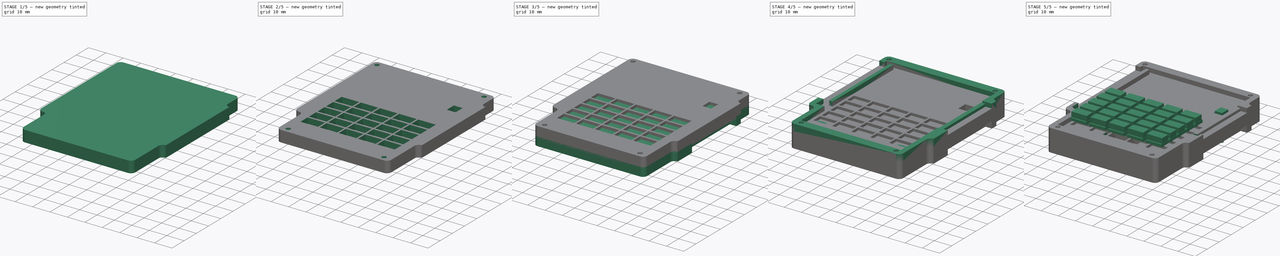
[diagram: build sequence overview — one tinted view per stage of 5, left to right]
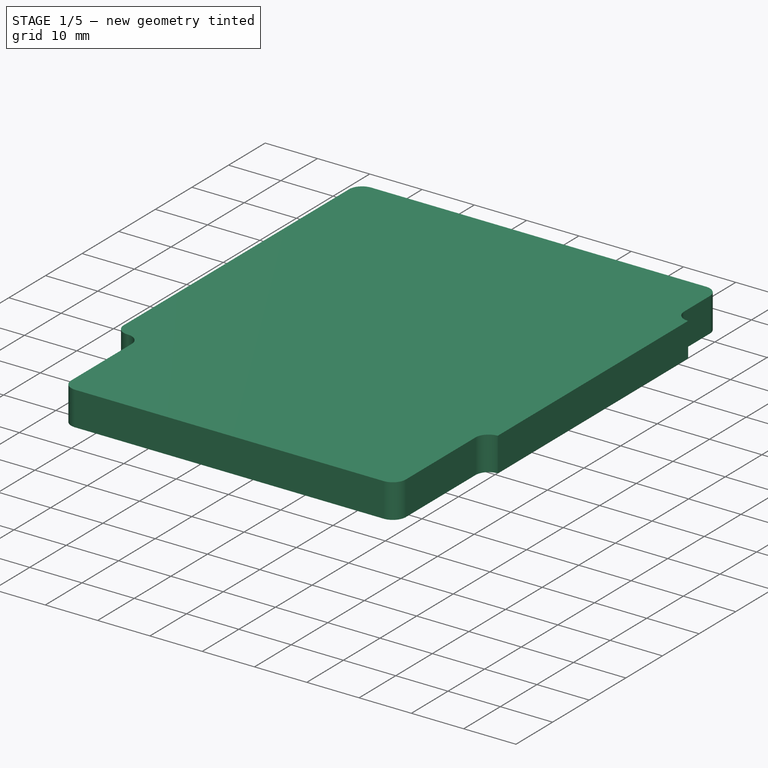
[diagram: stage 1 of 5 — iso view after this stage's code; geometry added in this stage tinted green]
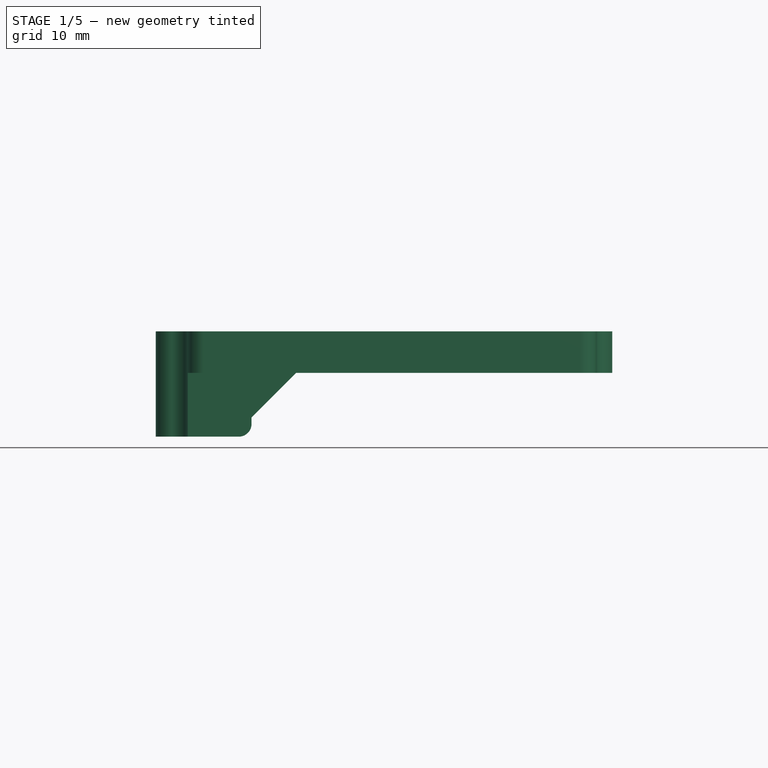
[diagram: stage 1 of 5 — front view after this stage's code; geometry added in this stage tinted green]
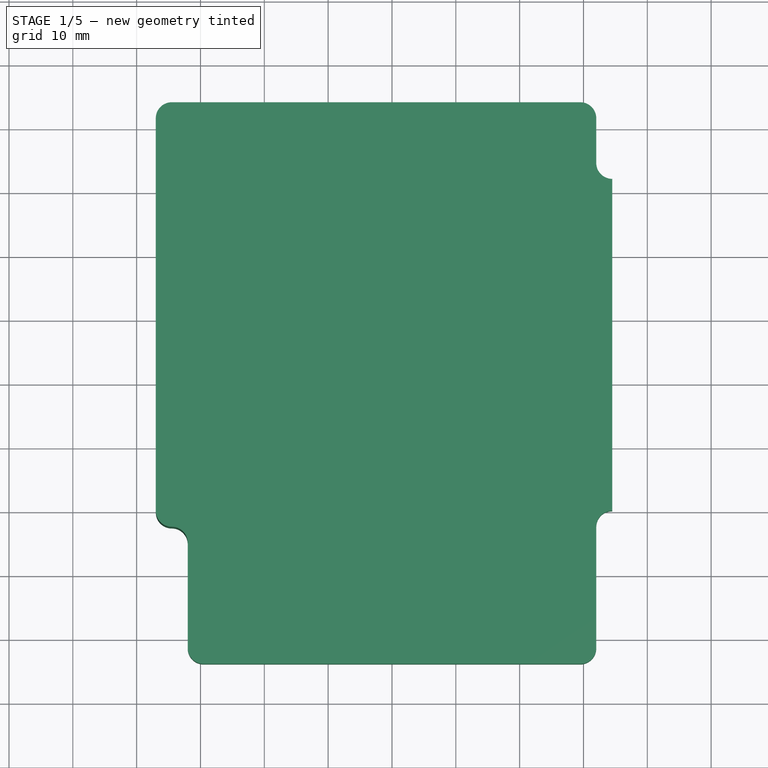
[diagram: stage 1 of 5 — top view after this stage's code; geometry added in this stage tinted green]
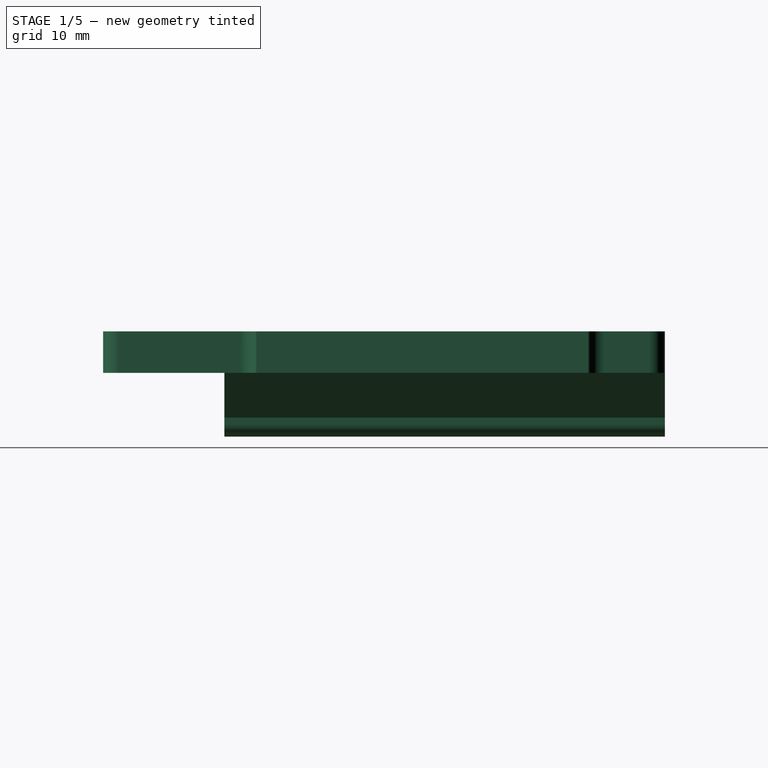
[diagram: stage 1 of 5 — right view after this stage's code; geometry added in this stage tinted green]
FCSTD DOCUMENT  (FreeCAD 1.0R39109 (Git))
Label: RC1_main
License: All rights reserved
LicenseURL: http://en.wikipedia.org/wiki/All_rights_reserved
objects: Part::Feature×256, Sketcher::SketchObject×48, PartDesign::Pocket×26, PartDesign::Pad×21, PartDesign::Body×7, App::Part×4, PartDesign::LinearPattern×2, Spreadsheet::Sheet×1, PartDesign::MultiTransform×1, Part::FeaturePython×1, PartDesign::Chamfer×1, PartDesign::Fillet×1
note: 512 computed .brp shape members not serialized (recipe doc carries the construction recipe); baked Part::Feature solids carry a one-line shape summary decoded from their .brp

FEATURE [Sketcher::SketchObject] Sketch026  label="main shape cc"
  ArcFitTolerance = 1e-06
  AttachmentSupport = -> [XY_Plane014]
  FullyConstrained = true
  MakeInternals = false
  MapMode = 5
  expr: Constraints[14] = Sketch.Constraints[14]
  expr: Constraints[15] = Sketch.Constraints[15]
  expr: Constraints[16] = Sketch.Constraints[16]
  expr: Constraints[17] = Sketch.Constraints[17]
  expr: Constraints[18] = Sketch.Constraints[18]
  expr: Constraints[24] = Sketch.Constraints[24]
  expr: Constraints[33] = Sketch.Constraints[33]
  expr: Constraints[40] = Sketch.Constraints[40]
  expr: Constraints[47] = Sketch.Constraints[47]
  sketch-geometry (19):
    g0: LineSegment [constr] StartX=-32 StartY=24 StartZ=0 EndX=-32 EndY=-61.5 EndZ=0
    g1: LineSegment StartX=-29.5 StartY=-64 StartZ=0 EndX=29.5 EndY=-64 EndZ=0
    g2: LineSegment [constr] StartX=32 StartY=-61.5 StartZ=0 EndX=32 EndY=21.5 EndZ=0
    g3: LineSegment StartX=29.5 StartY=24 StartZ=0 EndX=-34.5 EndY=24 EndZ=0
    g4: ArcOfCircle CenterX=-29.5 CenterY=-61.5 CenterZ=0 NormalX=0 NormalY=0 NormalZ=1 AngleXU=0 Radius=2.5 StartAngle=3.14159 EndAngle=4.71239
    g5: ArcOfCircle CenterX=29.5 CenterY=-61.5 CenterZ=0 NormalX=0 NormalY=0 NormalZ=1 AngleXU=0 Radius=2.5 StartAngle=4.71239 EndAngle=6.28319
    g6: ArcOfCircle CenterX=29.5 CenterY=21.5 CenterZ=0 NormalX=0 NormalY=0 NormalZ=1 AngleXU=0 Radius=2.5 StartAngle=0 EndAngle=1.5708
    g7: GeomPoint [constr] X=-32 Y=24 Z=0
    g8: GeomPoint [constr] X=32 Y=-64 Z=0
    g9: LineSegment StartX=-37 StartY=21.5 StartZ=0 EndX=-37 EndY=-40 EndZ=0
    g10: ArcOfCircle CenterX=-34.5 CenterY=-40 CenterZ=0 NormalX=0 NormalY=0 NormalZ=1 AngleXU=0 Radius=2.5 StartAngle=3.14159 EndAngle=4.71239
    g11: ArcOfCircle CenterX=-34.5 CenterY=-45 CenterZ=0 NormalX=0 NormalY=0 NormalZ=1 AngleXU=0 Radius=2.5 StartAngle=0 EndAngle=1.5708
    g12: LineSegment StartX=-32 StartY=-45 StartZ=0 EndX=-32 EndY=-61.5 EndZ=0
    g13: ArcOfCircle CenterX=-34.5 CenterY=21.5 CenterZ=0 NormalX=0 NormalY=0 NormalZ=1 AngleXU=0 Radius=2.5 StartAngle=1.5708 EndAngle=3.14159
    g14: LineSegment StartX=32 StartY=21.5 StartZ=0 EndX=32 EndY=14.5 EndZ=0
    g15: ArcOfCircle CenterX=34.5 CenterY=14.5 CenterZ=0 NormalX=0 NormalY=0 NormalZ=1 AngleXU=0 Radius=2.5 StartAngle=3.14159 EndAngle=4.71239
    g16: LineSegment StartX=34.5 StartY=12 StartZ=0 EndX=34.5 EndY=-40 EndZ=0
    g17: ArcOfCircle CenterX=34.5 CenterY=-42.5 CenterZ=0 NormalX=0 NormalY=0 NormalZ=1 AngleXU=0 Radius=2.5 StartAngle=1.5708 EndAngle=3.14159
    g18: LineSegment StartX=32 StartY=-42.5 StartZ=0 EndX=32 EndY=-61.5 EndZ=0
  constraints (48):
    c: Tangent(g0,g4) = -1.5708
    c: Tangent(g1,g4) = -1.5708
    c: Tangent(g1,g5) = -1.5708
    c: Tangent(g2,g5) = -1.5708
    c: Tangent(g2,g6) = -1.5708
    c: Tangent(g3,g6) = -1.5708
    c: Vertical(g0)
    c: Vertical(g2)
    c: Horizontal(g1)
    c: Horizontal(g3)
    c: Equal(g5,g6)
    c: PointOnObject(g7,g3)
    c: PointOnObject(g8,g1)
    c: PointOnObject(g8,g2)
    c: Radius(g6) = 2.5
    c: DistanceY(g1,g-1) = 64
    c: DistanceX(g0,g-1) = 32
    c: DistanceX(g-1,g2) = 32
    c: DistanceY(g-1,g3) = 24
    c: Vertical(g9)
    c: Tangent(g11,g0) = 1.5708
    c: Tangent(g11,g10) = 1.5708
    c: Tangent(g10,g9) = -1.5708
    c: Equal(g10,g11)
    c: DistanceY(g1,g9) = 24
    c: Coincident(g12,g11)
    c: Coincident(g12,g0)
    c: Equal(g6,g13)
    c: Tangent(g13,g3) = -1.5708
    c: Tangent(g9,g13) = -1.5708
    c: Vertical(g10,g10)
    c: Equal(g4,g5)
    c: Coincident(g0,g7)
    c: DistanceX(g9,g0) = 5
    c: Coincident(g14,g2)
    c: PointOnObject(g14,g2)
    c: Tangent(g15,g14) = -1.5708
    c: Vertical(g16)
    c: Tangent(g17,g2) = 1.5708
    c: Vertical(g17,g17)
    c: DistanceY(g16,g3) = 12
    c: Coincident(g18,g17)
    c: Coincident(g18,g2)
    c: Coincident(g16,g15)
    c: Coincident(g16,g17)
    c: Equal(g15,g6)
    c: Perpendicular(g15,g16)
    c: DistanceY(g16,g16) = 52
FEATURE [PartDesign::Pad] Pad014  label="main001"
  Direction = (0,0,1)
  Length = 3.5
  Length2 = 10
  Profile = -> Sketch026
  ReferenceAxis = -> Sketch026 [N_Axis]
  Suppressed = false
  Type = 0
FEATURE [PartDesign::Body] Body003  label="top cover"
  AllowCompound = false
  Group = -> [Sketch026,Pad014,Sketch027,Pocket012,Sketch028,Pocket013,Sketch030,Pocket015,MultiTransform,LinearPattern,LinearPattern001,Sketch029,Pocket014,Sketch031,Pocket018,Sketch034,Pocket019,Sketch043,Pocket022]
  Origin = -> Origin014
  Placement = pos=(0,0,6) rot=(0,0,1;0rad)
  Tip = -> Pocket022
FEATURE [Sketcher::SketchObject] Sketch044
  ArcFitTolerance = 1e-06
  AttachmentSupport = -> [XY_Plane017]
  FullyConstrained = true
  MakeInternals = false
  MapMode = 5
  expr: Constraints[14] = Sketch.Constraints[14]
  expr: Constraints[15] = Sketch.Constraints[15]
  expr: Constraints[16] = Sketch.Constraints[16]
  expr: Constraints[17] = Sketch.Constraints[17]
  expr: Constraints[18] = Sketch.Constraints[18]
  expr: Constraints[24] = Sketch.Constraints[24]
  expr: Constraints[33] = Sketch.Constraints[33]
  expr: Constraints[40] = Sketch.Constraints[40]
  expr: Constraints[47] = Sketch.Constraints[47]
  sketch-geometry (19):
    g0: LineSegment [constr] StartX=-32 StartY=24 StartZ=0 EndX=-32 EndY=-61.5 EndZ=0
    g1: LineSegment StartX=-29.5 StartY=-64 StartZ=0 EndX=29.5 EndY=-64 EndZ=0
    g2: LineSegment [constr] StartX=32 StartY=-61.5 StartZ=0 EndX=32 EndY=21.5 EndZ=0
    g3: LineSegment StartX=29.5 StartY=24 StartZ=0 EndX=-34.5 EndY=24 EndZ=0
    g4: ArcOfCircle CenterX=-29.5 CenterY=-61.5 CenterZ=0 NormalX=0 NormalY=0 NormalZ=1 AngleXU=0 Radius=2.5 StartAngle=3.14159 EndAngle=4.71239
    g5: ArcOfCircle CenterX=29.5 CenterY=-61.5 CenterZ=0 NormalX=0 NormalY=0 NormalZ=1 AngleXU=0 Radius=2.5 StartAngle=4.71239 EndAngle=6.28319
    g6: ArcOfCircle CenterX=29.5 CenterY=21.5 CenterZ=0 NormalX=0 NormalY=0 NormalZ=1 AngleXU=0 Radius=2.5 StartAngle=0 EndAngle=1.5708
    g7: GeomPoint [constr] X=-32 Y=24 Z=0
    g8: GeomPoint [constr] X=32 Y=-64 Z=0
    g9: LineSegment StartX=-37 StartY=21.5 StartZ=0 EndX=-37 EndY=-40 EndZ=0
    g10: ArcOfCircle CenterX=-34.5 CenterY=-40 CenterZ=0 NormalX=0 NormalY=0 NormalZ=1 AngleXU=0 Radius=2.5 StartAngle=3.14159 EndAngle=4.71239
    g11: ArcOfCircle CenterX=-34.5 CenterY=-45 CenterZ=0 NormalX=0 NormalY=0 NormalZ=1 AngleXU=0 Radius=2.5 StartAngle=0 EndAngle=1.5708
    g12: LineSegment StartX=-32 StartY=-45 StartZ=0 EndX=-32 EndY=-61.5 EndZ=0
    g13: ArcOfCircle CenterX=-34.5 CenterY=21.5 CenterZ=0 NormalX=0 NormalY=0 NormalZ=1 AngleXU=0 Radius=2.5 StartAngle=1.5708 EndAngle=3.14159
    g14: LineSegment StartX=32 StartY=21.5 StartZ=0 EndX=32 EndY=14.5 EndZ=0
    g15: ArcOfCircle CenterX=34.5 CenterY=14.5 CenterZ=0 NormalX=0 NormalY=0 NormalZ=1 AngleXU=0 Radius=2.5 StartAngle=3.14159 EndAngle=4.71239
    g16: LineSegment StartX=34.5 StartY=12 StartZ=0 EndX=34.5 EndY=-40 EndZ=0
    g17: ArcOfCircle CenterX=34.5 CenterY=-42.5 CenterZ=0 NormalX=0 NormalY=0 NormalZ=1 AngleXU=0 Radius=2.5 StartAngle=1.5708 EndAngle=3.14159
    g18: LineSegment StartX=32 StartY=-42.5 StartZ=0 EndX=32 EndY=-61.5 EndZ=0
  constraints (48):
    c: Tangent(g0,g4) = -1.5708
    c: Tangent(g1,g4) = -1.5708
    c: Tangent(g1,g5) = -1.5708
    c: Tangent(g2,g5) = -1.5708
    c: Tangent(g2,g6) = -1.5708
    c: Tangent(g3,g6) = -1.5708
    c: Vertical(g0)
    c: Vertical(g2)
    c: Horizontal(g1)
    c: Horizontal(g3)
    c: Equal(g5,g6)
    c: PointOnObject(g7,g3)
    c: PointOnObject(g8,g1)
    c: PointOnObject(g8,g2)
    c: Radius(g6) = 2.5
    c: DistanceY(g1,g-1) = 64
    c: DistanceX(g0,g-1) = 32
    c: DistanceX(g-1,g2) = 32
    c: DistanceY(g-1,g3) = 24
    c: Vertical(g9)
    c: Tangent(g11,g0) = 1.5708
    c: Tangent(g11,g10) = 1.5708
    c: Tangent(g10,g9) = -1.5708
    c: Equal(g10,g11)
    c: DistanceY(g1,g9) = 24
    c: Coincident(g12,g11)
    c: Coincident(g12,g0)
    c: Equal(g6,g13)
    c: Tangent(g13,g3) = -1.5708
    c: Tangent(g9,g13) = -1.5708
    c: Vertical(g10,g10)
    c: Equal(g4,g5)
    c: Coincident(g0,g7)
    c: DistanceX(g9,g0) = 5
    c: Coincident(g14,g2)
    c: PointOnObject(g14,g2)
    c: Tangent(g15,g14) = -1.5708
    c: Vertical(g16)
    c: Tangent(g17,g2) = 1.5708
    c: Vertical(g17,g17)
    c: DistanceY(g16,g3) = 12
    c: Coincident(g18,g17)
    c: Coincident(g18,g2)
    c: Coincident(g16,g15)
    c: Coincident(g16,g17)
    c: Equal(g15,g6)
    c: Perpendicular(g15,g16)
    c: DistanceY(g16,g16) = 52
FEATURE [PartDesign::Pad] Pad021  label="main004"
  Direction = (0,0,1)
  Length = 3
  Length2 = 10
  Profile = -> Sketch044
  ReferenceAxis = -> Sketch044 [N_Axis]
  Reversed = true
  Suppressed = false
  Type = 0
FEATURE [Sketcher::SketchObject] Sketch045
  ArcFitTolerance = 1e-06
  AttachmentSupport = -> [XY_Plane017]
  FullyConstrained = true
  MakeInternals = false
  MapMode = 5
  expr: Constraints[10] = Sketch024.Constraints[10]
  expr: Constraints[11] = Sketch024.Constraints[11]
  expr: Constraints[2] = Sketch024.Constraints[2]
  expr: Constraints[7] = Sketch024.Constraints[7]
  expr: Constraints[8] = Sketch024.Constraints[8]
  expr: Constraints[9] = Sketch024.Constraints[9]
  sketch-geometry (4):
    g0: Circle CenterX=-34 CenterY=21 CenterZ=0 NormalX=0 NormalY=0 NormalZ=1 AngleXU=0 Radius=1.25
    g1: Circle CenterX=27.5 CenterY=21 CenterZ=0 NormalX=0 NormalY=0 NormalZ=1 AngleXU=0 Radius=1.25
    g2: Circle CenterX=27.5 CenterY=-61 CenterZ=0 NormalX=0 NormalY=0 NormalZ=1 AngleXU=0 Radius=1.25
    g3: Circle CenterX=-27.5 CenterY=-61 CenterZ=0 NormalX=0 NormalY=0 NormalZ=1 AngleXU=0 Radius=1.25
  constraints (12):
    c: Horizontal(g2,g3)
    c: Vertical(g1,g2)
    c: Diameter(g0) = 2.5
    c: Equal(g0,g1)
    c: Equal(g1,g2)
    c: Equal(g2,g3)
    c: Horizontal(g0,g1)
    c: DistanceX(g-1,g1) = 27.5
    c: DistanceY(g-1,g1) = 21
    c: DistanceX(g0,g-1) = 34
    c: DistanceY(g2,g-1) = 61
    c: DistanceX(g3,g-1) = 27.5
FEATURE [PartDesign::Pocket] Pocket023  label="main screw holes"
  BaseFeature = -> Pad021
  Direction = (0,0,-1)
  Length = 5
  Length2 = 5
  Midplane = true
  Profile = -> Sketch045
  ReferenceAxis = -> Sketch045 [N_Axis]
  Suppressed = false
  Type = 1
FEATURE [Sketcher::SketchObject] Sketch046
  ArcFitTolerance = 1e-06
  AttachmentSupport = -> [Pocket023]
  FullyConstrained = true
  MakeInternals = false
  MapMode = 5
  Placement = pos=(0,0,-3) rot=(1,0,0;3.14159rad)
  expr: Constraints[76] = Sketch024.Constraints[9]
  expr: Constraints[77] = Sketch024.Constraints[8]
  expr: Constraints[79] = Sketch024.Constraints[7]
  expr: Constraints[80] = Sketch024.Constraints[10]
  expr: Constraints[83] = Sketch024.Constraints[7]
  sketch-geometry (28):
    g0: LineSegment StartX=-25.1329 StartY=61 StartZ=0 EndX=-26.3164 EndY=63.05 EndZ=0
    g1: LineSegment StartX=-26.3164 StartY=63.05 StartZ=0 EndX=-28.6836 EndY=63.05 EndZ=0
    g2: LineSegment StartX=-28.6836 StartY=63.05 StartZ=0 EndX=-29.8671 EndY=61 EndZ=0
    g3: LineSegment StartX=-29.8671 StartY=61 StartZ=0 EndX=-28.6836 EndY=58.95 EndZ=0
    g4: LineSegment StartX=-28.6836 StartY=58.95 StartZ=0 EndX=-26.3164 EndY=58.95 EndZ=0
    g5: LineSegment StartX=-26.3164 StartY=58.95 StartZ=0 EndX=-25.1329 EndY=61 EndZ=0
    g6: Circle [constr] CenterX=-27.5 CenterY=61 CenterZ=0 NormalX=0 NormalY=0 NormalZ=1 AngleXU=0 Radius=2.36714
    g7: LineSegment StartX=29.8671 StartY=61 StartZ=0 EndX=28.6836 EndY=63.05 EndZ=0
    g8: LineSegment StartX=28.6836 StartY=63.05 StartZ=0 EndX=26.3164 EndY=63.05 EndZ=0
    g9: LineSegment StartX=26.3164 StartY=63.05 StartZ=0 EndX=25.1329 EndY=61 EndZ=0
    g10: LineSegment StartX=25.1329 StartY=61 StartZ=0 EndX=26.3164 EndY=58.95 EndZ=0
    g11: LineSegment StartX=26.3164 StartY=58.95 StartZ=0 EndX=28.6836 EndY=58.95 EndZ=0
    g12: LineSegment StartX=28.6836 StartY=58.95 StartZ=0 EndX=29.8671 EndY=61 EndZ=0
    g13: Circle [constr] CenterX=27.5 CenterY=61 CenterZ=0 NormalX=0 NormalY=0 NormalZ=1 AngleXU=0 Radius=2.36714
    g14: LineSegment StartX=-31.6329 StartY=-21 StartZ=0 EndX=-32.8164 EndY=-18.95 EndZ=0
    g15: LineSegment StartX=-32.8164 StartY=-18.95 StartZ=0 EndX=-35.1836 EndY=-18.95 EndZ=0
    g16: LineSegment StartX=-35.1836 StartY=-18.95 StartZ=0 EndX=-36.3671 EndY=-21 EndZ=0
    g17: LineSegment StartX=-36.3671 StartY=-21 StartZ=0 EndX=-35.1836 EndY=-23.05 EndZ=0
    g18: LineSegment StartX=-35.1836 StartY=-23.05 StartZ=0 EndX=-32.8164 EndY=-23.05 EndZ=0
    g19: LineSegment StartX=-32.8164 StartY=-23.05 StartZ=0 EndX=-31.6329 EndY=-21 EndZ=0
    g20: Circle [constr] CenterX=-34 CenterY=-21 CenterZ=0 NormalX=0 NormalY=0 NormalZ=1 AngleXU=0 Radius=2.36714
    g21: LineSegment StartX=29.8671 StartY=-21 StartZ=0 EndX=28.6836 EndY=-18.95 EndZ=0
    g22: LineSegment StartX=28.6836 StartY=-18.95 StartZ=0 EndX=26.3164 EndY=-18.95 EndZ=0
    g23: LineSegment StartX=26.3164 StartY=-18.95 StartZ=0 EndX=25.1329 EndY=-21 EndZ=0
    g24: LineSegment StartX=25.1329 StartY=-21 StartZ=0 EndX=26.3164 EndY=-23.05 EndZ=0
    g25: LineSegment StartX=26.3164 StartY=-23.05 StartZ=0 EndX=28.6836 EndY=-23.05 EndZ=0
    g26: LineSegment StartX=28.6836 StartY=-23.05 StartZ=0 EndX=29.8671 EndY=-21 EndZ=0
    g27: Circle [constr] CenterX=27.5 CenterY=-21 CenterZ=0 NormalX=0 NormalY=0 NormalZ=1 AngleXU=0 Radius=2.36714
  constraints (68):
    c: Coincident(g0,g1)
    c: Coincident(g1,g2)
    c: Coincident(g2,g3)
    c: Coincident(g3,g4)
    c: Coincident(g4,g5)
    c: Coincident(g5,g0)
    c: Equal(g0, g1-g5) x5
    c: PointOnObject(g0,g6)
    c: PointOnObject(g1,g6)
    c: PointOnObject(g2,g6)
    c: PointOnObject(g3,g6)
    c: PointOnObject(g4,g6)
    c: PointOnObject(g5,g6)
    c: Coincident(g7,g8)
    c: Coincident(g8,g9)
    c: Coincident(g9,g10)
    c: Coincident(g10,g11)
    c: Coincident(g11,g12)
    c: Coincident(g12,g7)
    c: Equal(g7, g8-g12) x5
    c: PointOnObject(g7,g13)
    c: PointOnObject(g8,g13)
    c: PointOnObject(g9,g13)
    c: PointOnObject(g10,g13)
    c: PointOnObject(g11,g13)
    c: PointOnObject(g12,g13)
    c: Coincident(g14,g15)
    c: Coincident(g15,g16)
    c: Coincident(g16,g17)
    c: Coincident(g17,g18)
    c: Coincident(g18,g19)
    c: Coincident(g19,g14)
    c: Equal(g14, g15-g19) x5
    c: PointOnObject(g14,g20)
    c: PointOnObject(g15,g20)
    c: PointOnObject(g16,g20)
    c: PointOnObject(g17,g20)
    c: PointOnObject(g18,g20)
    c: PointOnObject(g19,g20)
    c: Coincident(g21,g22)
    c: Coincident(g22,g23)
    c: Coincident(g23,g24)
    c: Coincident(g24,g25)
    c: Coincident(g25,g26)
    c: Coincident(g26,g21)
    c: Equal(g21, g22-g26) x5
    c: PointOnObject(g21,g27)
    c: PointOnObject(g22,g27)
    c: PointOnObject(g23,g27)
    c: PointOnObject(g24,g27)
    c: PointOnObject(g25,g27)
    c: PointOnObject(g26,g27)
    c: Horizontal(g1)
    c: Horizontal(g8)
    c: Horizontal(g22)
    c: Horizontal(g15)
    c: DistanceY(g3,g1) = 4.1
    c: Equal(g1,g8)
    c: Equal(g1,g15)
    c: Equal(g1,g22)
    c: DistanceX(g20,g-1) = 34
    c: DistanceY(g20,g-1) = 21
    c: Horizontal(g20,g27)
    c: DistanceX(g-1,g27) = 27.5
    c: DistanceY(g-1,g6) = 61
    c: Horizontal(g6,g13)
    c: Vertical(g13,g27)
    c: DistanceX(g6,g-1) = 27.5
FEATURE [PartDesign::Pocket] Pocket024  label="nuts pockets001"
  BaseFeature = -> Pocket023
  Direction = (0,0,1)
  Length = 1.8
  Length2 = 5
  Profile = -> Sketch046
  ReferenceAxis = -> Sketch046 [N_Axis]
  Suppressed = false
  Type = 0
FEATURE [Sketcher::SketchObject] Sketch047
  ArcFitTolerance = 1e-06
  AttachmentSupport = -> [Pocket024]
  ExternalGeometry = -> [Pocket024]
  FullyConstrained = true
  MakeInternals = false
  MapMode = 5
  Placement = pos=(0,0,-3) rot=(1,0,0;3.14159rad)
  sketch-geometry (8):
    g0: ArcOfCircle CenterX=-34.5 CenterY=40 CenterZ=0 NormalX=0 NormalY=0 NormalZ=1 AngleXU=0 Radius=2.5 StartAngle=1.5708 EndAngle=3.14159
    g1: ArcOfCircle CenterX=-34.5 CenterY=45 CenterZ=0 NormalX=0 NormalY=0 NormalZ=1 AngleXU=0 Radius=2.5 StartAngle=4.71239 EndAngle=6.28319
    g2: LineSegment StartX=-32 StartY=45 StartZ=0 EndX=-22 EndY=45 EndZ=0
    g3: LineSegment StartX=-22 StartY=45 StartZ=0 EndX=-22 EndY=-24 EndZ=0
    g4: LineSegment StartX=-37 StartY=40 StartZ=0 EndX=-37 EndY=-18.5 EndZ=0
    g5: LineSegment StartX=-37 StartY=-18.5 StartZ=0 EndX=-29 EndY=-18.5 EndZ=0
    g6: LineSegment StartX=-29 StartY=-18.5 StartZ=0 EndX=-29 EndY=-24 EndZ=0
    g7: LineSegment StartX=-29 StartY=-24 StartZ=0 EndX=-22 EndY=-24 EndZ=0
  constraints (22):
    c: Equal(g1,g0)
    c: Coincident(g0,g-3) = -1.5708
    c: Coincident(g1,g-4) = 1.5708
    c: Tangent(g1,g0) = 1.5708
    c: Coincident(g2,g1)
    c: Horizontal(g2)
    c: Coincident(g3,g2)
    c: Vertical(g3)
    c: DistanceX(g2,g2) = 10
    c: Perpendicular(g1,g2)
    c: Tangent(g4,g0) = -1.5708
    c: PointOnObject(g4,g-3)
    c: Coincident(g5,g4)
    c: Horizontal(g5)
    c: Coincident(g6,g5)
    c: PointOnObject(g6,g-5)
    c: Vertical(g6)
    c: Coincident(g7,g6)
    c: Coincident(g7,g3)
    c: Horizontal(g7)
    c: DistanceY(g6,g6) = 5.5
    c: DistanceX(g5,g5) = 8
FEATURE [PartDesign::Pad] Pad022  label="mouse pad"
  BaseFeature = -> Pocket024
  Direction = (0,0,-1)
  Length = 10
  Length2 = 10
  Profile = -> Sketch047
  ReferenceAxis = -> Sketch047 [N_Axis]
  Suppressed = false
  Type = 0
FEATURE [Sketcher::SketchObject] Sketch048
  ArcFitTolerance = 1e-06
  AttachmentSupport = -> [XY_Plane017]
  FullyConstrained = true
  MakeInternals = false
  MapMode = 5
  expr: Constraints[10] = Sketch012.Constraints[9]
  expr: Constraints[11] = Sketch.Constraints[16] + Sketch.Constraints[33]
  expr: Constraints[9] = Sketch012.Constraints[8]
  sketch-geometry (4):
    g0: LineSegment StartX=-37 StartY=17.2 StartZ=0 EndX=-37 EndY=-33.2 EndZ=0
    g1: LineSegment StartX=-37 StartY=-33.2 StartZ=0 EndX=-28.4 EndY=-33.2 EndZ=0
    g2: LineSegment StartX=-28.4 StartY=-33.2 StartZ=0 EndX=-28.4 EndY=17.2 EndZ=0
    g3: LineSegment StartX=-28.4 StartY=17.2 StartZ=0 EndX=-37 EndY=17.2 EndZ=0
  constraints (12):
    c: Coincident(g0,g1)
    c: Coincident(g1,g2)
    c: Coincident(g2,g3)
    c: Coincident(g3,g0)
    c: Vertical(g0)
    c: Vertical(g2)
    c: Horizontal(g1)
    c: Horizontal(g3)
    c: DistanceX(g1,g-1) = 28.4
    c: DistanceY(g0,g0) = 50.4
    c: DistanceY(g1,g-1) = 33.2
    c: DistanceX(g0,g-1) = 37
FEATURE [PartDesign::Pocket] Pocket025  label="mouse pocket"
  BaseFeature = -> Pad022
  Direction = (0,0,-1)
  Length = 10
  Length2 = 5
  Profile = -> Sketch048
  ReferenceAxis = -> Sketch048 [N_Axis]
  Suppressed = false
  Type = 0
FEATURE [Sketcher::SketchObject] Sketch049
  ArcFitTolerance = 1e-06
  AttachmentSupport = -> [Pocket025]
  FullyConstrained = true
  MakeInternals = false
  MapMode = 5
  Placement = pos=(0,0,-10) rot=(0,0,1;0rad)
  expr: Constraints[10] = Sketch043.Constraints[10]
  expr: Constraints[11] = Sketch043.Constraints[11]
  expr: Constraints[8] = Sketch043.Constraints[8]
  expr: Constraints[9] = Sketch043.Constraints[9]
  sketch-geometry (4):
    g0: LineSegment StartX=-35.5 StartY=12.5 StartZ=0 EndX=-35.5 EndY=-27.5 EndZ=0
    g1: LineSegment StartX=-35.5 StartY=-27.5 StartZ=0 EndX=-33.5 EndY=-27.5 EndZ=0
    g2: LineSegment StartX=-33.5 StartY=-27.5 StartZ=0 EndX=-33.5 EndY=12.5 EndZ=0
    g3: LineSegment StartX=-33.5 StartY=12.5 StartZ=0 EndX=-35.5 EndY=12.5 EndZ=0
  constraints (12):
    c: Coincident(g0,g1)
    c: Coincident(g1,g2)
    c: Coincident(g2,g3)
    c: Coincident(g3,g0)
    c: Vertical(g0)
    c: Vertical(g2)
    c: Horizontal(g1)
    c: Horizontal(g3)
    c: DistanceX(g3,g3) = 2
    c: DistanceY(g0,g0) = 40
    c: DistanceX(g2,g-1) = 33.5
    c: DistanceY(g-1,g2) = 12.5
FEATURE [PartDesign::Pocket] Pocket026  label="mouse cover lock"
  BaseFeature = -> Pocket025
  Direction = (0,0,-1)
  Length = 2
  Length2 = 5
  Profile = -> Sketch049
  ReferenceAxis = -> Sketch049 [N_Axis]
  Suppressed = false
  Type = 0
FEATURE [Sketcher::SketchObject] Sketch050
  ArcFitTolerance = 1e-06
  AttachmentSupport = -> [XY_Plane017]
  FullyConstrained = true
  MakeInternals = false
  MapMode = 5
  expr: Constraints[10] = Sketch043.Constraints[22]
  expr: Constraints[11] = Sketch043.Constraints[23]
  expr: Constraints[8] = Sketch043.Constraints[20]
  expr: Constraints[9] = Sketch043.Constraints[21]
  sketch-geometry (4):
    g0: LineSegment StartX=32.1 StartY=0.7 StartZ=0 EndX=32.1 EndY=-10.5 EndZ=0
    g1: LineSegment StartX=32.1 StartY=-10.5 StartZ=0 EndX=33.3 EndY=-10.5 EndZ=0
    g2: LineSegment StartX=33.3 StartY=-10.5 StartZ=0 EndX=33.3 EndY=0.7 EndZ=0
    g3: LineSegment StartX=33.3 StartY=0.7 StartZ=0 EndX=32.1 EndY=0.7 EndZ=0
  constraints (12):
    c: Coincident(g0,g1)
    c: Coincident(g1,g2)
    c: Coincident(g2,g3)
    c: Coincident(g3,g0)
    c: Vertical(g0)
    c: Vertical(g2)
    c: Horizontal(g1)
    c: Horizontal(g3)
    c: DistanceX(g3,g3) = 1.2
    c: DistanceX(g-1,g0) = 32.1
    c: DistanceY(g2,g2) = 11.2
    c: DistanceY(g-1,g2) = 0.7
FEATURE [PartDesign::Pocket] Pocket027  label="thumb cover lock"
  BaseFeature = -> Pocket026
  Direction = (0,0,-1)
  Length = 2
  Length2 = 5
  Profile = -> Sketch050
  ReferenceAxis = -> Sketch050 [N_Axis]
  Suppressed = false
  Type = 0
FEATURE [PartDesign::Chamfer] Chamfer
  Angle = 45
  Base = -> Pocket027 [Edge36]
  BaseFeature = -> Pocket027
  ChamferType = 0
  FlipDirection = false
  Size = 7
  Size2 = 1
  SupportTransform = false
  Suppressed = false
  UseAllEdges = false
FEATURE [PartDesign::Fillet] Fillet
  Base = -> Chamfer [Edge131]
  BaseFeature = -> Chamfer
  Radius = 2
  SupportTransform = false
  Suppressed = false
  UseAllEdges = false
FEATURE [PartDesign::Body] Body006  label="bottom cover"
  AllowCompound = false
  Group = -> [Sketch044,Pad021,Sketch045,Pocket023,Sketch046,Pocket024,Sketch047,Pad022,Sketch048,Pocket025,Sketch049,Pocket026,Sketch050,Pocket027,Chamfer,Fillet]
  Origin = -> Origin017
  Placement = pos=(0,0,-7) rot=(0,0,1;0rad)
  Tip = -> Fillet
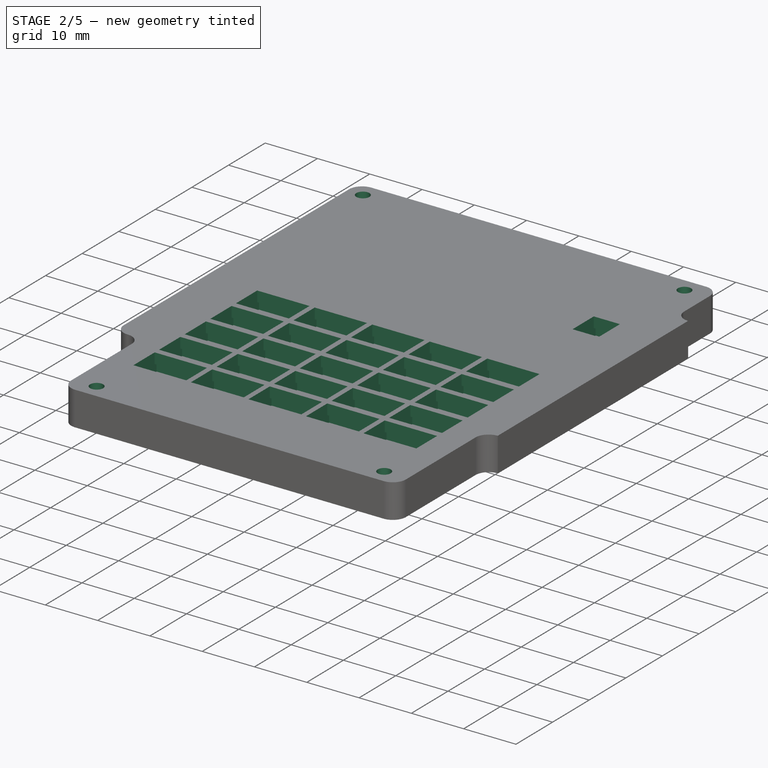
[diagram: stage 2 of 5 — iso view after this stage's code; geometry added in this stage tinted green]
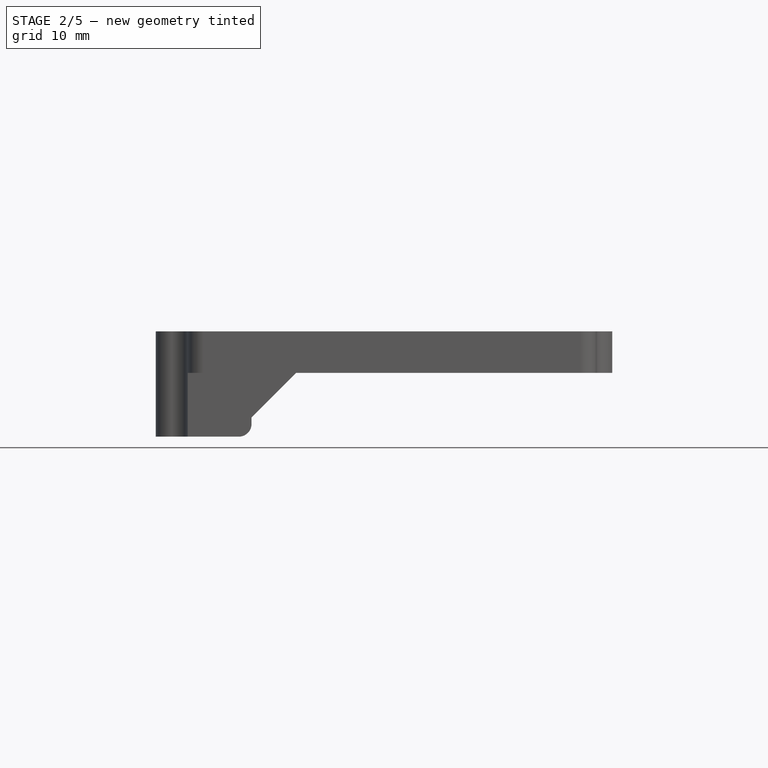
[diagram: stage 2 of 5 — front view after this stage's code; geometry added in this stage tinted green]
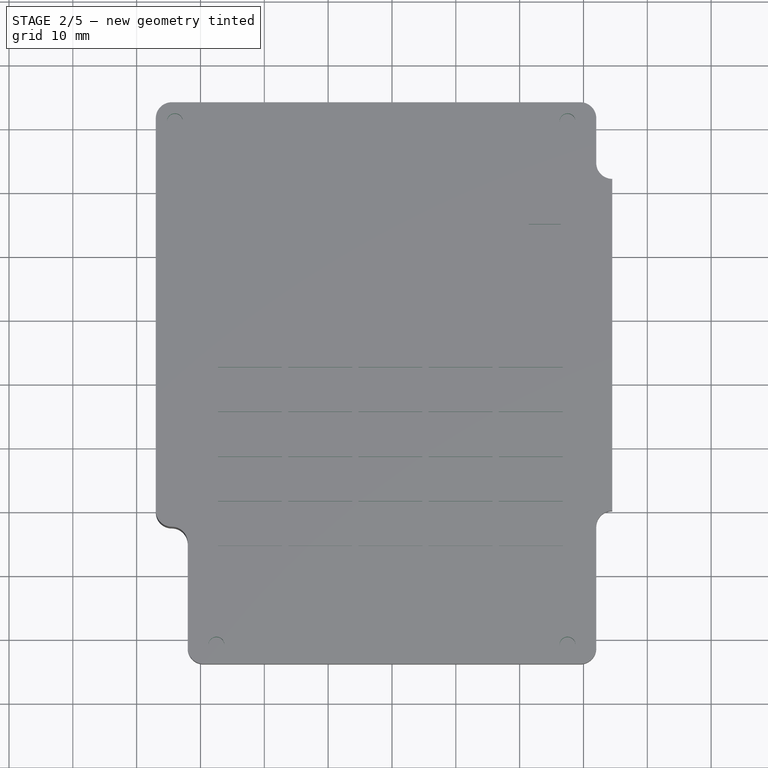
[diagram: stage 2 of 5 — top view after this stage's code; geometry added in this stage tinted green]
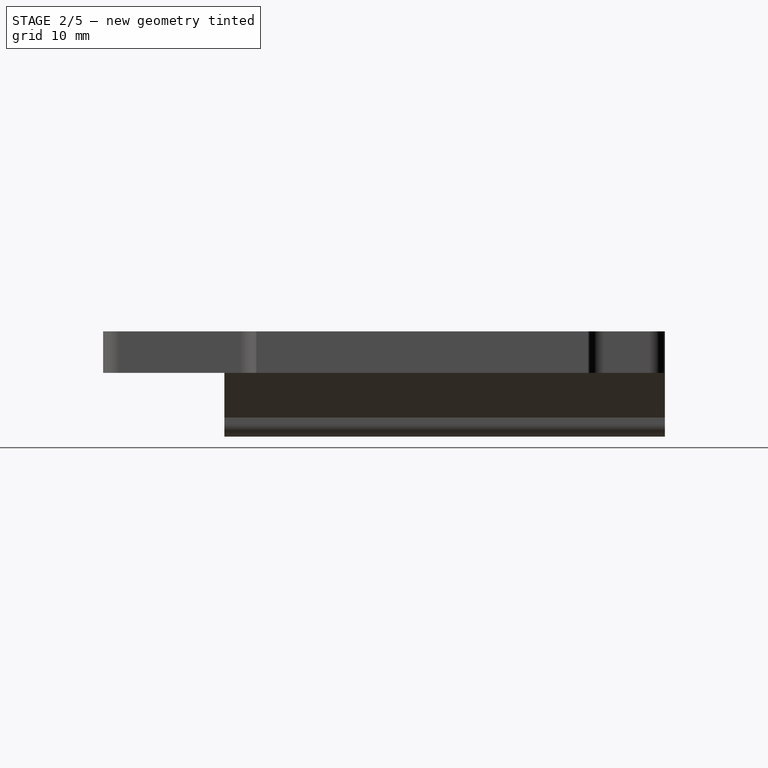
[diagram: stage 2 of 5 — right view after this stage's code; geometry added in this stage tinted green]
FEATURE [Sketcher::SketchObject] Sketch007
  ArcFitTolerance = 1e-06
  AttachmentSupport = -> [XY_Plane012]
  FullyConstrained = true
  MakeInternals = false
  MapMode = 5
  sketch-geometry (7):
    g0: LineSegment StartX=-21 StartY=18.3 StartZ=0 EndX=-21 EndY=5.3 EndZ=0
    g1: LineSegment StartX=28 StartY=-3.7 StartZ=0 EndX=28 EndY=18.3 EndZ=0
    g2: LineSegment StartX=28 StartY=18.3 StartZ=0 EndX=-21 EndY=18.3 EndZ=0
    g3: LineSegment StartX=28 StartY=-3.7 StartZ=0 EndX=21 EndY=-3.7 EndZ=0
    g4: LineSegment StartX=21 StartY=-3.7 StartZ=0 EndX=21 EndY=5.3 EndZ=0
    g5: LineSegment StartX=21 StartY=5.3 StartZ=0 EndX=-21 EndY=5.3 EndZ=0
    g6: GeomPoint X=-21 Y=11.8 Z=0
  constraints (19):
    c: Coincident(g1,g2)
    c: Coincident(g2,g0)
    c: Vertical(g0)
    c: Vertical(g1)
    c: Horizontal(g2)
    c: Coincident(g3,g1)
    c: Horizontal(g3)
    c: Coincident(g4,g3)
    c: Vertical(g4)
    c: Coincident(g5,g4)
    c: Coincident(g5,g0)
    c: Horizontal(g5)
    c: DistanceX(g-1,g1) = 28
    c: DistanceY(g0,g0) = 13
    c: Symmetric(g0,g0,g6)
    c: DistanceY(g-1,g6) = 11.8
    c: DistanceX(g0,g-1) = 21
    c: DistanceY(g1,g1) = 22
    c: DistanceX(g3,g3) = 7
FEATURE [Sketcher::SketchObject] Sketch008
  ArcFitTolerance = 1e-06
  AttachmentSupport = -> [XY_Plane012]
  FullyConstrained = true
  MakeInternals = false
  MapMode = 5
  sketch-geometry (3):
    g0: Circle CenterX=-18.25 CenterY=-26 CenterZ=0 NormalX=0 NormalY=0 NormalZ=1 AngleXU=0 Radius=1.25
    g1: Circle CenterX=12.75 CenterY=-21 CenterZ=0 NormalX=0 NormalY=0 NormalZ=1 AngleXU=0 Radius=1.25
    g2: Circle CenterX=18.25 CenterY=2.5027 CenterZ=0 NormalX=0 NormalY=0 NormalZ=1 AngleXU=0 Radius=1.25
  constraints (9):
    c: Diameter(g0) = 2.5
    c: DistanceX(g0,g-1) = 18.25
    c: DistanceY(g0,g-1) = 26
    c: Equal(g0,g1)
    c: Equal(g1,g2)
    c: DistanceX(g0,g1) = 31
    c: DistanceY(g0,g1) = 5
    c: DistanceX(g0,g2) = 36.5
    c: DistanceY(g1,g2) = 23.5027
FEATURE [Sketcher::SketchObject] Sketch009  label="distances sketch"
  ArcFitTolerance = 1e-06
  AttachmentSupport = -> [XY_Plane012]
  FullyConstrained = true
  MakeInternals = false
  MapMode = 5
  sketch-geometry (3):
    g0: Circle CenterX=-18.25 CenterY=-26 CenterZ=0 NormalX=0 NormalY=0 NormalZ=1 AngleXU=0 Radius=2.7
    g1: Circle CenterX=12.75 CenterY=-21 CenterZ=0 NormalX=0 NormalY=0 NormalZ=1 AngleXU=0 Radius=2.7
    g2: Circle CenterX=18.25 CenterY=2.5027 CenterZ=0 NormalX=0 NormalY=0 NormalZ=1 AngleXU=0 Radius=2.7
  constraints (9):
    c: Diameter(g0) = 5.4
    c: DistanceX(g0,g-1) = 18.25
    c: DistanceY(g0,g-1) = 26
    c: Equal(g0,g1)
    c: Equal(g1,g2)
    c: DistanceX(g0,g1) = 31
    c: DistanceY(g0,g1) = 5
    c: DistanceX(g0,g2) = 36.5
    c: DistanceY(g1,g2) = 23.5027
FEATURE [Sketcher::SketchObject] Sketch011  label="main shape cc001"
  ArcFitTolerance = 1e-06
  AttachmentSupport = -> [XY_Plane012]
  FullyConstrained = true
  MakeInternals = false
  MapMode = 5
  expr: Constraints[14] = Sketch.Constraints[14]
  expr: Constraints[15] = Sketch.Constraints[15]
  expr: Constraints[16] = Sketch.Constraints[16]
  expr: Constraints[17] = Sketch.Constraints[17]
  expr: Constraints[18] = Sketch.Constraints[18]
  expr: Constraints[24] = Sketch.Constraints[24]
  expr: Constraints[33] = Sketch.Constraints[33]
  expr: Constraints[40] = Sketch.Constraints[40]
  expr: Constraints[47] = Sketch.Constraints[47]
  sketch-geometry (19):
    g0: LineSegment [constr] StartX=-32 StartY=24 StartZ=0 EndX=-32 EndY=-61.5 EndZ=0
    g1: LineSegment StartX=-29.5 StartY=-64 StartZ=0 EndX=29.5 EndY=-64 EndZ=0
    g2: LineSegment [constr] StartX=32 StartY=-61.5 StartZ=0 EndX=32 EndY=21.5 EndZ=0
    g3: LineSegment StartX=29.5 StartY=24 StartZ=0 EndX=-34.5 EndY=24 EndZ=0
    g4: ArcOfCircle CenterX=-29.5 CenterY=-61.5 CenterZ=0 NormalX=0 NormalY=0 NormalZ=1 AngleXU=0 Radius=2.5 StartAngle=3.14159 EndAngle=4.71239
    g5: ArcOfCircle CenterX=29.5 CenterY=-61.5 CenterZ=0 NormalX=0 NormalY=0 NormalZ=1 AngleXU=0 Radius=2.5 StartAngle=4.71239 EndAngle=6.28319
    g6: ArcOfCircle CenterX=29.5 CenterY=21.5 CenterZ=0 NormalX=0 NormalY=0 NormalZ=1 AngleXU=0 Radius=2.5 StartAngle=0 EndAngle=1.5708
    g7: GeomPoint [constr] X=-32 Y=24 Z=0
    g8: GeomPoint [constr] X=32 Y=-64 Z=0
    g9: LineSegment StartX=-37 StartY=21.5 StartZ=0 EndX=-37 EndY=-40 EndZ=0
    g10: ArcOfCircle CenterX=-34.5 CenterY=-40 CenterZ=0 NormalX=0 NormalY=0 NormalZ=1 AngleXU=0 Radius=2.5 StartAngle=3.14159 EndAngle=4.71239
    g11: ArcOfCircle CenterX=-34.5 CenterY=-45 CenterZ=0 NormalX=0 NormalY=0 NormalZ=1 AngleXU=0 Radius=2.5 StartAngle=0 EndAngle=1.5708
    g12: LineSegment StartX=-32 StartY=-45 StartZ=0 EndX=-32 EndY=-61.5 EndZ=0
    g13: ArcOfCircle CenterX=-34.5 CenterY=21.5 CenterZ=0 NormalX=0 NormalY=0 NormalZ=1 AngleXU=0 Radius=2.5 StartAngle=1.5708 EndAngle=3.14159
    g14: LineSegment StartX=32 StartY=21.5 StartZ=0 EndX=32 EndY=14.5 EndZ=0
    g15: ArcOfCircle CenterX=34.5 CenterY=14.5 CenterZ=0 NormalX=0 NormalY=0 NormalZ=1 AngleXU=0 Radius=2.5 StartAngle=3.14159 EndAngle=4.71239
    g16: LineSegment StartX=34.5 StartY=12 StartZ=0 EndX=34.5 EndY=-40 EndZ=0
    g17: ArcOfCircle CenterX=34.5 CenterY=-42.5 CenterZ=0 NormalX=0 NormalY=0 NormalZ=1 AngleXU=0 Radius=2.5 StartAngle=1.5708 EndAngle=3.14159
    g18: LineSegment StartX=32 StartY=-42.5 StartZ=0 EndX=32 EndY=-61.5 EndZ=0
  constraints (48):
    c: Tangent(g0,g4) = -1.5708
    c: Tangent(g1,g4) = -1.5708
    c: Tangent(g1,g5) = -1.5708
    c: Tangent(g2,g5) = -1.5708
    c: Tangent(g2,g6) = -1.5708
    c: Tangent(g3,g6) = -1.5708
    c: Vertical(g0)
    c: Vertical(g2)
    c: Horizontal(g1)
    c: Horizontal(g3)
    c: Equal(g5,g6)
    c: PointOnObject(g7,g3)
    c: PointOnObject(g8,g1)
    c: PointOnObject(g8,g2)
    c: Radius(g6) = 2.5
    c: DistanceY(g1,g-1) = 64
    c: DistanceX(g0,g-1) = 32
    c: DistanceX(g-1,g2) = 32
    c: DistanceY(g-1,g3) = 24
    c: Vertical(g9)
    c: Tangent(g11,g0) = 1.5708
    c: Tangent(g11,g10) = 1.5708
    c: Tangent(g10,g9) = -1.5708
    c: Equal(g10,g11)
    c: DistanceY(g1,g9) = 24
    c: Coincident(g12,g11)
    c: Coincident(g12,g0)
    c: Equal(g6,g13)
    c: Tangent(g13,g3) = -1.5708
    c: Tangent(g9,g13) = -1.5708
    c: Vertical(g10,g10)
    c: Equal(g4,g5)
    c: Coincident(g0,g7)
    c: DistanceX(g9,g0) = 5
    c: Coincident(g14,g2)
    c: PointOnObject(g14,g2)
    c: Tangent(g15,g14) = -1.5708
    c: Vertical(g16)
    c: Tangent(g17,g2) = 1.5708
    c: Vertical(g17,g17)
    c: DistanceY(g16,g3) = 12
    c: Coincident(g18,g17)
    c: Coincident(g18,g2)
    c: Coincident(g16,g15)
    c: Coincident(g16,g17)
    c: Equal(g15,g6)
    c: Perpendicular(g15,g16)
    c: DistanceY(g16,g16) = 52
FEATURE [PartDesign::Pad] Pad005  label="main"
  Direction = (0,0,1)
  Length = 2
  Length2 = 10
  Profile = -> Sketch011
  ReferenceAxis = -> Sketch011 [N_Axis]
  Reversed = true
  Suppressed = false
  Type = 0
FEATURE [PartDesign::Pocket] Pocket003  label="battery pocket001"
  BaseFeature = -> Pad005
  Direction = (0,0,-1)
  Length = 2
  Length2 = 5
  Profile = -> Sketch007
  ReferenceAxis = -> Sketch007 [N_Axis]
  Suppressed = false
  Type = 0
FEATURE [Sketcher::SketchObject] Sketch027  label="main screws sk cc001"
  ArcFitTolerance = 1e-06
  AttachmentSupport = -> [XY_Plane014]
  FullyConstrained = true
  MakeInternals = false
  MapMode = 5
  expr: Constraints[10] = Sketch024.Constraints[10]
  expr: Constraints[11] = Sketch024.Constraints[11]
  expr: Constraints[2] = Sketch024.Constraints[2]
  expr: Constraints[7] = Sketch024.Constraints[7]
  expr: Constraints[8] = Sketch024.Constraints[8]
  expr: Constraints[9] = Sketch024.Constraints[9]
  sketch-geometry (4):
    g0: Circle CenterX=-34 CenterY=21 CenterZ=0 NormalX=0 NormalY=0 NormalZ=1 AngleXU=0 Radius=1.25
    g1: Circle CenterX=27.5 CenterY=21 CenterZ=0 NormalX=0 NormalY=0 NormalZ=1 AngleXU=0 Radius=1.25
    g2: Circle CenterX=27.5 CenterY=-61 CenterZ=0 NormalX=0 NormalY=0 NormalZ=1 AngleXU=0 Radius=1.25
    g3: Circle CenterX=-27.5 CenterY=-61 CenterZ=0 NormalX=0 NormalY=0 NormalZ=1 AngleXU=0 Radius=1.25
  constraints (12):
    c: Horizontal(g2,g3)
    c: Vertical(g1,g2)
    c: Diameter(g0) = 2.5
    c: Equal(g0,g1)
    c: Equal(g1,g2)
    c: Equal(g2,g3)
    c: Horizontal(g0,g1)
    c: DistanceX(g-1,g1) = 27.5
    c: DistanceY(g-1,g1) = 21
    c: DistanceX(g0,g-1) = 34
    c: DistanceY(g2,g-1) = 61
    c: DistanceX(g3,g-1) = 27.5
FEATURE [PartDesign::Pocket] Pocket012  label="main screws pockets"
  BaseFeature = -> Pad014
  Direction = (0,0,-1)
  Length = 5
  Length2 = 5
  Midplane = true
  Profile = -> Sketch027
  ReferenceAxis = -> Sketch027 [N_Axis]
  Suppressed = false
  Type = 1
FEATURE [Sketcher::SketchObject] Sketch028
  ArcFitTolerance = 1e-06
  AttachmentSupport = -> [XY_Plane014]
  FullyConstrained = true
  MakeInternals = false
  MapMode = 5
  sketch-geometry (6):
    g0: LineSegment StartX=-27.25 StartY=-17.5 StartZ=0 EndX=-27.25 EndY=-23.3 EndZ=0
    g1: LineSegment StartX=-27.25 StartY=-23.3 StartZ=0 EndX=-17.25 EndY=-23.3 EndZ=0
    g2: LineSegment StartX=-17.25 StartY=-23.3 StartZ=0 EndX=-17.25 EndY=-17.5 EndZ=0
    g3: LineSegment StartX=-17.25 StartY=-17.5 StartZ=0 EndX=-27.25 EndY=-17.5 EndZ=0
    g4: GeomPoint X=-22.25 Y=-17.5 Z=0
    g5: GeomPoint X=-17.25 Y=-20.4 Z=0
  constraints (14):
    c: Coincident(g0,g1)
    c: Coincident(g1,g2)
    c: Coincident(g2,g3)
    c: Coincident(g3,g0)
    c: Vertical(g0)
    c: Vertical(g2)
    c: Horizontal(g1)
    c: Horizontal(g3)
    c: DistanceX(g3,g3) = 10
    c: DistanceY(g0,g0) = 5.8
    c: Symmetric(g3,g3,g4)
    c: DistanceX(g4,g-1) = 22.25
    c: Symmetric(g2,g2,g5)
    c: DistanceY(g5,g-1) = 20.4
FEATURE [PartDesign::Pocket] Pocket013  label="key pocket"
  BaseFeature = -> Pocket012
  Direction = (0,0,-1)
  Length = 5
  Length2 = 5
  Midplane = true
  Profile = -> Sketch028
  ReferenceAxis = -> Sketch028 [N_Axis]
  Suppressed = false
  Type = 1
FEATURE [PartDesign::LinearPattern] LinearPattern
  Direction = -> Sketch028 [H_Axis]
  Length = 44
  Mode = 0
  Occurrences = 5
  Offset = 11
  Suppressed = false
  TransformMode = 0
FEATURE [PartDesign::LinearPattern] LinearPattern001
  Direction = -> Sketch028 [V_Axis]
  Length = 28
  Mode = 0
  Occurrences = 5
  Offset = 7
  Reversed = true
  Suppressed = false
  TransformMode = 0
FEATURE [Sketcher::SketchObject] Sketch029
  ArcFitTolerance = 1e-06
  AttachmentSupport = -> [XY_Plane014]
  FullyConstrained = true
  MakeInternals = false
  MapMode = 5
  sketch-geometry (4):
    g0: LineSegment StartX=-16.5 StartY=0 StartZ=0 EndX=-16.5 EndY=-15 EndZ=0
    g1: LineSegment StartX=-16.5 StartY=-15 StartZ=0 EndX=16.5 EndY=-15 EndZ=0
    g2: LineSegment StartX=16.5 StartY=-15 StartZ=0 EndX=16.5 EndY=0 EndZ=0
    g3: LineSegment StartX=16.5 StartY=0 StartZ=0 EndX=-16.5 EndY=0 EndZ=0
  constraints (11):
    c: Coincident(g0,g1)
    c: Coincident(g1,g2)
    c: Coincident(g2,g3)
    c: Coincident(g3,g0)
    c: Vertical(g0)
    c: Vertical(g2)
    c: Horizontal(g1)
    c: Symmetric(g0,g2,g-2)
    c: DistanceX(g3,g3) = 33
    c: PointOnObject(g0,g-1)
    c: DistanceY(g0,g0) = 15
FEATURE [Sketcher::SketchObject] Sketch030
  ArcFitTolerance = 1e-06
  AttachmentSupport = -> [XY_Plane014]
  FullyConstrained = true
  MakeInternals = false
  MapMode = 5
  sketch-geometry (6):
    g0: LineSegment StartX=-27.25 StartY=-17 StartZ=0 EndX=-27.25 EndY=-23.8 EndZ=0
    g1: LineSegment StartX=-27.25 StartY=-23.8 StartZ=0 EndX=-17.25 EndY=-23.8 EndZ=0
    g2: LineSegment StartX=-17.25 StartY=-23.8 StartZ=0 EndX=-17.25 EndY=-17 EndZ=0
    g3: LineSegment StartX=-17.25 StartY=-17 StartZ=0 EndX=-27.25 EndY=-17 EndZ=0
    g4: GeomPoint X=-22.25 Y=-17 Z=0
    g5: GeomPoint X=-17.25 Y=-20.4 Z=0
  constraints (14):
    c: Coincident(g0,g1)
    c: Coincident(g1,g2)
    c: Coincident(g2,g3)
    c: Coincident(g3,g0)
    c: Vertical(g0)
    c: Vertical(g2)
    c: Horizontal(g1)
    c: Horizontal(g3)
    c: DistanceX(g3,g3) = 10
    c: DistanceY(g0,g0) = 6.8
    c: Symmetric(g3,g3,g4)
    c: DistanceX(g4,g-1) = 22.25
    c: Symmetric(g2,g2,g5)
    c: DistanceY(g5,g-1) = 20.4
FEATURE [PartDesign::Pocket] Pocket015  label="key collar pocket"
  BaseFeature = -> Pocket013
  Direction = (0,0,-1)
  Length = 1.5
  Length2 = 5
  Profile = -> Sketch030
  ReferenceAxis = -> Sketch030 [N_Axis]
  Reversed = true
  Suppressed = false
  Type = 0
FEATURE [PartDesign::MultiTransform] MultiTransform  label="key pocket pattern"
  BaseFeature = -> Pocket015
  Originals = -> [Pocket013,Pocket015]
  Suppressed = false
  TransformMode = 0
  Transformations = -> [LinearPattern,LinearPattern001]
FEATURE [PartDesign::Pocket] Pocket014  label="zif pocket"
  BaseFeature = -> MultiTransform
  Direction = (0,0,-1)
  Length = 1.5
  Length2 = 5
  Profile = -> Sketch029
  ReferenceAxis = -> Sketch029 [N_Axis]
  Reversed = true
  Suppressed = false
  Type = 0
FEATURE [PartDesign::Pocket] Pocket018  label="laser key pocket"
  BaseFeature = -> Pocket014
  Direction = (0,0,-1)
  Length = 5
  Length2 = 5
  Midplane = true
  Profile = -> Sketch031
  ReferenceAxis = -> Sketch031 [N_Axis]
  Suppressed = false
  Type = 1
FEATURE [Sketcher::SketchObject] Sketch034
  ArcFitTolerance = 1e-06
  AttachmentSupport = -> [XY_Plane014]
  FullyConstrained = true
  MakeInternals = false
  MapMode = 5
  sketch-geometry (6):
    g0: LineSegment StartX=21.45 StartY=5.3814 StartZ=0 EndX=21.45 EndY=-1.4186 EndZ=0
    g1: LineSegment StartX=21.45 StartY=-1.4186 StartZ=0 EndX=26.45 EndY=-1.4186 EndZ=0
    g2: LineSegment StartX=26.45 StartY=-1.4186 StartZ=0 EndX=26.45 EndY=5.3814 EndZ=0
    g3: LineSegment StartX=26.45 StartY=5.3814 StartZ=0 EndX=21.45 EndY=5.3814 EndZ=0
    g4: GeomPoint X=23.95 Y=5.3814 Z=0
    g5: GeomPoint X=21.45 Y=1.9814 Z=0
  constraints (14):
    c: Coincident(g0,g1)
    c: Coincident(g1,g2)
    c: Coincident(g2,g3)
    c: Coincident(g3,g0)
    c: Vertical(g0)
    c: Vertical(g2)
    c: Horizontal(g1)
    c: Horizontal(g3)
    c: Symmetric(g3,g3,g4)
    c: Symmetric(g0,g0,g5)
    c: DistanceY(g-1,g5) = 1.9814
    c: DistanceX(g-1,g4) = 23.95
    c: DistanceX(g1,g1) = 5
    c: DistanceY(g2,g2) = 6.8
FEATURE [PartDesign::Pocket] Pocket019  label="laser key collar pocket"
  BaseFeature = -> Pocket018
  Direction = (0,0,-1)
  Length = 1.5
  Length2 = 5
  Profile = -> Sketch034
  ReferenceAxis = -> Sketch034 [N_Axis]
  Reversed = true
  Suppressed = false
  Type = 0
FEATURE [PartDesign::Body] Body001  label="bottom base"
  AllowCompound = false
  Group = -> [Sketch011,Pad005,Sketch007,Pocket003,Sketch008,Pad004,Sketch009,Sketch013,Pocket007,Sketch016,Sketch017,Pad008,Pad009,Sketch019,Pocket009,Sketch021,Pad011,Sketch023,Pad013,Sketch025,Pocket011,Sketch033,Pocket017,Sketch042,Pocket021]
  Origin = -> Origin012
  Tip = -> Pocket021
FEATURE [Sketcher::SketchObject] Sketch043
  ArcFitTolerance = 1e-06
  AttachmentSupport = -> [XY_Plane014]
  FullyConstrained = true
  MakeInternals = false
  MapMode = 5
  sketch-geometry (8):
    g0: LineSegment StartX=-35.5 StartY=12.5 StartZ=0 EndX=-35.5 EndY=-27.5 EndZ=0
    g1: LineSegment StartX=-35.5 StartY=-27.5 StartZ=0 EndX=-33.5 EndY=-27.5 EndZ=0
    g2: LineSegment StartX=-33.5 StartY=-27.5 StartZ=0 EndX=-33.5 EndY=12.5 EndZ=0
    g3: LineSegment StartX=-33.5 StartY=12.5 StartZ=0 EndX=-35.5 EndY=12.5 EndZ=0
    g4: LineSegment StartX=32.1 StartY=0.7 StartZ=0 EndX=32.1 EndY=-10.5 EndZ=0
    g5: LineSegment StartX=32.1 StartY=-10.5 StartZ=0 EndX=33.3 EndY=-10.5 EndZ=0
    g6: LineSegment StartX=33.3 StartY=-10.5 StartZ=0 EndX=33.3 EndY=0.7 EndZ=0
    g7: LineSegment StartX=33.3 StartY=0.7 StartZ=0 EndX=32.1 EndY=0.7 EndZ=0
  constraints (24):
    c: Coincident(g0,g1)
    c: Coincident(g1,g2)
    c: Coincident(g2,g3)
    c: Coincident(g3,g0)
    c: Vertical(g0)
    c: Vertical(g2)
    c: Horizontal(g1)
    c: Horizontal(g3)
    c: DistanceX(g3,g3) = 2
    c: DistanceY(g0,g0) = 40
    c: DistanceX(g2,g-1) = 33.5
    c: DistanceY(g-1,g2) = 12.5
    c: Coincident(g4,g5)
    c: Coincident(g5,g6)
    c: Coincident(g6,g7)
    c: Coincident(g7,g4)
    c: Vertical(g4)
    c: Vertical(g6)
    c: Horizontal(g5)
    c: Horizontal(g7)
    c: DistanceX(g7,g7) = 1.2
    c: DistanceX(g-1,g4) = 32.1
    c: DistanceY(g6,g6) = 11.2
    c: DistanceY(g-1,g6) = 0.7
FEATURE [PartDesign::Pocket] Pocket022  label="side covers lock"
  BaseFeature = -> Pocket019
  Direction = (0,0,-1)
  Length = 2
  Length2 = 5
  Profile = -> Sketch043
  ReferenceAxis = -> Sketch043 [N_Axis]
  Reversed = true
  Suppressed = false
  Type = 0
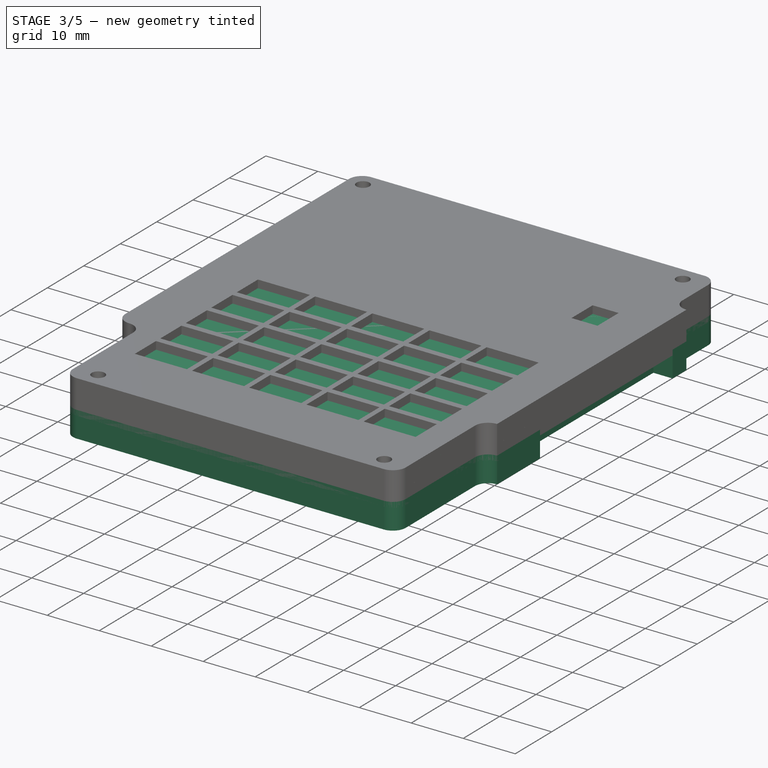
[diagram: stage 3 of 5 — iso view after this stage's code; geometry added in this stage tinted green]
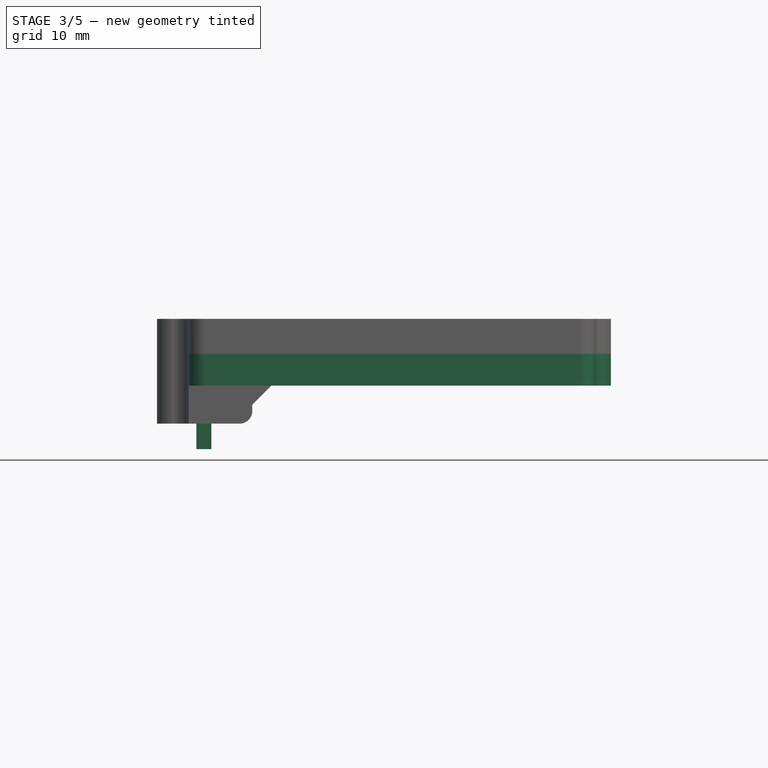
[diagram: stage 3 of 5 — front view after this stage's code; geometry added in this stage tinted green]
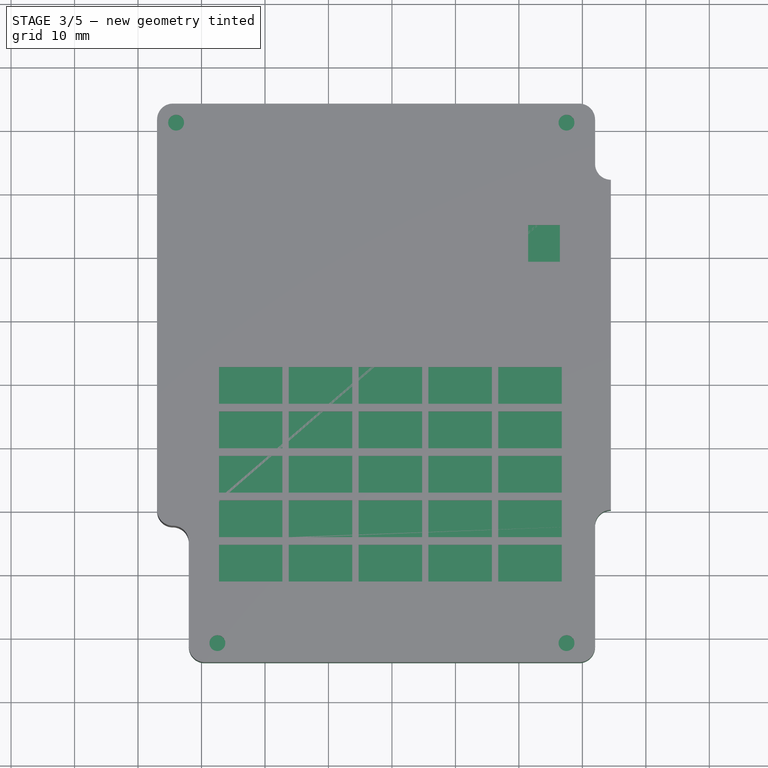
[diagram: stage 3 of 5 — top view after this stage's code; geometry added in this stage tinted green]
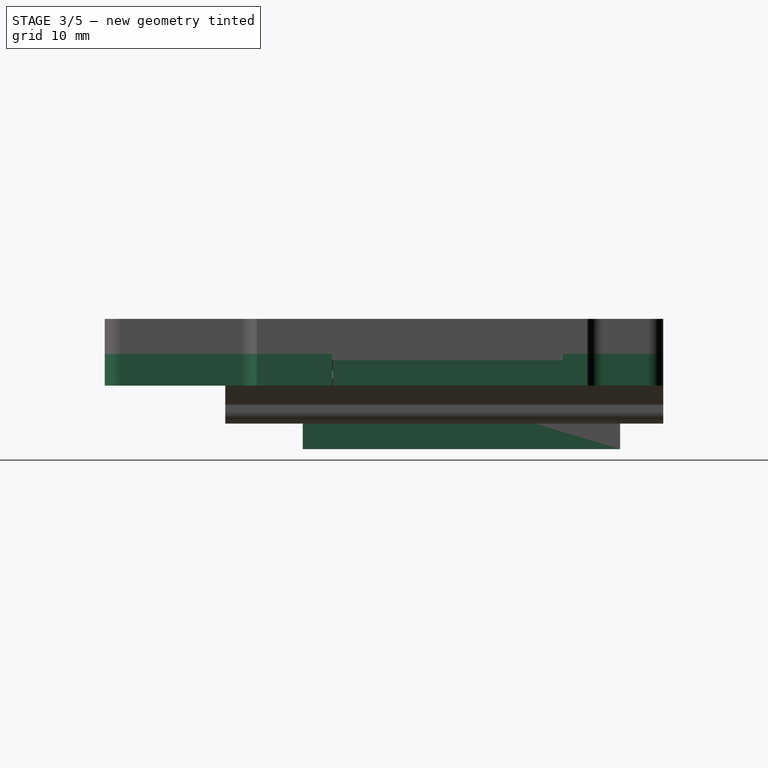
[diagram: stage 3 of 5 — right view after this stage's code; geometry added in this stage tinted green]
FEATURE [Spreadsheet::Sheet] Spreadsheet  label="dimensions"
FEATURE [Sketcher::SketchObject] Sketch
  ArcFitTolerance = 1e-06
  AttachmentSupport = -> [XY_Plane]
  FullyConstrained = true
  MakeInternals = false
  MapMode = 5
  sketch-geometry (19):
    g0: LineSegment [constr] StartX=-32 StartY=24 StartZ=0 EndX=-32 EndY=-61.5 EndZ=0
    g1: LineSegment StartX=-29.5 StartY=-64 StartZ=0 EndX=29.5 EndY=-64 EndZ=0
    g2: LineSegment [constr] StartX=32 StartY=-61.5 StartZ=0 EndX=32 EndY=21.5 EndZ=0
    g3: LineSegment StartX=29.5 StartY=24 StartZ=0 EndX=-34.5 EndY=24 EndZ=0
    g4: ArcOfCircle CenterX=-29.5 CenterY=-61.5 CenterZ=0 NormalX=0 NormalY=0 NormalZ=1 AngleXU=0 Radius=2.5 StartAngle=3.14159 EndAngle=4.71239
    g5: ArcOfCircle CenterX=29.5 CenterY=-61.5 CenterZ=0 NormalX=0 NormalY=0 NormalZ=1 AngleXU=0 Radius=2.5 StartAngle=4.71239 EndAngle=6.28319
    g6: ArcOfCircle CenterX=29.5 CenterY=21.5 CenterZ=0 NormalX=0 NormalY=0 NormalZ=1 AngleXU=0 Radius=2.5 StartAngle=0 EndAngle=1.5708
    g7: GeomPoint [constr] X=-32 Y=24 Z=0
    g8: GeomPoint [constr] X=32 Y=-64 Z=0
    g9: LineSegment StartX=-37 StartY=21.5 StartZ=0 EndX=-37 EndY=-40 EndZ=0
    g10: ArcOfCircle CenterX=-34.5 CenterY=-40 CenterZ=0 NormalX=0 NormalY=0 NormalZ=1 AngleXU=0 Radius=2.5 StartAngle=3.14159 EndAngle=4.71239
    g11: ArcOfCircle CenterX=-34.5 CenterY=-45 CenterZ=0 NormalX=0 NormalY=0 NormalZ=1 AngleXU=0 Radius=2.5 StartAngle=0 EndAngle=1.5708
    g12: LineSegment StartX=-32 StartY=-45 StartZ=0 EndX=-32 EndY=-61.5 EndZ=0
    g13: ArcOfCircle CenterX=-34.5 CenterY=21.5 CenterZ=0 NormalX=0 NormalY=0 NormalZ=1 AngleXU=0 Radius=2.5 StartAngle=1.5708 EndAngle=3.14159
    g14: LineSegment StartX=32 StartY=21.5 StartZ=0 EndX=32 EndY=14.5 EndZ=0
    g15: ArcOfCircle CenterX=34.5 CenterY=14.5 CenterZ=0 NormalX=0 NormalY=0 NormalZ=1 AngleXU=0 Radius=2.5 StartAngle=3.14159 EndAngle=4.71239
    g16: LineSegment StartX=34.5 StartY=12 StartZ=0 EndX=34.5 EndY=-40 EndZ=0
    g17: ArcOfCircle CenterX=34.5 CenterY=-42.5 CenterZ=0 NormalX=0 NormalY=0 NormalZ=1 AngleXU=0 Radius=2.5 StartAngle=1.5708 EndAngle=3.14159
    g18: LineSegment StartX=32 StartY=-42.5 StartZ=0 EndX=32 EndY=-61.5 EndZ=0
  constraints (48):
    c: Tangent(g0,g4) = -1.5708
    c: Tangent(g1,g4) = -1.5708
    c: Tangent(g1,g5) = -1.5708
    c: Tangent(g2,g5) = -1.5708
    c: Tangent(g2,g6) = -1.5708
    c: Tangent(g3,g6) = -1.5708
    c: Vertical(g0)
    c: Vertical(g2)
    c: Horizontal(g1)
    c: Horizontal(g3)
    c: Equal(g5,g6)
    c: PointOnObject(g7,g3)
    c: PointOnObject(g8,g1)
    c: PointOnObject(g8,g2)
    c: Radius(g6) = 2.5
    c: DistanceY(g1,g-1) = 64
    c: DistanceX(g0,g-1) = 32
    c: DistanceX(g-1,g2) = 32
    c: DistanceY(g-1,g3) = 24
    c: Vertical(g9)
    c: Tangent(g11,g0) = 1.5708
    c: Tangent(g11,g10) = 1.5708
    c: Tangent(g10,g9) = -1.5708
    c: Equal(g10,g11)
    c: DistanceY(g1,g9) = 24
    c: Coincident(g12,g11)
    c: Coincident(g12,g0)
    c: Equal(g6,g13)
    c: Tangent(g13,g3) = -1.5708
    c: Tangent(g9,g13) = -1.5708
    c: Vertical(g10,g10)
    c: Equal(g4,g5)
    c: Coincident(g0,g7)
    c: DistanceX(g9,g0) = 5
    c: Coincident(g14,g2)
    c: PointOnObject(g14,g2)
    c: Tangent(g15,g14) = -1.5708
    c: Vertical(g16)
    c: Tangent(g17,g2) = 1.5708
    c: Vertical(g17,g17)
    c: DistanceY(g16,g3) = 12
    c: Coincident(g18,g17)
    c: Coincident(g18,g2)
    c: Coincident(g16,g15)
    c: Coincident(g16,g17)
    c: Equal(g15,g6)
    c: Perpendicular(g15,g16)
    c: DistanceY(g16,g16) = 52
FEATURE [PartDesign::Pad] Pad  label="base"
  Direction = (0,0,1)
  Length = 2
  Length2 = 10
  Profile = -> Sketch
  ReferenceAxis = -> Sketch [N_Axis]
  Suppressed = false
  Type = 0
FEATURE [PartDesign::Pad] Pad004  label="distances"
  BaseFeature = -> Pocket003
  Direction = (0,0,1)
  Length = 5.9
  Length2 = 10
  Profile = -> Sketch009
  ReferenceAxis = -> Sketch009 [N_Axis]
  Reversed = true
  Suppressed = false
  Type = 0
FEATURE [Sketcher::SketchObject] Sketch013  label="side pockets cc"
  ArcFitTolerance = 1e-06
  AttachmentSupport = -> [XY_Plane012]
  FullyConstrained = true
  MakeInternals = false
  MapMode = 5
  expr: Constraints[10] = Sketch012.Constraints[10]
  expr: Constraints[11] = Sketch012.Constraints[11]
  expr: Constraints[20] = Sketch012.Constraints[20]
  expr: Constraints[21] = Sketch012.Constraints[21]
  expr: Constraints[23] = Sketch012.Constraints[23]
  expr: Constraints[8] = Sketch012.Constraints[8]
  expr: Constraints[9] = Sketch012.Constraints[9]
  sketch-geometry (8):
    g0: LineSegment StartX=-55.8 StartY=17.2 StartZ=0 EndX=-55.8 EndY=-33.2 EndZ=0
    g1: LineSegment StartX=-55.8 StartY=-33.2 StartZ=0 EndX=-30.8 EndY=-33.2 EndZ=0
    g2: LineSegment StartX=-30.8 StartY=-33.2 StartZ=0 EndX=-30.8 EndY=17.2 EndZ=0
    g3: LineSegment StartX=-30.8 StartY=17.2 StartZ=0 EndX=-55.8 EndY=17.2 EndZ=0
    g4: LineSegment StartX=30.8 StartY=8.2 StartZ=0 EndX=30.8 EndY=-28.2 EndZ=0
    g5: LineSegment StartX=30.8 StartY=-28.2 StartZ=0 EndX=55.8 EndY=-28.2 EndZ=0
    g6: LineSegment StartX=55.8 StartY=-28.2 StartZ=0 EndX=55.8 EndY=8.2 EndZ=0
    g7: LineSegment StartX=55.8 StartY=8.2 StartZ=0 EndX=30.8 EndY=8.2 EndZ=0
  constraints (24):
    c: Coincident(g0,g1)
    c: Coincident(g1,g2)
    c: Coincident(g2,g3)
    c: Coincident(g3,g0)
    c: Vertical(g0)
    c: Vertical(g2)
    c: Horizontal(g1)
    c: Horizontal(g3)
    c: DistanceY(g0,g0) = 50.4
    c: DistanceY(g1,g-1) = 33.2
    c: DistanceX(g2,g-1) = 30.8
    c: DistanceX(g1,g1) = 25
    c: Coincident(g4,g5)
    c: Coincident(g5,g6)
    c: Coincident(g6,g7)
    c: Coincident(g7,g4)
    c: Vertical(g4)
    c: Vertical(g6)
    c: Horizontal(g5)
    c: Horizontal(g7)
    c: DistanceX(g-1,g4) = 30.8
    c: DistanceY(g4,g-1) = 28.2
    c: Equal(g5,g1)
    c: DistanceY(g6,g6) = 36.4
FEATURE [PartDesign::Pocket] Pocket007  label="side pockets001"
  BaseFeature = -> Pad004
  Direction = (0,0,-1)
  Length = 5
  Length2 = 5
  Midplane = true
  Profile = -> Sketch013
  ReferenceAxis = -> Sketch013 [N_Axis]
  Suppressed = false
  Type = 1
FEATURE [Sketcher::SketchObject] Sketch016  label="mouse support sk001"
  ArcFitTolerance = 1e-06
  AttachmentSupport = -> [Pocket007]
  ExternalGeometry = -> [Pocket007]
  FullyConstrained = true
  MakeInternals = false
  MapMode = 5
  Placement = pos=(0,0,-2) rot=(1,0,0;3.14159rad)
  sketch-geometry (4):
    g0: LineSegment StartX=-30.8 StartY=33.2 StartZ=0 EndX=-28.45 EndY=33.2 EndZ=0
    g1: LineSegment StartX=-28.45 StartY=33.2 StartZ=0 EndX=-28.45 EndY=-17.2 EndZ=0
    g2: LineSegment StartX=-28.45 StartY=-17.2 StartZ=0 EndX=-30.8 EndY=-17.2 EndZ=0
    g3: LineSegment StartX=-30.8 StartY=33.2 StartZ=0 EndX=-30.8 EndY=-17.2 EndZ=0
  constraints (10):
    c: Coincident(g0,g1)
    c: Coincident(g1,g2)
    c: Vertical(g1)
    c: Horizontal(g0)
    c: Horizontal(g2)
    c: DistanceX(g0,g-1) = 28.45
    c: Coincident(g3,g0)
    c: Coincident(g3,g2)
    c: Coincident(g2,g-3)
    c: Coincident(g0,g-3)
FEATURE [Sketcher::SketchObject] Sketch017  label="thumb support sk001"
  ArcFitTolerance = 1e-06
  AttachmentSupport = -> [Pocket007]
  ExternalGeometry = -> [Pocket007]
  FullyConstrained = true
  MakeInternals = false
  MapMode = 5
  Placement = pos=(0,0,-2) rot=(1,0,0;3.14159rad)
  sketch-geometry (4):
    g0: LineSegment StartX=28.45 StartY=28.2 StartZ=0 EndX=30.8 EndY=28.2 EndZ=0
    g1: LineSegment StartX=30.8 StartY=28.2 StartZ=0 EndX=30.8 EndY=-8.2 EndZ=0
    g2: LineSegment StartX=28.45 StartY=28.2 StartZ=0 EndX=28.45 EndY=-8.2 EndZ=0
    g3: LineSegment StartX=28.45 StartY=-8.2 StartZ=0 EndX=30.8 EndY=-8.2 EndZ=0
  constraints (10):
    c: Coincident(g0,g1)
    c: Horizontal(g0)
    c: DistanceX(g-1,g0) = 28.45
    c: Coincident(g1,g-3)
    c: Coincident(g2,g0)
    c: Vertical(g2)
    c: Coincident(g3,g2)
    c: Coincident(g3,g1)
    c: Horizontal(g3)
    c: Coincident(g0,g-3)
FEATURE [PartDesign::Pad] Pad008  label="mouse support001"
  BaseFeature = -> Pocket007
  Direction = (0,0,-1)
  Length = 15
  Length2 = 10
  Profile = -> Sketch016
  ReferenceAxis = -> Sketch016 [N_Axis]
  Suppressed = false
  Type = 0
FEATURE [PartDesign::Pad] Pad009  label="thumb support001"
  BaseFeature = -> Pad008
  Direction = (0,0,-1)
  Length = 5
  Length2 = 10
  Profile = -> Sketch017
  ReferenceAxis = -> Sketch017 [N_Axis]
  Suppressed = false
  Type = 0
FEATURE [Sketcher::SketchObject] Sketch019  label="int holes sk001"
  ArcFitTolerance = 1e-06
  AttachmentSupport = -> [XY_Plane012]
  FullyConstrained = true
  MakeInternals = false
  MapMode = 5
  expr: Constraints[0] = Sketch018.Constraints[0]
  expr: Constraints[15] = Sketch018.Constraints[15]
  expr: Constraints[16] = Sketch018.Constraints[16]
  expr: Constraints[17] = Sketch018.Constraints[17]
  sketch-geometry (8):
    g0: Circle CenterX=-15 CenterY=21 CenterZ=0 NormalX=0 NormalY=0 NormalZ=1 AngleXU=0 Radius=2.9
    g1: Circle CenterX=15 CenterY=21 CenterZ=0 NormalX=0 NormalY=0 NormalZ=1 AngleXU=0 Radius=2.9
    g2: LineSegment [constr] StartX=-15 StartY=21 StartZ=0 EndX=-15 EndY=-55 EndZ=0
    g3: LineSegment [constr] StartX=-15 StartY=-55 StartZ=0 EndX=15 EndY=-55 EndZ=0
    g4: LineSegment [constr] StartX=15 StartY=-55 StartZ=0 EndX=15 EndY=21 EndZ=0
    g5: LineSegment [constr] StartX=15 StartY=21 StartZ=0 EndX=-15 EndY=21 EndZ=0
    g6: Circle CenterX=-15 CenterY=-55 CenterZ=0 NormalX=0 NormalY=0 NormalZ=1 AngleXU=0 Radius=2.9
    g7: Circle CenterX=15 CenterY=-55 CenterZ=0 NormalX=0 NormalY=0 NormalZ=1 AngleXU=0 Radius=2.9
  constraints (19):
    c: Diameter(g0) = 5.8
    c: Equal(g0,g1)
    c: Coincident(g2,g3)
    c: Coincident(g3,g4)
    c: Coincident(g4,g5)
    c: Coincident(g5,g2)
    c: Vertical(g2)
    c: Vertical(g4)
    c: Horizontal(g5)
    c: Coincident(g2,g0)
    c: Coincident(g4,g1)
    c: Coincident(g6,g2)
    c: Coincident(g7,g3)
    c: Equal(g0,g6)
    c: Equal(g0,g7)
    c: DistanceY(g-1,g1) = 21
    c: DistanceY(g3,g-1) = 55
    c: DistanceX(g3,g3) = 30
    c: Symmetric(g3,g2,g-2)
FEATURE [PartDesign::Pocket] Pocket009  label="integrating holes001"
  BaseFeature = -> Pad009
  Direction = (0,0,-1)
  Length = 1.5
  Length2 = 5
  Profile = -> Sketch019
  ReferenceAxis = -> Sketch019 [N_Axis]
  Suppressed = false
  Type = 0
FEATURE [Sketcher::SketchObject] Sketch021
  ArcFitTolerance = 1e-06
  AttachmentSupport = -> [Pocket009]
  ExternalGeometry = -> [Pocket009]
  FullyConstrained = true
  MakeInternals = false
  MapMode = 5
  Placement = pos=(0,0,-2) rot=(1,0,0;3.14159rad)
  sketch-geometry (35):
    g0: LineSegment StartX=-29.5 StartY=64 StartZ=0 EndX=29.5 EndY=64 EndZ=0
    g1: LineSegment StartX=34.5 StartY=-8.2 StartZ=0 EndX=34.5 EndY=-12 EndZ=0
    g2: LineSegment StartX=32 StartY=-14.5 StartZ=0 EndX=32 EndY=-21.5 EndZ=0
    g3: LineSegment StartX=29.5 StartY=-24 StartZ=0 EndX=-34.5 EndY=-24 EndZ=0
    g4: LineSegment StartX=-37 StartY=-21.5 StartZ=0 EndX=-37 EndY=-17.2 EndZ=0
    g5: LineSegment StartX=-32 StartY=61.5 StartZ=0 EndX=-32 EndY=45 EndZ=0
    g6: LineSegment StartX=-37 StartY=40 StartZ=0 EndX=-37 EndY=33.2 EndZ=0
    g7: ArcOfCircle CenterX=-29.5 CenterY=61.5 CenterZ=0 NormalX=0 NormalY=0 NormalZ=1 AngleXU=0 Radius=2.5 StartAngle=1.5708 EndAngle=3.14159
    g8: ArcOfCircle CenterX=-34.5 CenterY=45 CenterZ=0 NormalX=0 NormalY=0 NormalZ=1 AngleXU=0 Radius=2.5 StartAngle=4.71239 EndAngle=6.28319
    g9: ArcOfCircle CenterX=-34.5 CenterY=40 CenterZ=0 NormalX=0 NormalY=0 NormalZ=1 AngleXU=0 Radius=2.5 StartAngle=1.5708 EndAngle=3.14159
    g10: ArcOfCircle CenterX=-34.5 CenterY=-21.5 CenterZ=0 NormalX=0 NormalY=0 NormalZ=1 AngleXU=0 Radius=2.5 StartAngle=3.14159 EndAngle=4.71239
    g11: ArcOfCircle CenterX=29.5 CenterY=-21.5 CenterZ=0 NormalX=0 NormalY=0 NormalZ=1 AngleXU=0 Radius=2.5 StartAngle=4.71239 EndAngle=6.28319
    g12: ArcOfCircle CenterX=34.5 CenterY=-14.5 CenterZ=0 NormalX=0 NormalY=0 NormalZ=1 AngleXU=0 Radius=2.5 StartAngle=1.5708 EndAngle=3.14159
    g13: ArcOfCircle CenterX=34.5 CenterY=42.5 CenterZ=0 NormalX=0 NormalY=0 NormalZ=1 AngleXU=0 Radius=2.5 StartAngle=3.14159 EndAngle=4.71239
    g14: ArcOfCircle CenterX=29.5 CenterY=61.5 CenterZ=0 NormalX=0 NormalY=0 NormalZ=1 AngleXU=0 Radius=2.5 StartAngle=1.3e-15 EndAngle=1.5708
    g15: LineSegment StartX=-37 StartY=33.2 StartZ=0 EndX=-34 EndY=33.2 EndZ=0
    g16: LineSegment StartX=-34 StartY=33.2 StartZ=0 EndX=-34 EndY=39.5 EndZ=0
    g17: LineSegment StartX=-34 StartY=39.5 StartZ=0 EndX=-29 EndY=39.5 EndZ=0
    g18: LineSegment StartX=-29 StartY=39.5 StartZ=0 EndX=-29 EndY=58.5 EndZ=0
    g19: LineSegment StartX=-29 StartY=58.5 StartZ=0 EndX=29 EndY=58.5 EndZ=0
    g20: LineSegment StartX=29 StartY=58.5 StartZ=0 EndX=29 EndY=28.2 EndZ=0
    g21: LineSegment StartX=29 StartY=28.2 StartZ=0 EndX=34.5 EndY=28.2 EndZ=0
    g22: LineSegment StartX=-37 StartY=-17.2 StartZ=0 EndX=-36.2686 EndY=-17.2 EndZ=0
    g23: LineSegment StartX=-36.2686 StartY=-17.2 StartZ=0 EndX=-36.2686 EndY=-18.5 EndZ=0
    g24: LineSegment StartX=-36.2686 StartY=-18.5 StartZ=0 EndX=29 EndY=-18.5 EndZ=0
    g25: LineSegment StartX=29 StartY=-18.5 StartZ=0 EndX=29 EndY=-8.2 EndZ=0
    g26: LineSegment StartX=29 StartY=-8.2 StartZ=0 EndX=34.5 EndY=-8.2 EndZ=0
    g27: LineSegment [constr] StartX=-34.5 StartY=42.5 StartZ=0 EndX=-34.5 EndY=39.5 EndZ=0
    g28: LineSegment [constr] StartX=-32 StartY=45 StartZ=0 EndX=-29 EndY=45 EndZ=0
    g29: LineSegment [constr] StartX=-29 StartY=58.5 StartZ=0 EndX=-29 EndY=64 EndZ=0
    g30: LineSegment [constr] StartX=29 StartY=58.5 StartZ=0 EndX=32 EndY=58.5 EndZ=0
    g31: LineSegment [constr] StartX=29 StartY=-18.5 StartZ=0 EndX=32 EndY=-18.5 EndZ=0
    g32: LineSegment [constr] StartX=-36.2686 StartY=-18.5 StartZ=0 EndX=-36.2686 EndY=-24 EndZ=0
    g33: LineSegment StartX=32 StartY=61.5 StartZ=0 EndX=32 EndY=42.5 EndZ=0
    g34: LineSegment StartX=34.5 StartY=28.2 StartZ=0 EndX=34.5 EndY=40 EndZ=0
  constraints (85):
    c: Coincident(g0,g-4)
    c: Coincident(g0,g-4)
    c: Coincident(g1,g-5)
    c: Coincident(g1,g-5)
    c: Coincident(g2,g-6)
    c: Coincident(g2,g-6)
    c: Coincident(g3,g-7)
    c: Coincident(g3,g-7)
    c: Coincident(g4,g-8)
    c: Coincident(g4,g-8)
    c: Coincident(g5,g-3)
    c: Coincident(g5,g-3)
    c: Coincident(g6,g-9)
    c: Coincident(g6,g-9)
    c: Coincident(g7,g5)
    c: Coincident(g10,g4)
    c: Coincident(g11,g2)
    c: Tangent(g7,g0) = 1.5708
    c: Equal(g8,g9)
    c: Tangent(g9,g8) = 1.5708
    c: Tangent(g8,g5) = 1.5708
    c: Tangent(g9,g6) = -1.5708
    c: Tangent(g14,g0) = 1.5708
    c: Tangent(g12,g2) = -1.5708
    c: Tangent(g11,g3) = 1.5708
    c: Tangent(g10,g3) = 1.5708
    c: Coincident(g15,g6)
    c: Horizontal(g15)
    c: DistanceX(g15,g15) = 3
    c: Coincident(g16,g15)
    c: Vertical(g16)
    c: Coincident(g17,g16)
    c: Horizontal(g17)
    c: Coincident(g18,g17)
    c: Vertical(g18)
    c: Coincident(g19,g18)
    c: Horizontal(g19)
    c: Coincident(g20,g19)
    c: Vertical(g20)
    c: Horizontal(g21)
    c: Coincident(g22,g4)
    c: Horizontal(g22)
    c: Coincident(g23,g22)
    c: Vertical(g23)
    c: Coincident(g24,g23)
    c: Horizontal(g24)
    c: Coincident(g25,g24)
    c: Vertical(g25)
    c: Coincident(g26,g1)
    c: Horizontal(g26)
    c: Coincident(g27,g8)
    c: PointOnObject(g27,g17)
    c: Vertical(g27)
    c: Coincident(g28,g5)
    c: PointOnObject(g28,g18)
    c: Horizontal(g28)
    c: Coincident(g29,g18)
    c: PointOnObject(g29,g0)
    c: Vertical(g29)
    c: Coincident(g30,g19)
    c: Horizontal(g30)
    c: Coincident(g31,g24)
    c: PointOnObject(g31,g2)
    c: Horizontal(g31)
    c: Coincident(g32,g23)
    c: PointOnObject(g32,g3)
    c: Vertical(g32)
    c: Equal(g15,g27)
    c: Equal(g27,g28)
    c: Equal(g22,g22)
    c: Equal(g30,g28)
    c: DistanceY(g29,g29) = 5.5
    c: Equal(g32,g29)
    c: Coincident(g26,g25)
    c: Coincident(g12,g1)
    c: Coincident(g21,g20)
    c: Equal(g31,g30)
    c: Coincident(g13,g-10)
    c: Tangent(g13,g-11) = 1.5708
    c: Tangent(g33,g13) = -1.5708
    c: PointOnObject(g30,g33)
    c: Coincident(g34,g21)
    c: Coincident(g34,g13)
    c: Coincident(g21,g-10)
    c: Tangent(g33,g14) = 1.5708
FEATURE [PartDesign::Pad] Pad011  label="walls001"
  BaseFeature = -> Pocket009
  Direction = (0,0,-1)
  Length = 5
  Length2 = 10
  Profile = -> Sketch021
  ReferenceAxis = -> Sketch021 [N_Axis]
  Suppressed = false
  Type = 0
FEATURE [PartDesign::Body] Body002  label="integrating pin"
  AllowCompound = false
  Group = -> [Sketch022,Pad012]
  Origin = -> Origin013
  Tip = -> Pad012
FEATURE [Sketcher::SketchObject] Sketch023
  ArcFitTolerance = 1e-06
  AttachmentSupport = -> [XY_Plane012]
  FullyConstrained = true
  MakeInternals = false
  MapMode = 5
  sketch-geometry (16):
    g0: LineSegment StartX=-28 StartY=22.7 StartZ=0 EndX=-28 EndY=18.2 EndZ=0
    g1: LineSegment StartX=-28 StartY=18.2 StartZ=0 EndX=-20 EndY=18.2 EndZ=0
    g2: LineSegment StartX=-20 StartY=18.2 StartZ=0 EndX=-20 EndY=22.7 EndZ=0
    g3: LineSegment StartX=-20 StartY=22.7 StartZ=0 EndX=-28 EndY=22.7 EndZ=0
    g4: LineSegment StartX=21 StartY=22.7 StartZ=0 EndX=21 EndY=18.2 EndZ=0
    g5: LineSegment StartX=21 StartY=18.2 StartZ=0 EndX=29 EndY=18.2 EndZ=0
    g6: LineSegment StartX=29 StartY=18.2 StartZ=0 EndX=29 EndY=22.7 EndZ=0
    g7: LineSegment StartX=29 StartY=22.7 StartZ=0 EndX=21 EndY=22.7 EndZ=0
    g8: LineSegment StartX=-23.5 StartY=-46.72 StartZ=0 EndX=-23.5 EndY=-51.22 EndZ=0
    g9: LineSegment StartX=-23.5 StartY=-51.22 StartZ=0 EndX=-13.5 EndY=-51.22 EndZ=0
    g10: LineSegment StartX=-13.5 StartY=-51.22 StartZ=0 EndX=-13.5 EndY=-46.72 EndZ=0
    g11: LineSegment StartX=-13.5 StartY=-46.72 StartZ=0 EndX=-23.5 EndY=-46.72 EndZ=0
    g12: LineSegment StartX=13.5 StartY=-46.72 StartZ=0 EndX=13.5 EndY=-51.22 EndZ=0
    g13: LineSegment StartX=13.5 StartY=-51.22 StartZ=0 EndX=23.5 EndY=-51.22 EndZ=0
    g14: LineSegment StartX=23.5 StartY=-51.22 StartZ=0 EndX=23.5 EndY=-46.72 EndZ=0
    g15: LineSegment StartX=23.5 StartY=-46.72 StartZ=0 EndX=13.5 EndY=-46.72 EndZ=0
  constraints (47):
    c: Coincident(g0,g1)
    c: Coincident(g1,g2)
    c: Coincident(g2,g3)
    c: Coincident(g3,g0)
    c: Vertical(g0)
    c: Vertical(g2)
    c: Horizontal(g1)
    c: Horizontal(g3)
    c: Coincident(g4,g5)
    c: Coincident(g5,g6)
    c: Coincident(g6,g7)
    c: Coincident(g7,g4)
    c: Vertical(g4)
    c: Vertical(g6)
    c: Horizontal(g5)
    c: Horizontal(g7)
    c: Coincident(g8,g9)
    c: Coincident(g9,g10)
    c: Coincident(g10,g11)
    c: Coincident(g11,g8)
    c: Vertical(g8)
    c: Vertical(g10)
    c: Horizontal(g9)
    c: Horizontal(g11)
    c: Coincident(g12,g13)
    c: Coincident(g13,g14)
    c: Coincident(g14,g15)
    c: Coincident(g15,g12)
    c: Vertical(g12)
    c: Vertical(g14)
    c: Horizontal(g13)
    c: Horizontal(g15)
    c: Symmetric(g10,g12,g-2)
    c: Equal(g11,g15)
    c: Equal(g10,g12)
    c: DistanceY(g8,g8) = 4.5
    c: DistanceX(g9,g9) = 10
    c: DistanceX(g9,g12) = 27
    c: DistanceY(g10,g-1) = 46.72
    c: DistanceY(g-1,g1) = 18.2
    c: Horizontal(g1,g4)
    c: Equal(g2,g4)
    c: DistanceX(g7,g7) = 8
    c: Equal(g7,g3)
    c: Equal(g8,g0)
    c: DistanceX(g-1,g5) = 29
    c: DistanceX(g0,g-1) = 28
FEATURE [PartDesign::Pad] Pad013  label="vertical pcb positioning"
  BaseFeature = -> Pad011
  Direction = (0,0,1)
  Length = 7
  Length2 = 10
  Profile = -> Sketch023
  ReferenceAxis = -> Sketch023 [N_Axis]
  Reversed = true
  Suppressed = false
  Type = 0
FEATURE [Sketcher::SketchObject] Sketch025  label="main screws sk cc"
  ArcFitTolerance = 1e-06
  AttachmentSupport = -> [XY_Plane012]
  FullyConstrained = true
  MakeInternals = false
  MapMode = 5
  expr: Constraints[10] = Sketch024.Constraints[10]
  expr: Constraints[11] = Sketch024.Constraints[11]
  expr: Constraints[2] = Sketch024.Constraints[2]
  expr: Constraints[7] = Sketch024.Constraints[7]
  expr: Constraints[8] = Sketch024.Constraints[8]
  expr: Constraints[9] = Sketch024.Constraints[9]
  sketch-geometry (4):
    g0: Circle CenterX=-34 CenterY=21 CenterZ=0 NormalX=0 NormalY=0 NormalZ=1 AngleXU=0 Radius=1.25
    g1: Circle CenterX=27.5 CenterY=21 CenterZ=0 NormalX=0 NormalY=0 NormalZ=1 AngleXU=0 Radius=1.25
    g2: Circle CenterX=27.5 CenterY=-61 CenterZ=0 NormalX=0 NormalY=0 NormalZ=1 AngleXU=0 Radius=1.25
    g3: Circle CenterX=-27.5 CenterY=-61 CenterZ=0 NormalX=0 NormalY=0 NormalZ=1 AngleXU=0 Radius=1.25
  constraints (12):
    c: Horizontal(g2,g3)
    c: Vertical(g1,g2)
    c: Diameter(g0) = 2.5
    c: Equal(g0,g1)
    c: Equal(g1,g2)
    c: Equal(g2,g3)
    c: Horizontal(g0,g1)
    c: DistanceX(g-1,g1) = 27.5
    c: DistanceY(g-1,g1) = 21
    c: DistanceX(g0,g-1) = 34
    c: DistanceY(g2,g-1) = 61
    c: DistanceX(g3,g-1) = 27.5
FEATURE [PartDesign::Pocket] Pocket011  label="main screws pockets001"
  BaseFeature = -> Pad013
  Direction = (0,0,-1)
  Length = 5
  Length2 = 5
  Midplane = true
  Profile = -> Sketch025
  ReferenceAxis = -> Sketch025 [N_Axis]
  Suppressed = false
  Type = 1
FEATURE [Sketcher::SketchObject] Sketch033  label="tape pocket cc"
  ArcFitTolerance = 1e-06
  AttachmentSupport = -> [XY_Plane012]
  FullyConstrained = true
  MakeInternals = false
  MapMode = 5
  expr: Constraints[10] = Sketch032.Constraints[10]
  expr: Constraints[9] = Sketch032.Constraints[9]
  sketch-geometry (4):
    g0: LineSegment StartX=-10 StartY=0 StartZ=0 EndX=-10 EndY=-50 EndZ=0
    g1: LineSegment StartX=-10 StartY=-50 StartZ=0 EndX=10 EndY=-50 EndZ=0
    g2: LineSegment StartX=10 StartY=-50 StartZ=0 EndX=10 EndY=0 EndZ=0
    g3: LineSegment StartX=10 StartY=0 StartZ=0 EndX=-10 EndY=0 EndZ=0
  constraints (11):
    c: Coincident(g0,g1)
    c: Coincident(g1,g2)
    c: Coincident(g2,g3)
    c: Coincident(g3,g0)
    c: Vertical(g0)
    c: Vertical(g2)
    c: Horizontal(g1)
    c: Symmetric(g2,g0,g-2)
    c: PointOnObject(g0,g-1)
    c: DistanceX(g3,g3) = 20
    c: DistanceY(g0,g0) = 50
FEATURE [PartDesign::Pocket] Pocket017  label="keyboard tape pocket001"
  BaseFeature = -> Pocket011
  Direction = (0,0,-1)
  Length = 5
  Length2 = 5
  Midplane = true
  Profile = -> Sketch033
  ReferenceAxis = -> Sketch033 [N_Axis]
  Suppressed = false
  Type = 1
FEATURE [PartDesign::Body] Body  label="top base"
  AllowCompound = false
  Group = -> [Sketch,Pad,Sketch002,Pad002,Sketch003,Sketch004,Pocket,Sketch005,Pocket001,Pocket002,Sketch012,Pocket006,Sketch014,Pad006,Sketch015,Pad007,Sketch018,Pocket008,Sketch020,Pad010,Sketch024,Pocket010,Sketch032,Pocket016,Sketch041,Pocket020]
  Origin = -> Origin
  Tip = -> Pocket020
FEATURE [Sketcher::SketchObject] Sketch042
  ArcFitTolerance = 1e-06
  AttachmentSupport = -> [XY_Plane012]
  FullyConstrained = true
  MakeInternals = false
  MapMode = 5
  expr: Constraints[10] = Sketch041.Constraints[10]
  expr: Constraints[19] = Sketch041.Constraints[19]
  expr: Constraints[20] = Sketch041.Constraints[20]
  expr: Constraints[21] = Sketch041.Constraints[21]
  expr: Constraints[22] = Sketch041.Constraints[22]
  expr: Constraints[23] = Sketch041.Constraints[23]
  expr: Constraints[8] = Sketch041.Constraints[8]
  expr: Constraints[9] = Sketch041.Constraints[9]
  sketch-geometry (8):
    g0: LineSegment StartX=-35 StartY=-32.8 StartZ=0 EndX=-35 EndY=-38.6 EndZ=0
    g1: LineSegment StartX=-35 StartY=-38.6 StartZ=0 EndX=-20 EndY=-38.6 EndZ=0
    g2: LineSegment StartX=-20 StartY=-38.6 StartZ=0 EndX=-20 EndY=-32.8 EndZ=0
    g3: LineSegment StartX=-20 StartY=-32.8 StartZ=0 EndX=-35 EndY=-32.8 EndZ=0
    g4: LineSegment StartX=18.2 StartY=-28 StartZ=0 EndX=18.2 EndY=-31 EndZ=0
    g5: LineSegment StartX=18.2 StartY=-31 StartZ=0 EndX=33.2 EndY=-31 EndZ=0
    g6: LineSegment StartX=33.2 StartY=-31 StartZ=0 EndX=33.2 EndY=-28 EndZ=0
    g7: LineSegment StartX=33.2 StartY=-28 StartZ=0 EndX=18.2 EndY=-28 EndZ=0
  constraints (24):
    c: Coincident(g0,g1)
    c: Coincident(g1,g2)
    c: Coincident(g2,g3)
    c: Coincident(g3,g0)
    c: Vertical(g0)
    c: Vertical(g2)
    c: Horizontal(g1)
    c: Horizontal(g3)
    c: DistanceX(g1,g1) = 15
    c: DistanceY(g0,g0) = 5.8
    c: DistanceY(g2,g-1) = 32.8
    c: Coincident(g4,g5)
    c: Coincident(g5,g6)
    c: Coincident(g6,g7)
    c: Coincident(g7,g4)
    c: Vertical(g4)
    c: Vertical(g6)
    c: Horizontal(g5)
    c: Horizontal(g7)
    c: DistanceX(g5,g5) = 15
    c: DistanceY(g4,g4) = 3
    c: DistanceY(g4,g-1) = 28
    c: DistanceX(g-1,g6) = 33.2
    c: DistanceX(g0,g-1) = 35
FEATURE [PartDesign::Pocket] Pocket021  label="tape channel001"
  BaseFeature = -> Pocket017
  Direction = (0,0,-1)
  Length = 5
  Length2 = 5
  Midplane = true
  Profile = -> Sketch042
  ReferenceAxis = -> Sketch042 [N_Axis]
  Suppressed = false
  Type = 1
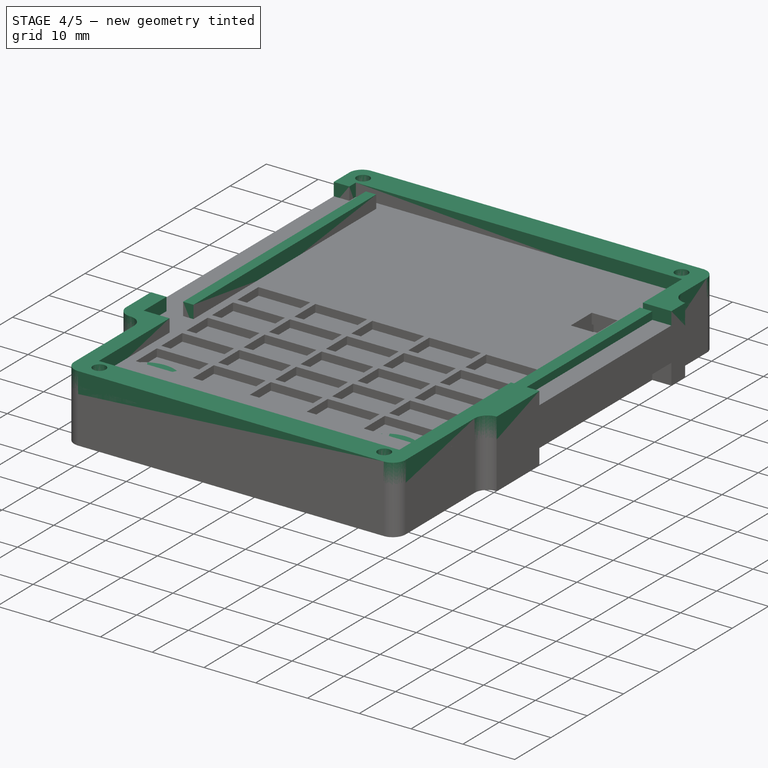
[diagram: stage 4 of 5 — iso view after this stage's code; geometry added in this stage tinted green]
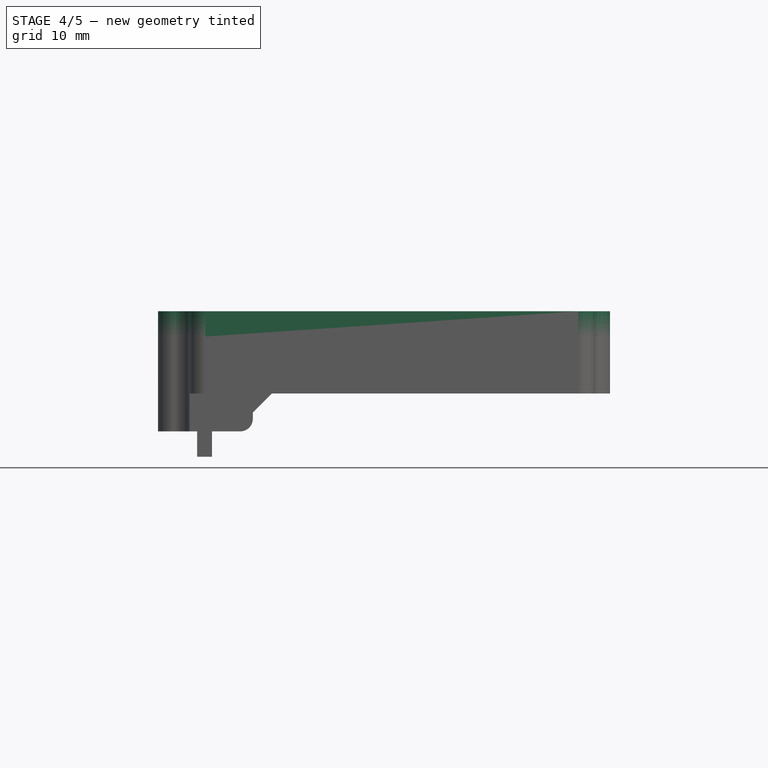
[diagram: stage 4 of 5 — front view after this stage's code; geometry added in this stage tinted green]
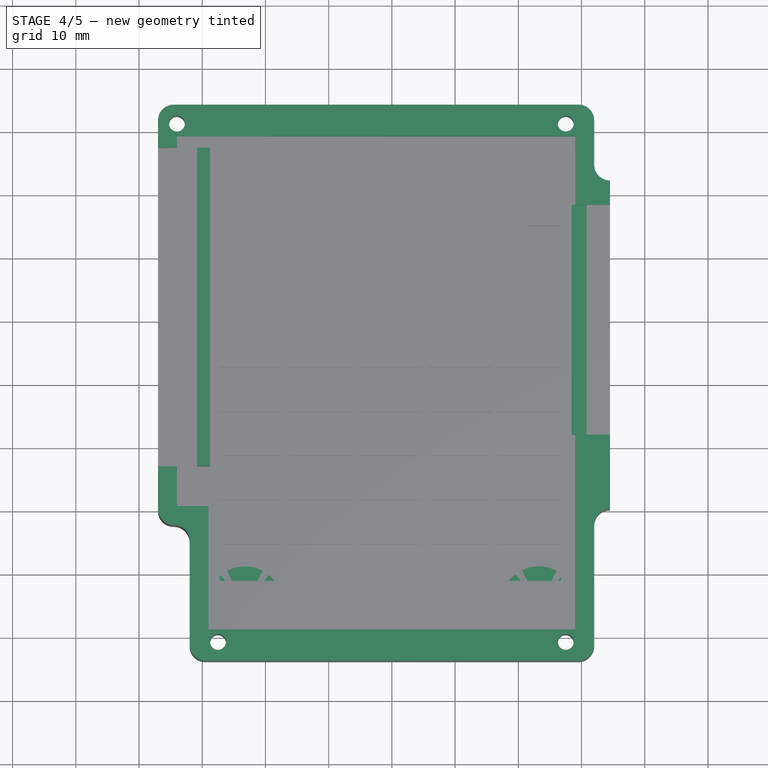
[diagram: stage 4 of 5 — top view after this stage's code; geometry added in this stage tinted green]
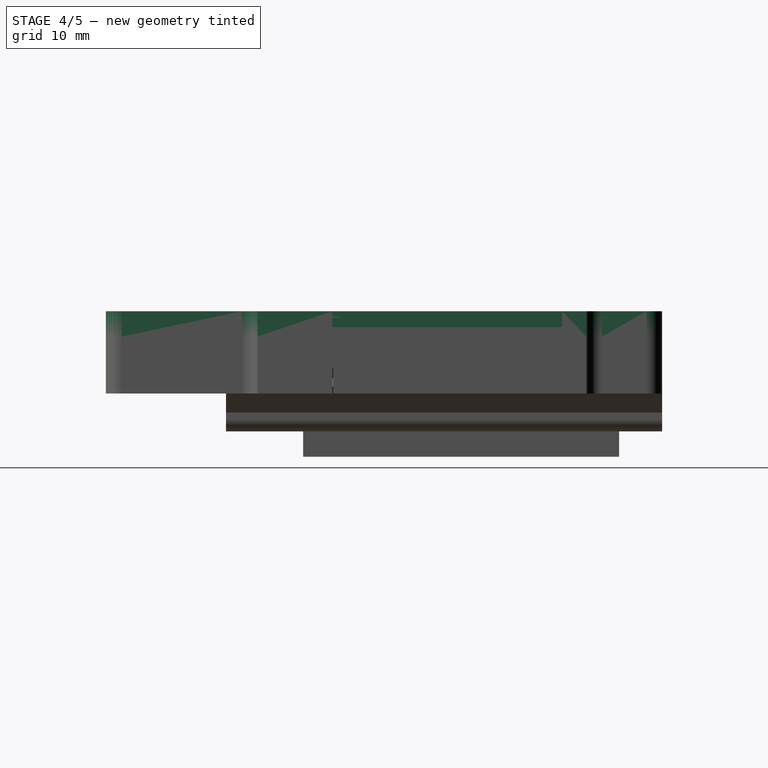
[diagram: stage 4 of 5 — right view after this stage's code; geometry added in this stage tinted green]
FEATURE [Sketcher::SketchObject] Sketch002  label="columns sketch"
  ArcFitTolerance = 1e-06
  AttachmentSupport = -> [XY_Plane]
  FullyConstrained = true
  MakeInternals = false
  MapMode = 5
  sketch-geometry (4):
    g0: Circle CenterX=-23.25 CenterY=-55 CenterZ=0 NormalX=0 NormalY=0 NormalZ=1 AngleXU=0 Radius=6
    g1: Circle CenterX=23.25 CenterY=-55 CenterZ=0 NormalX=0 NormalY=0 NormalZ=1 AngleXU=0 Radius=6
    g2: Circle CenterX=-23.25 CenterY=-10 CenterZ=0 NormalX=0 NormalY=0 NormalZ=1 AngleXU=0 Radius=6
    g3: Circle CenterX=23.25 CenterY=-10 CenterZ=0 NormalX=0 NormalY=0 NormalZ=1 AngleXU=0 Radius=6
  constraints (11):
    c: Diameter(g1) = 12
    c: Equal(g1,g0)
    c: DistanceX(g0,g1) = 46.5
    c: DistanceY(g0,g-1) = 55
    c: Horizontal(g3,g2)
    c: Equal(g1,g3)
    c: Equal(g1,g2)
    c: Vertical(g2,g0)
    c: Vertical(g3,g1)
    c: Symmetric(g0,g1,g-2)
    c: DistanceY(g0,g2) = 45
FEATURE [PartDesign::Pad] Pad002  label="columns"
  BaseFeature = -> Pad
  Direction = (0,0,1)
  Length = 3
  Length2 = 10
  Profile = -> Sketch002
  ReferenceAxis = -> Sketch002 [N_Axis]
  Suppressed = false
  Type = 0
FEATURE [Sketcher::SketchObject] Sketch003  label="keyboard nuts pockets"
  ArcFitTolerance = 1e-06
  AttachmentSupport = -> [XY_Plane]
  FullyConstrained = true
  MakeInternals = false
  MapMode = 5
  sketch-geometry (28):
    g0: LineSegment StartX=-20.8829 StartY=-10 StartZ=0 EndX=-22.0664 EndY=-7.95 EndZ=0
    g1: LineSegment StartX=-22.0664 StartY=-7.95 StartZ=0 EndX=-24.4336 EndY=-7.95 EndZ=0
    g2: LineSegment StartX=-24.4336 StartY=-7.95 StartZ=0 EndX=-25.6171 EndY=-10 EndZ=0
    g3: LineSegment StartX=-25.6171 StartY=-10 StartZ=0 EndX=-24.4336 EndY=-12.05 EndZ=0
    g4: LineSegment StartX=-24.4336 StartY=-12.05 StartZ=0 EndX=-22.0664 EndY=-12.05 EndZ=0
    g5: LineSegment StartX=-22.0664 StartY=-12.05 StartZ=0 EndX=-20.8829 EndY=-10 EndZ=0
    g6: Circle [constr] CenterX=-23.25 CenterY=-10 CenterZ=0 NormalX=0 NormalY=0 NormalZ=1 AngleXU=0 Radius=2.36714
    g7: LineSegment StartX=25.6171 StartY=-10 StartZ=0 EndX=24.4336 EndY=-7.95 EndZ=0
    g8: LineSegment StartX=24.4336 StartY=-7.95 StartZ=0 EndX=22.0664 EndY=-7.95 EndZ=0
    g9: LineSegment StartX=22.0664 StartY=-7.95 StartZ=0 EndX=20.8829 EndY=-10 EndZ=0
    g10: LineSegment StartX=20.8829 StartY=-10 StartZ=0 EndX=22.0664 EndY=-12.05 EndZ=0
    g11: LineSegment StartX=22.0664 StartY=-12.05 StartZ=0 EndX=24.4336 EndY=-12.05 EndZ=0
    g12: LineSegment StartX=24.4336 StartY=-12.05 StartZ=0 EndX=25.6171 EndY=-10 EndZ=0
    g13: Circle [constr] CenterX=23.25 CenterY=-10 CenterZ=0 NormalX=0 NormalY=0 NormalZ=1 AngleXU=0 Radius=2.36714
    g14: LineSegment StartX=-22.0664 StartY=-52.95 StartZ=0 EndX=-24.4336 EndY=-52.95 EndZ=0
    g15: LineSegment StartX=-24.4336 StartY=-52.95 StartZ=0 EndX=-25.6171 EndY=-55 EndZ=0
    g16: LineSegment StartX=-25.6171 StartY=-55 StartZ=0 EndX=-24.4336 EndY=-57.05 EndZ=0
    g17: LineSegment StartX=-24.4336 StartY=-57.05 StartZ=0 EndX=-22.0664 EndY=-57.05 EndZ=0
    g18: LineSegment StartX=-22.0664 StartY=-57.05 StartZ=0 EndX=-20.8829 EndY=-55 EndZ=0
    g19: LineSegment StartX=-20.8829 StartY=-55 StartZ=0 EndX=-22.0664 EndY=-52.95 EndZ=0
    g20: Circle [constr] CenterX=-23.25 CenterY=-55 CenterZ=0 NormalX=0 NormalY=0 NormalZ=1 AngleXU=0 Radius=2.36714
    g21: LineSegment StartX=24.4336 StartY=-52.95 StartZ=0 EndX=22.0664 EndY=-52.95 EndZ=0
    g22: LineSegment StartX=22.0664 StartY=-52.95 StartZ=0 EndX=20.8829 EndY=-55 EndZ=0
    g23: LineSegment StartX=20.8829 StartY=-55 StartZ=0 EndX=22.0664 EndY=-57.05 EndZ=0
    g24: LineSegment StartX=22.0664 StartY=-57.05 StartZ=0 EndX=24.4336 EndY=-57.05 EndZ=0
    g25: LineSegment StartX=24.4336 StartY=-57.05 StartZ=0 EndX=25.6171 EndY=-55 EndZ=0
    g26: LineSegment StartX=25.6171 StartY=-55 StartZ=0 EndX=24.4336 EndY=-52.95 EndZ=0
    g27: Circle [constr] CenterX=23.25 CenterY=-55 CenterZ=0 NormalX=0 NormalY=0 NormalZ=1 AngleXU=0 Radius=2.36714
  constraints (67):
    c: Coincident(g0,g1)
    c: Coincident(g1,g2)
    c: Coincident(g2,g3)
    c: Coincident(g3,g4)
    c: Coincident(g4,g5)
    c: Coincident(g5,g0)
    c: Equal(g0, g1-g5) x5
    c: PointOnObject(g0,g6)
    c: PointOnObject(g1,g6)
    c: PointOnObject(g2,g6)
    c: PointOnObject(g3,g6)
    c: PointOnObject(g4,g6)
    c: PointOnObject(g5,g6)
    c: DistanceY(g3,g1) = 4.1
    c: Horizontal(g1)
    c: Coincident(g7,g8)
    c: Coincident(g8,g9)
    c: Coincident(g9,g10)
    c: Coincident(g10,g11)
    c: Coincident(g11,g12)
    c: Coincident(g12,g7)
    c: Equal(g7, g8-g12) x5
    c: PointOnObject(g7,g13)
    c: PointOnObject(g8,g13)
    c: PointOnObject(g9,g13)
    c: PointOnObject(g10,g13)
    c: PointOnObject(g11,g13)
    c: PointOnObject(g12,g13)
    c: Horizontal(g8)
    c: Equal(g1,g8)
    c: Symmetric(g6,g13,g-2)
    c: DistanceX(g6,g13) = 46.5
    c: DistanceY(g13,g-1) = 10
    c: Coincident(g14,g15)
    c: Coincident(g15,g16)
    c: Coincident(g16,g17)
    c: Coincident(g17,g18)
    c: Coincident(g18,g19)
    c: Coincident(g19,g14)
    c: Equal(g14, g15-g19) x5
    c: PointOnObject(g14,g20)
    c: PointOnObject(g15,g20)
    c: PointOnObject(g16,g20)
    c: PointOnObject(g17,g20)
    c: PointOnObject(g18,g20)
    c: PointOnObject(g19,g20)
    c: Coincident(g21,g22)
    c: Coincident(g22,g23)
    c: Coincident(g23,g24)
    c: Coincident(g24,g25)
    c: Coincident(g25,g26)
    c: Coincident(g26,g21)
    c: Equal(g21, g22-g26) x5
    c: PointOnObject(g21,g27)
    c: PointOnObject(g22,g27)
    c: PointOnObject(g23,g27)
    c: PointOnObject(g24,g27)
    c: PointOnObject(g25,g27)
    c: PointOnObject(g26,g27)
    c: Horizontal(g14)
    c: Horizontal(g21)
    c: Equal(g1,g14)
    c: Equal(g8,g21)
    c: Vertical(g6,g20)
    c: Vertical(g13,g27)
    c: Horizontal(g27,g20)
    c: DistanceY(g20,g6) = 45
FEATURE [Part::Feature] Part__Feature  label="C_0603_1608Metric"
  Placement = pos=(23.75,-0.018599,1.085) rot=(0,0,1;1.5708rad)
  shape: bbox 0.8 x 1.6 x 0.8 mm, 28 faces (baked)
FEATURE [Part::Feature] Part__Feature379  label="R_0603_1608Metric"
  Placement = pos=(19.26,-7.5186,1.085) rot=(0,0,-1;1.5708rad)
  shape: bbox 0.8 x 1.6 x 0.45 mm, 26 faces (baked)
FEATURE [Part::Feature] Part__Feature380  label="TL3315NF100Q"
  Placement = pos=(42.2,27.9814,1.135) rot=(0,0,-1;1.5708rad)
  shape: bbox 4.5 x 4.75 x 0.6 mm, 52 faces (baked)
FEATURE [Part::Feature] Part__Feature381  label="R_0603_1608Metric072"
  Placement = pos=(43.1293,10.8627,1.085) rot=(0,0,1;1.5708rad)
  shape: bbox 0.8 x 1.6 x 0.45 mm, 26 faces (baked)
FEATURE [Part::Feature] Part__Feature382  label="R_0603_1608Metric073"
  Placement = pos=(29.75,-7.5186,1.085) rot=(0,0,-1;1.5708rad)
  shape: bbox 0.8 x 1.6 x 0.45 mm, 26 faces (baked)
FEATURE [Part::Feature] Part__Feature383  label="C_0603_1608Metric001"
  Placement = pos=(41.8375,-4.7686,1.085) rot=(0,0,1;0rad)
  shape: bbox 1.6 x 0.8 x 0.8 mm, 28 faces (baked)
FEATURE [Part::Feature] Part__Feature384  label="DLG-0403-4R7"
  Placement = pos=(-2,19.3814,1.085) rot=(0,0,1;1.5708rad)
  shape: bbox 4.8 x 4.3 x 3.5 mm, 13 faces (baked)
FEATURE [Part::Feature] Part__Feature385  label="R_0603_1608Metric074"
  Placement = pos=(26.75,-7.5186,1.085) rot=(0,0,-1;1.5708rad)
  shape: bbox 0.8 x 1.6 x 0.45 mm, 26 faces (baked)
FEATURE [Part::Feature] Part__Feature386  label="R_0603_1608Metric075"
  Placement = pos=(2.175,-12.6186,1.085) rot=(0,0,1;0rad)
  shape: bbox 1.6 x 0.8 x 0.45 mm, 26 faces (baked)
FEATURE [Part::Feature] Part__Feature387  label="R_0603_1608Metric076"
  Placement = pos=(23.75,-3.5186,1.085) rot=(0,0,1;1.5708rad)
  shape: bbox 0.8 x 1.6 x 0.45 mm, 26 faces (baked)
FEATURE [Part::Feature] Part__Feature388  label="R_0603_1608Metric077"
  Placement = pos=(25.25,-7.5186,1.085) rot=(0,0,-1;1.5708rad)
  shape: bbox 0.8 x 1.6 x 0.45 mm, 26 faces (baked)
FEATURE [Part::Feature] Part__Feature389  label="AAA"
  Placement = pos=(21.6,37.7814,7.085) rot=(0,0,1;0rad)
  shape: bbox 44 x 10 x 10 mm, 5 faces (baked)
FEATURE [Part::Feature] Part__Feature390  label="BC-0401"
  Placement = pos=(0.3,37.7814,1.085) rot=(0,0,1;0rad)
  shape: bbox 7.7 x 10.5 x 15.45 mm, 46 faces (baked)
FEATURE [Part::Feature] Part__Feature391  label="BC-0402"
  Placement = pos=(42.9,37.7814,1.085) rot=(0,0,1;3.14159rad)
  shape: bbox 7.7 x 10.5 x 15.45 mm, 46 faces (baked)
FEATURE [Part::Feature] Part__Feature392  label="R_0603_1608Metric078"
  Placement = pos=(38.2375,-2.5686,1.085) rot=(0,0,1;3.14159rad)
  shape: bbox 1.6 x 0.8 x 0.45 mm, 26 faces (baked)
FEATURE [Part::Feature] Part__Feature393  label="R_0603_1608Metric079"
  Placement = pos=(17.75,-7.5186,1.085) rot=(0,0,-1;1.5708rad)
  shape: bbox 0.8 x 1.6 x 0.45 mm, 26 faces (baked)
FEATURE [Part::Feature] Part__Feature394  label="R_0603_1608Metric080"
  Placement = pos=(-6.175,37.9814,1.085) rot=(0,0,1;0rad)
  shape: bbox 1.6 x 0.8 x 0.45 mm, 26 faces (baked)
FEATURE [Part::Feature] Part__Feature395  label="R_0603_1608Metric081"
  Placement = pos=(19.25,-3.5186,1.085) rot=(0,0,1;1.5708rad)
  shape: bbox 0.8 x 1.6 x 0.45 mm, 26 faces (baked)
FEATURE [Part::Feature] Part__Feature396  label="R_0603_1608Metric082"
  Placement = pos=(35.4,-13.4186,1.085) rot=(0,0,1;3.14159rad)
  shape: bbox 1.6 x 0.8 x 0.45 mm, 26 faces (baked)
FEATURE [Part::Feature] Part__Feature397  label="R_0603_1608Metric083"
  Placement = pos=(2.175,-15.8186,1.085) rot=(0,0,1;0rad)
  shape: bbox 1.6 x 0.8 x 0.45 mm, 26 faces (baked)
FEATURE [Part::Feature] Part__Feature398  label="R_0603_1608Metric084"
  Placement = pos=(11.3033,15.0525,1.085) rot=(0,0,-1;0.785398rad)
  shape: bbox 1.697 x 1.697 x 0.45 mm, 26 faces (baked)
FEATURE [Part::Feature] Part__Feature399  label="C_0603_1608Metric002"
  Placement = pos=(19.25,-0.018599,1.085) rot=(0,0,1;1.5708rad)
  shape: bbox 0.8 x 1.6 x 0.8 mm, 28 faces (baked)
FEATURE [Part::Feature] Part__Feature400  label="R_0603_1608Metric085"
  Placement = pos=(21.7293,23.6627,1.085) rot=(0,0,1;0rad)
  shape: bbox 1.6 x 0.8 x 0.45 mm, 26 faces (baked)
FEATURE [Part::Feature] Part__Feature401  label="C_0603_1608Metric003"
  Placement = pos=(18.25,12.5,1.085) rot=(0,0,1;0.785398rad)
  shape: bbox 1.697 x 1.697 x 0.8 mm, 28 faces (baked)
FEATURE [Part::Feature] Part__Feature402  label="ESP32-C3-WROOM-02U"
  Placement = pos=(33.0293,17.4127,1.085) rot=(0,0,-1;0.785398rad)
  shape: bbox 22.84 x 22.84 x 3.235 mm, 348 faces, 37 solids (baked)
FEATURE [Part::Feature] Part__Feature403  label="C_0603_1608Metric004"
  Placement = pos=(5.4,-9.4186,1.085) rot=(0,0,1;0rad)
  shape: bbox 1.6 x 0.8 x 0.8 mm, 28 faces (baked)
FEATURE [Part::Feature] Part__Feature404  label="C_0603_1608Metric005"
  Placement = pos=(35.4,-16.6186,1.085) rot=(0,0,1;0rad)
  shape: bbox 1.6 x 0.8 x 0.8 mm, 28 faces (baked)
FEATURE [Part::Feature] Part__Feature405  label="C_0603_1608Metric006"
  Placement = pos=(5.4,-7.8186,1.085) rot=(0,0,1;0rad)
  shape: bbox 1.6 x 0.8 x 0.8 mm, 28 faces (baked)
FEATURE [Part::Feature] Part__Feature406  label="R_0603_1608Metric086"
  Placement = pos=(20.75,-3.5186,1.085) rot=(0,0,1;1.5708rad)
  shape: bbox 0.8 x 1.6 x 0.45 mm, 26 faces (baked)
FEATURE [Part::Feature] Part__Feature407  label="C_0603_1608Metric007"
  Placement = pos=(-3.275,14.4814,1.085) rot=(0,0,1;0rad)
  shape: bbox 1.6 x 0.8 x 0.8 mm, 28 faces (baked)
FEATURE [Part::Feature] Part__Feature408  label="R_0603_1608Metric087"
  Placement = pos=(38.8375,2.4314,1.085) rot=(0,0,1;0rad)
  shape: bbox 1.6 x 0.8 x 0.45 mm, 26 faces (baked)
FEATURE [Part::Feature] Part__Feature409  label="R_0603_1608Metric088"
  Placement = pos=(-7,1.9814,1.085) rot=(0,0,1;0rad)
  shape: bbox 1.6 x 0.8 x 0.45 mm, 26 faces (baked)
FEATURE [Part::Feature] Part__Feature410  label="R_0603_1608Metric089"
  Placement = pos=(22.26,-7.5186,1.085) rot=(0,0,-1;1.5708rad)
  shape: bbox 0.8 x 1.6 x 0.45 mm, 26 faces (baked)
FEATURE [Part::Feature] Part__Feature411  label="R_0603_1608Metric090"
  Placement = pos=(22.25,-3.5186,1.085) rot=(0,0,1;1.5708rad)
  shape: bbox 0.8 x 1.6 x 0.45 mm, 26 faces (baked)
FEATURE [Part::Feature] Part__Feature412  label="R_0603_1608Metric091"
  Placement = pos=(2.2,-11.0186,1.085) rot=(0,0,1;0rad)
  shape: bbox 1.6 x 0.8 x 0.45 mm, 26 faces (baked)
FEATURE [Part::Feature] Part__Feature413  label="ZH-S3B-SM4A"
  Placement = pos=(16.35,27.4814,1.085) rot=(0,0,-1;1.5708rad)
  shape: bbox 6.5 x 7.5 x 3.7 mm, 36 faces (baked)
FEATURE [Part::Feature] Part__Feature414  label="C_0603_1608Metric008"
  Placement = pos=(-3.275,16.0814,1.085) rot=(0,0,1;0rad)
  shape: bbox 1.6 x 0.8 x 0.8 mm, 28 faces (baked)
FEATURE [Part::Feature] Part__Feature415  label="C_0603_1608Metric009"
  Placement = pos=(17.75,-0.018599,1.085) rot=(0,0,1;1.5708rad)
  shape: bbox 0.8 x 1.6 x 0.8 mm, 28 faces (baked)
FEATURE [Part::Feature] Part__Feature416  label="R_0603_1608Metric092"
  Placement = pos=(16.25,-7.5186,1.085) rot=(0,0,-1;1.5708rad)
  shape: bbox 0.8 x 1.6 x 0.45 mm, 26 faces (baked)
FEATURE [Part::Feature] Part__Feature417  label="R_0603_1608Metric093"
  Placement = pos=(38.8375,4.0314,1.085) rot=(0,0,1;0rad)
  shape: bbox 1.6 x 0.8 x 0.45 mm, 26 faces (baked)
FEATURE [Part::Feature] Part__Feature418  label="C_0603_1608Metric010"
  Placement = pos=(-1.775,10.1814,1.085) rot=(0,0,1;3.14159rad)
  shape: bbox 1.6 x 0.8 x 0.8 mm, 28 faces (baked)
FEATURE [Part::Feature] Part__Feature419  label="DS1020-07-10VBT1A-R"
  Placement = pos=(-2.7125,-11.0186,1.085) rot=(0,0,-1;1.5708rad)
  shape: bbox 6.9 x 17.2 x 2.5 mm, 65 faces (baked)
FEATURE [Part::Feature] Part__Feature420  label="DS1020-07-16VBT1A-R"
  Placement = pos=(18.75,-13.2311,1.085) rot=(0,0,1;0rad)
  shape: bbox 23.2 x 6.9 x 2.5 mm, 95 faces (baked)
FEATURE [Part::Feature] Part__Feature421  label="R_0603_1608Metric094"
  Placement = pos=(25.25,-3.5186,1.085) rot=(0,0,1;1.5708rad)
  shape: bbox 0.8 x 1.6 x 0.45 mm, 26 faces (baked)
FEATURE [Part::Feature] Part__Feature422  label="C_0603_1608Metric011"
  Placement = pos=(29.75,-0.018599,1.085) rot=(0,0,1;1.5708rad)
  shape: bbox 0.8 x 1.6 x 0.8 mm, 28 faces (baked)
FEATURE [Part::Feature] Part__Feature423  label="R_0603_1608Metric095"
  Placement = pos=(11.25,-7.5186,1.085) rot=(0,0,-1;1.5708rad)
  shape: bbox 0.8 x 1.6 x 0.45 mm, 26 faces (baked)
FEATURE [Part::Feature] Part__Feature424  label="R_0603_1608Metric096"
  Placement = pos=(2.175,-19.0186,1.085) rot=(0,0,1;0rad)
  shape: bbox 1.6 x 0.8 x 0.45 mm, 26 faces (baked)
FEATURE [Part::Feature] Part__Feature425  label="C_0805_2012Metric"
  Placement = pos=(15.7033,15.8525,1.085) rot=(0,0,1;2.35619rad)
  shape: bbox 2.298 x 2.298 x 1.25 mm, 28 faces (baked)
FEATURE [Part::Feature] Part__Feature426  label="LED_0603_1608Metric"
  Placement = pos=(-7,3.9814,1.085) rot=(0,0,1;0rad)
  shape: bbox 1.6 x 0.8 x 1.1 mm, 50 faces (baked)
FEATURE [Part::Feature] Part__Feature427  label="R_0603_1608Metric097"
  Placement = pos=(28.25,-7.5186,1.085) rot=(0,0,-1;1.5708rad)
  shape: bbox 0.8 x 1.6 x 0.45 mm, 26 faces (baked)
FEATURE [Part::Feature] Part__Feature428  label="R_0603_1608Metric098"
  Placement = pos=(20.75,-7.5186,1.085) rot=(0,0,-1;1.5708rad)
  shape: bbox 0.8 x 1.6 x 0.45 mm, 26 faces (baked)
FEATURE [Part::Feature] Part__Feature429  label="R_0603_1608Metric099"
  Placement = pos=(38.2375,0.631401,1.085) rot=(0,0,1;3.14159rad)
  shape: bbox 1.6 x 0.8 x 0.45 mm, 26 faces (baked)
FEATURE [Part::Feature] Part__Feature430  label="R_0603_1608Metric100"
  Placement = pos=(35.4,-15.0186,1.085) rot=(0,0,1;3.14159rad)
  shape: bbox 1.6 x 0.8 x 0.45 mm, 26 faces (baked)
FEATURE [Part::Feature] Part__Feature431  label="R_0603_1608Metric101"
  Placement = pos=(38.2375,-0.968599,1.085) rot=(0,0,1;3.14159rad)
  shape: bbox 1.6 x 0.8 x 0.45 mm, 26 faces (baked)
FEATURE [Part::Feature] Part__Feature432  label="SOT-23"
  Placement = pos=(-6.8,18.0439,1.085) rot=(0,0,-1;1.5708rad)
  shape: bbox 3 x 2.5 x 1.2 mm, 76 faces (baked)
FEATURE [Part::Feature] Part__Feature433  label="R_0603_1608Metric102"
  Placement = pos=(4.6,-0.418599,1.085) rot=(0,0,-1;0.785398rad)
  shape: bbox 1.697 x 1.697 x 0.45 mm, 26 faces (baked)
FEATURE [Part::Feature] Part__Feature434  label="R_0603_1608Metric103"
  Placement = pos=(-7,0.381401,1.085) rot=(0,0,1;0rad)
  shape: bbox 1.6 x 0.8 x 0.45 mm, 26 faces (baked)
FEATURE [Part::Feature] Part__Feature435  label="C_1206_3216Metric"
  Placement = pos=(-2.2,29.1814,1.085) rot=(0,0,1;0rad)
  shape: bbox 3.2 x 1.6 x 1.6 mm, 28 faces (baked)
FEATURE [Part::Feature] Part__Feature436  label="C_0603_1608Metric012"
  Placement = pos=(5.4,-14.2186,1.085) rot=(0,0,1;0rad)
  shape: bbox 1.6 x 0.8 x 0.8 mm, 28 faces (baked)
FEATURE [Part::Feature] Part__Feature437  label="R_0603_1608Metric104"
  Placement = pos=(23.76,-7.5186,1.085) rot=(0,0,-1;1.5708rad)
  shape: bbox 0.8 x 1.6 x 0.45 mm, 26 faces (baked)
FEATURE [Part::Feature] Part__Feature438  label="R_0603_1608Metric105"
  Placement = pos=(-7,-1.2186,1.085) rot=(0,0,1;0rad)
  shape: bbox 1.6 x 0.8 x 0.45 mm, 26 faces (baked)
FEATURE [Part::Feature] Part__Feature439  label="D_SOD-123"
  Placement = pos=(-7.4,25.9314,1.085) rot=(0,0,-1;1.5708rad)
  shape: bbox 1.6 x 3.8 x 1.25 mm, 67 faces (baked)
FEATURE [Part::Feature] Part__Feature440  label="R_0603_1608Metric106"
  Placement = pos=(19.9543,21.8627,1.085) rot=(0,0,1;0rad)
  shape: bbox 1.6 x 0.8 x 0.45 mm, 26 faces (baked)
FEATURE [Part::Feature] Part__Feature441  label="DS1020-07-4VBT1A-R"
  Placement = pos=(39.4,-14.0186,1.085) rot=(0,0,1;1.5708rad)
  shape: bbox 6.9 x 11.2 x 2.5 mm, 35 faces (baked)
FEATURE [Part::Feature] Part__Feature442  label="R_0603_1608Metric107"
  Placement = pos=(0.4,12.4064,1.085) rot=(0,0,1;1.5708rad)
  shape: bbox 0.8 x 1.6 x 0.45 mm, 26 faces (baked)
FEATURE [Part::Feature] Part__Feature443  label="SOT-23-6"
  Placement = pos=(-2.4375,26.1314,1.085) rot=(0,0,1;3.14159rad)
  shape: bbox 2.8 x 2.9 x 1.55 mm, 124 faces (baked)
FEATURE [Part::Feature] Part__Feature444  label="R_0603_1608Metric108"
  Placement = pos=(12.75,-7.5186,1.085) rot=(0,0,-1;1.5708rad)
  shape: bbox 0.8 x 1.6 x 0.45 mm, 26 faces (baked)
FEATURE [Part::Feature] Part__Feature445  label="R_0603_1608Metric109"
  Placement = pos=(9.75,-7.5186,1.085) rot=(0,0,-1;1.5708rad)
  shape: bbox 0.8 x 1.6 x 0.45 mm, 26 faces (baked)
FEATURE [Part::Feature] Part__Feature446  label="C_0603_1608Metric013"
  Placement = pos=(26.75,-0.018599,1.085) rot=(0,0,1;1.5708rad)
  shape: bbox 0.8 x 1.6 x 0.8 mm, 28 faces (baked)
FEATURE [Part::Feature] Part__Feature447  label="R_0603_1608Metric110"
  Placement = pos=(2.175,-14.2186,1.085) rot=(0,0,1;0rad)
  shape: bbox 1.6 x 0.8 x 0.45 mm, 26 faces (baked)
FEATURE [Part::Feature] Part__Feature448  label="R_0603_1608Metric111"
  Placement = pos=(2.2,-9.4186,1.085) rot=(0,0,1;0rad)
  shape: bbox 1.6 x 0.8 x 0.45 mm, 26 faces (baked)
FEATURE [Part::Feature] Part__Feature449  label="C_0603_1608Metric014"
  Placement = pos=(35.4,-11.8186,1.085) rot=(0,0,1;0rad)
  shape: bbox 1.6 x 0.8 x 0.8 mm, 28 faces (baked)
FEATURE [Part::Feature] Part__Feature450  label="C_0603_1608Metric015"
  Placement = pos=(26.9293,28.4627,1.085) rot=(0,0,1;3.92699rad)
  shape: bbox 1.697 x 1.697 x 0.8 mm, 28 faces (baked)
FEATURE [Part::Feature] Part__Feature451  label="C_0603_1608Metric016"
  Placement = pos=(25.25,-0.018599,1.085) rot=(0,0,1;1.5708rad)
  shape: bbox 0.8 x 1.6 x 0.8 mm, 28 faces (baked)
FEATURE [Part::Feature] Part__Feature452  label="C_0805_2012Metric001"
  Placement = pos=(25.3293,29.6627,1.085) rot=(0,0,1;3.92699rad)
  shape: bbox 2.298 x 2.298 x 1.25 mm, 28 faces (baked)
FEATURE [Part::Feature] Part__Feature453  label="R_0603_1608Metric112"
  Placement = pos=(28.25,-3.5186,1.085) rot=(0,0,1;1.5708rad)
  shape: bbox 0.8 x 1.6 x 0.45 mm, 26 faces (baked)
FEATURE [Part::Feature] Part__Feature454  label="R_0603_1608Metric113"
  Placement = pos=(-5.4,28.5814,1.085) rot=(0,0,-1;1.5708rad)
  shape: bbox 0.8 x 1.6 x 0.45 mm, 26 faces (baked)
FEATURE [Part::Feature] Part__Feature455  label="C_0603_1608Metric017"
  Placement = pos=(14.7033,14.3525,1.085) rot=(0,0,1;2.35619rad)
  shape: bbox 1.697 x 1.697 x 0.8 mm, 28 faces (baked)
FEATURE [Part::Feature] Part__Feature456  label="C_0603_1608Metric018"
  Placement = pos=(5.4,-11.0186,1.085) rot=(0,0,1;0rad)
  shape: bbox 1.6 x 0.8 x 0.8 mm, 28 faces (baked)
FEATURE [Part::Feature] Part__Feature457  label="C_0603_1608Metric019"
  Placement = pos=(16.9033,17.2525,1.085) rot=(0,0,1;2.35619rad)
  shape: bbox 1.697 x 1.697 x 0.8 mm, 28 faces (baked)
FEATURE [Part::Feature] Part__Feature458  label="R_0603_1608Metric114"
  Placement = pos=(29.75,-3.5186,1.085) rot=(0,0,1;1.5708rad)
  shape: bbox 0.8 x 1.6 x 0.45 mm, 26 faces (baked)
FEATURE [Part::Feature] Part__Feature459  label="R_0603_1608Metric115"
  Placement = pos=(-5.4,25.5814,1.085) rot=(0,0,-1;1.5708rad)
  shape: bbox 0.8 x 1.6 x 0.45 mm, 26 faces (baked)
FEATURE [Part::Feature] Part__Feature460  label="PinHeader_1x02_P2.54mm_Vertical"
  Placement = pos=(-5.125,41.3814,1.085) rot=(0,0,-1;1.5708rad)
  shape: bbox 5.08 x 2.54 x 11.54 mm, 52 faces (baked)
FEATURE [Part::Feature] Part__Feature461  label="LQFP-64_10x10mm_P0.5mm"
  Placement = pos=(7.70329,7.85245,1.085) rot=(0,0,1;3.92699rad)
  shape: bbox 13.94 x 13.94 x 1.5 mm, 1004 faces (baked)
FEATURE [Part::Feature] Part__Feature462  label="R_0603_1608Metric116"
  Placement = pos=(14.25,-7.5186,1.085) rot=(0,0,-1;1.5708rad)
  shape: bbox 0.8 x 1.6 x 0.45 mm, 26 faces (baked)
FEATURE [Part::Feature] Part__Feature463  label="C_0805_2012Metric002"
  Placement = pos=(-2.6375,23.1314,1.085) rot=(0,0,1;0rad)
  shape: bbox 2 x 1.25 x 1.25 mm, 28 faces (baked)
FEATURE [Part::Feature] Part__Feature464  label="C_0603_1608Metric020"
  Placement = pos=(17.1033,13.4525,1.085) rot=(0,0,1;3.92699rad)
  shape: bbox 1.697 x 1.697 x 0.8 mm, 28 faces (baked)
FEATURE [Part::Feature] Part__Feature465  label="R_0603_1608Metric117"
  Placement = pos=(43.6375,2.0314,1.085) rot=(0,0,1;3.14159rad)
  shape: bbox 1.6 x 0.8 x 0.45 mm, 26 faces (baked)
FEATURE [Part::Feature] Part__Feature466  label="LED_0603_1608Metric001"
  Placement = pos=(-7,6.9814,1.085) rot=(0,0,1;0rad)
  shape: bbox 1.6 x 0.8 x 1.1 mm, 50 faces (baked)
FEATURE [Part::Feature] Part__Feature467  label="R_0603_1608Metric118"
  Placement = pos=(26.75,-3.5186,1.085) rot=(0,0,1;1.5708rad)
  shape: bbox 0.8 x 1.6 x 0.45 mm, 26 faces (baked)
FEATURE [Part::Feature] Part__Feature468  label="C_0603_1608Metric021"
  Placement = pos=(5.4,-12.6186,1.085) rot=(0,0,1;0rad)
  shape: bbox 1.6 x 0.8 x 0.8 mm, 28 faces (baked)
FEATURE [Part::Feature] Part__Feature469  label="C_0603_1608Metric022"
  Placement = pos=(5.4,-17.4186,1.085) rot=(0,0,1;0rad)
  shape: bbox 1.6 x 0.8 x 0.8 mm, 28 faces (baked)
FEATURE [Part::Feature] Part__Feature470  label="C_0603_1608Metric023"
  Placement = pos=(16.25,-0.018599,1.085) rot=(0,0,1;1.5708rad)
  shape: bbox 0.8 x 1.6 x 0.8 mm, 28 faces (baked)
FEATURE [Part::Feature] Part__Feature471  label="R_0603_1608Metric119"
  Placement = pos=(28.9293,31.6627,1.085) rot=(0,0,1;0rad)
  shape: bbox 1.6 x 0.8 x 0.45 mm, 26 faces (baked)
FEATURE [Part::Feature] Part__Feature472  label="C_0603_1608Metric024"
  Placement = pos=(41.8375,-3.1686,1.085) rot=(0,0,1;0rad)
  shape: bbox 1.6 x 0.8 x 0.8 mm, 28 faces (baked)
FEATURE [Part::Feature] Part__Feature473  label="LGA-14_3x2.5mm_P0.5mm_LayoutBorder3x4y"
  Placement = pos=(42.0375,-0.768599,1.085) rot=(0,0,1;0rad)
  shape: bbox 3 x 2.5 x 0.78 mm, 78 faces (baked)
FEATURE [Part::Feature] Part__Feature474  label="R_0603_1608Metric120"
  Placement = pos=(2.175,-17.4186,1.085) rot=(0,0,1;0rad)
  shape: bbox 1.6 x 0.8 x 0.45 mm, 26 faces (baked)
FEATURE [Part::Feature] Part__Feature475  label="R_0603_1608Metric121"
  Placement = pos=(16.25,-3.5186,1.085) rot=(0,0,1;1.5708rad)
  shape: bbox 0.8 x 1.6 x 0.45 mm, 26 faces (baked)
FEATURE [Part::Feature] Part__Feature476  label="ZH-S5B-SM4A"
  Placement = pos=(7.95,25.5814,1.085) rot=(0,0,-1;1.5708rad)
  shape: bbox 6.5 x 10.5 x 3.7 mm, 46 faces (baked)
FEATURE [Part::Feature] Part__Feature477  label="R_0603_1608Metric122"
  Placement = pos=(8.25,-7.5186,1.085) rot=(0,0,-1;1.5708rad)
  shape: bbox 0.8 x 1.6 x 0.45 mm, 26 faces (baked)
FEATURE [Part::Feature] Part__Feature478  label="LED_0603_1608Metric002"
  Placement = pos=(-7,9.9814,1.085) rot=(0,0,1;0rad)
  shape: bbox 1.6 x 0.8 x 1.1 mm, 50 faces (baked)
FEATURE [Part::Feature] Part__Feature479  label="C_0603_1608Metric025"
  Placement = pos=(5.4,-15.8186,1.085) rot=(0,0,1;0rad)
  shape: bbox 1.6 x 0.8 x 0.8 mm, 28 faces (baked)
FEATURE [Part::Feature] Part__Feature480  label="C_0603_1608Metric026"
  Placement = pos=(20.75,-0.018599,1.085) rot=(0,0,1;1.5708rad)
  shape: bbox 0.8 x 1.6 x 0.8 mm, 28 faces (baked)
FEATURE [Part::Feature] Part__Feature481  label="R_0603_1608Metric123"
  Placement = pos=(17.75,-3.5186,1.085) rot=(0,0,1;1.5708rad)
  shape: bbox 0.8 x 1.6 x 0.45 mm, 26 faces (baked)
FEATURE [Part::Feature] Part__Feature482  label="C_0603_1608Metric027"
  Placement = pos=(22.25,-0.018599,1.085) rot=(0,0,1;1.5708rad)
  shape: bbox 0.8 x 1.6 x 0.8 mm, 28 faces (baked)
FEATURE [Part::Feature] Part__Feature483  label="C_0603_1608Metric028"
  Placement = pos=(28.25,-0.018599,1.085) rot=(0,0,1;1.5708rad)
  shape: bbox 0.8 x 1.6 x 0.8 mm, 28 faces (baked)
FEATURE [Part::Feature] Part__Feature484  label="C_0603_1608Metric029"
  Placement = pos=(-2.4,31.2814,1.085) rot=(0,0,1;0rad)
  shape: bbox 1.6 x 0.8 x 0.8 mm, 28 faces (baked)
FEATURE [Part::Feature] Part__Feature485  label="C_0603_1608Metric030"
  Placement = pos=(31.9543,31.6627,1.085) rot=(0,0,1;0rad)
  shape: bbox 1.6 x 0.8 x 0.8 mm, 28 faces (baked)
FEATURE [Part::Feature] Part__Feature486  label="C_0603_1608Metric031"
  Placement = pos=(5.4,-19.0186,1.085) rot=(0,0,1;0rad)
  shape: bbox 1.6 x 0.8 x 0.8 mm, 28 faces (baked)
FEATURE [Part::Feature] Part__Feature487  label="ZH-S3B-SM4A001"
  Placement = pos=(23,7.0814,1.085) rot=(0,0,1;3.14159rad)
  shape: bbox 7.5 x 6.5 x 3.7 mm, 36 faces (baked)
FEATURE [Part::Feature] Part__Feature488  label="R_0603_1608Metric124"
  Placement = pos=(2.175,-7.8186,1.085) rot=(0,0,1;0rad)
  shape: bbox 1.6 x 0.8 x 0.45 mm, 26 faces (baked)
FEATURE [Part::Feature] Part__Feature489  label="airMouse-mcu_copper"
  shape: bbox 55.5 x 63.52 x 1.07 mm, 8721 faces, 232 solids (baked)
FEATURE [Part::Feature] Part__Feature490  label="airMouse-mcu_pad"
  shape: bbox 53.38 x 61.73 x 1.08 mm, 3526 faces, 409 solids (baked)
FEATURE [Part::Feature] Part__Feature491  label="airMouse-mcu_via"
  shape: bbox 54.3 x 62.07 x 1.07 mm, 1276 faces, 319 solids (baked)
FEATURE [Part::Feature] Part__Feature492  label="airMouse-mcu_silkscreen"
  shape: bbox 55.27 x 62.81 x 1.15 mm, 483 faces, 0 solids (baked)
FEATURE [Part::Feature] Part__Feature493  label="airMouse-mcu_soldermask"
  shape: bbox 56.5 x 64.52 x 1.1 mm, 2 faces, 0 solids (baked)
FEATURE [Part::Feature] Part__Feature494  label="airMouse-mcu_PCB"
  shape: bbox 56.5 x 64.52 x 1 mm, 27 faces (baked)
FEATURE [App::Part] airMouse_mcu_1  label="airMouse-mcu"
  Group = -> [Part__Feature,Part__Feature379,Part__Feature380,Part__Feature381,Part__Feature382,Part__Feature383,Part__Feature384,Part__Feature385,Part__Feature386,Part__Feature387,Part__Feature388,Part__Feature389,Part__Feature390,Part__Feature391,Part__Feature392,Part__Feature393,Part__Feature394,Part__Feature395,Part__Feature396,Part__Feature397,Part__Feature398,Part__Feature399,Part__Feature400,+94 more]
  Origin = -> Origin008
  Placement = pos=(-18.25,-26,-7) rot=(0,0,1;0rad)
FEATURE [Part::Feature] Part__Feature495  label="TL3315NF100Q068"
  Placement = pos=(14.75,20.6,1.135) rot=(0,0,-1;1.5708rad)
  shape: bbox 4.5 x 4.75 x 0.6 mm, 52 faces (baked)
FEATURE [Part::Feature] Part__Feature496  label="TL3315NF100Q069"
  Placement = pos=(42.25,34.6,1.135) rot=(0,0,-1;1.5708rad)
  shape: bbox 4.5 x 4.75 x 0.6 mm, 52 faces (baked)
FEATURE [Part::Feature] Part__Feature497  label="TL3315NF100Q070"
  Placement = pos=(14.75,6.6,1.135) rot=(0,0,-1;1.5708rad)
  shape: bbox 4.5 x 4.75 x 0.6 mm, 52 faces (baked)
FEATURE [Part::Feature] Part__Feature498  label="TL3315NF100Q071"
  Placement = pos=(9.25,13.6,1.135) rot=(0,0,-1;1.5708rad)
  shape: bbox 4.5 x 4.75 x 0.6 mm, 52 faces (baked)
FEATURE [Part::Feature] Part__Feature499  label="TL3315NF100Q072"
  Placement = pos=(9.25,34.6,1.135) rot=(0,0,-1;1.5708rad)
  shape: bbox 4.5 x 4.75 x 0.6 mm, 52 faces (baked)
FEATURE [Part::Feature] Part__Feature500  label="TL3315NF100Q073"
  Placement = pos=(-1.75,34.6,1.135) rot=(0,0,-1;1.5708rad)
  shape: bbox 4.5 x 4.75 x 0.6 mm, 52 faces (baked)
FEATURE [Part::Feature] Part__Feature501  label="TL3315NF100Q074"
  Placement = pos=(25.75,27.6,1.135) rot=(0,0,-1;1.5708rad)
  shape: bbox 4.5 x 4.75 x 0.6 mm, 52 faces (baked)
FEATURE [Part::Feature] Part__Feature502  label="TL3315NF100Q075"
  Placement = pos=(3.75,13.6,1.135) rot=(0,0,-1;1.5708rad)
  shape: bbox 4.5 x 4.75 x 0.6 mm, 52 faces (baked)
FEATURE [Part::Feature] Part__Feature503  label="TL3315NF100Q076"
  Placement = pos=(36.75,20.6,1.135) rot=(0,0,-1;1.5708rad)
  shape: bbox 4.5 x 4.75 x 0.6 mm, 52 faces (baked)
FEATURE [Part::Feature] Part__Feature504  label="TL3315NF100Q077"
  Placement = pos=(31.25,6.6,1.135) rot=(0,0,-1;1.5708rad)
  shape: bbox 4.5 x 4.75 x 0.6 mm, 52 faces (baked)
FEATURE [Part::Feature] Part__Feature505  label="TL3315NF100Q078"
  Placement = pos=(31.25,13.6,1.135) rot=(0,0,-1;1.5708rad)
  shape: bbox 4.5 x 4.75 x 0.6 mm, 52 faces (baked)
FEATURE [Part::Feature] Part__Feature506  label="TL3315NF100Q079"
  Placement = pos=(20.25,34.6,1.135) rot=(0,0,-1;1.5708rad)
  shape: bbox 4.5 x 4.75 x 0.6 mm, 52 faces (baked)
FEATURE [Part::Feature] Part__Feature507  label="TL3315NF100Q080"
  Placement = pos=(47.75,34.6,1.135) rot=(0,0,-1;1.5708rad)
  shape: bbox 4.5 x 4.75 x 0.6 mm, 52 faces (baked)
FEATURE [Part::Feature] Part__Feature508  label="TL3315NF100Q081"
  Placement = pos=(31.25,27.6,1.135) rot=(0,0,-1;1.5708rad)
  shape: bbox 4.5 x 4.75 x 0.6 mm, 52 faces (baked)
FEATURE [Part::Feature] Part__Feature509  label="TL3315NF100Q082"
  Placement = pos=(42.25,27.6,1.135) rot=(0,0,-1;1.5708rad)
  shape: bbox 4.5 x 4.75 x 0.6 mm, 52 faces (baked)
FEATURE [Part::Feature] Part__Feature510  label="TL3315NF100Q083"
  Placement = pos=(-1.75,6.6,1.135) rot=(0,0,-1;1.5708rad)
  shape: bbox 4.5 x 4.75 x 0.6 mm, 52 faces (baked)
FEATURE [Part::Feature] Part__Feature511  label="TL3315NF100Q084"
  Placement = pos=(25.75,20.6,1.135) rot=(0,0,-1;1.5708rad)
  shape: bbox 4.5 x 4.75 x 0.6 mm, 52 faces (baked)
FEATURE [Part::Feature] Part__Feature512  label="TL3315NF100Q085"
  Placement = pos=(47.75,6.6,1.135) rot=(0,0,-1;1.5708rad)
  shape: bbox 4.5 x 4.75 x 0.6 mm, 52 faces (baked)
FEATURE [Part::Feature] Part__Feature513  label="TL3315NF100Q086"
  Placement = pos=(-1.75,13.6,1.135) rot=(0,0,-1;1.5708rad)
  shape: bbox 4.5 x 4.75 x 0.6 mm, 52 faces (baked)
FEATURE [Part::Feature] Part__Feature514  label="TL3315NF100Q087"
  Placement = pos=(23,6.6,1.135) rot=(0,0,-1;1.5708rad)
  shape: bbox 4.5 x 4.75 x 0.6 mm, 52 faces (baked)
FEATURE [Part::Feature] Part__Feature515  label="TL3315NF100Q088"
  Placement = pos=(3.75,34.6,1.135) rot=(0,0,-1;1.5708rad)
  shape: bbox 4.5 x 4.75 x 0.6 mm, 52 faces (baked)
FEATURE [Part::Feature] Part__Feature516  label="TL3315NF100Q089"
  Placement = pos=(25.75,34.6,1.135) rot=(0,0,-1;1.5708rad)
  shape: bbox 4.5 x 4.75 x 0.6 mm, 52 faces (baked)
FEATURE [Part::Feature] Part__Feature517  label="TL3315NF100Q090"
  Placement = pos=(42.25,13.6,1.135) rot=(0,0,-1;1.5708rad)
  shape: bbox 4.5 x 4.75 x 0.6 mm, 52 faces (baked)
FEATURE [Part::Feature] Part__Feature518  label="TL3315NF100Q091"
  Placement = pos=(14.75,34.6,1.135) rot=(0,0,-1;1.5708rad)
  shape: bbox 4.5 x 4.75 x 0.6 mm, 52 faces (baked)
FEATURE [Part::Feature] Part__Feature519  label="TL3315NF100Q092"
  Placement = pos=(20.25,20.6,1.135) rot=(0,0,-1;1.5708rad)
  shape: bbox 4.5 x 4.75 x 0.6 mm, 52 faces (baked)
FEATURE [Part::Feature] Part__Feature520  label="TL3315NF100Q093"
  Placement = pos=(-1.75,20.6,1.135) rot=(0,0,-1;1.5708rad)
  shape: bbox 4.5 x 4.75 x 0.6 mm, 52 faces (baked)
FEATURE [Part::Feature] Part__Feature521  label="TL3315NF100Q094"
  Placement = pos=(9.25,27.6,1.135) rot=(0,0,-1;1.5708rad)
  shape: bbox 4.5 x 4.75 x 0.6 mm, 52 faces (baked)
FEATURE [Part::Feature] Part__Feature522  label="TL3315NF100Q095"
  Placement = pos=(42.25,6.6,1.135) rot=(0,0,-1;1.5708rad)
  shape: bbox 4.5 x 4.75 x 0.6 mm, 52 faces (baked)
FEATURE [Part::Feature] Part__Feature523  label="TL3315NF100Q096"
  Placement = pos=(36.75,27.6,1.135) rot=(0,0,-1;1.5708rad)
  shape: bbox 4.5 x 4.75 x 0.6 mm, 52 faces (baked)
FEATURE [Part::Feature] Part__Feature524  label="TL3315NF100Q097"
  Placement = pos=(14.75,13.6,1.135) rot=(0,0,-1;1.5708rad)
  shape: bbox 4.5 x 4.75 x 0.6 mm, 52 faces (baked)
FEATURE [Part::Feature] Part__Feature525  label="TL3315NF100Q098"
  Placement = pos=(9.25,20.6,1.135) rot=(0,0,-1;1.5708rad)
  shape: bbox 4.5 x 4.75 x 0.6 mm, 52 faces (baked)
FEATURE [Part::Feature] Part__Feature526  label="TL3315NF100Q099"
  Placement = pos=(47.75,27.6,1.135) rot=(0,0,-1;1.5708rad)
  shape: bbox 4.5 x 4.75 x 0.6 mm, 52 faces (baked)
FEATURE [Part::Feature] Part__Feature527  label="TL3315NF100Q100"
  Placement = pos=(31.25,20.6,1.135) rot=(0,0,-1;1.5708rad)
  shape: bbox 4.5 x 4.75 x 0.6 mm, 52 faces (baked)
FEATURE [Part::Feature] Part__Feature528  label="TL3315NF100Q101"
  Placement = pos=(-1.75,27.6,1.135) rot=(0,0,-1;1.5708rad)
  shape: bbox 4.5 x 4.75 x 0.6 mm, 52 faces (baked)
FEATURE [Part::Feature] Part__Feature529  label="TL3315NF100Q102"
  Placement = pos=(36.75,13.6,1.135) rot=(0,0,-1;1.5708rad)
  shape: bbox 4.5 x 4.75 x 0.6 mm, 52 faces (baked)
FEATURE [Part::Feature] Part__Feature530  label="TL3315NF100Q103"
  Placement = pos=(25.75,13.6,1.135) rot=(0,0,-1;1.5708rad)
  shape: bbox 4.5 x 4.75 x 0.6 mm, 52 faces (baked)
FEATURE [Part::Feature] Part__Feature531  label="TL3315NF100Q104"
  Placement = pos=(36.75,34.6,1.135) rot=(0,0,-1;1.5708rad)
  shape: bbox 4.5 x 4.75 x 0.6 mm, 52 faces (baked)
FEATURE [Part::Feature] Part__Feature532  label="TL3315NF100Q105"
  Placement = pos=(31.25,34.6,1.135) rot=(0,0,-1;1.5708rad)
  shape: bbox 4.5 x 4.75 x 0.6 mm, 52 faces (baked)
FEATURE [Part::Feature] Part__Feature533  label="TL3315NF100Q106"
  Placement = pos=(42.25,20.6,1.135) rot=(0,0,-1;1.5708rad)
  shape: bbox 4.5 x 4.75 x 0.6 mm, 52 faces (baked)
FEATURE [Part::Feature] Part__Feature534  label="TL3315NF100Q107"
  Placement = pos=(3.75,6.6,1.135) rot=(0,0,-1;1.5708rad)
  shape: bbox 4.5 x 4.75 x 0.6 mm, 52 faces (baked)
FEATURE [Part::Feature] Part__Feature535  label="TL3315NF100Q108"
  Placement = pos=(36.75,6.6,1.135) rot=(0,0,-1;1.5708rad)
  shape: bbox 4.5 x 4.75 x 0.6 mm, 52 faces (baked)
FEATURE [Part::Feature] Part__Feature536  label="TL3315NF100Q109"
  Placement = pos=(3.75,20.6,1.135) rot=(0,0,-1;1.5708rad)
  shape: bbox 4.5 x 4.75 x 0.6 mm, 52 faces (baked)
FEATURE [Part::Feature] Part__Feature537  label="DS1020-07-16VBT1A-R001"
  Placement = pos=(23.75,41.6,1.085) rot=(0,0,1;3.14159rad)
  shape: bbox 23.2 x 6.9 x 2.5 mm, 95 faces (baked)
FEATURE [Part::Feature] Part__Feature538  label="TL3315NF100Q110"
  Placement = pos=(20.25,13.6,1.135) rot=(0,0,-1;1.5708rad)
  shape: bbox 4.5 x 4.75 x 0.6 mm, 52 faces (baked)
FEATURE [Part::Feature] Part__Feature539  label="TL3315NF100Q111"
  Placement = pos=(47.75,13.6,1.135) rot=(0,0,-1;1.5708rad)
  shape: bbox 4.5 x 4.75 x 0.6 mm, 52 faces (baked)
FEATURE [Part::Feature] Part__Feature540  label="TL3315NF100Q112"
  Placement = pos=(20.25,27.6,1.135) rot=(0,0,-1;1.5708rad)
  shape: bbox 4.5 x 4.75 x 0.6 mm, 52 faces (baked)
FEATURE [Part::Feature] Part__Feature541  label="TL3315NF100Q113"
  Placement = pos=(47.75,20.6,1.135) rot=(0,0,-1;1.5708rad)
  shape: bbox 4.5 x 4.75 x 0.6 mm, 52 faces (baked)
FEATURE [Part::Feature] Part__Feature542  label="TL3315NF100Q114"
  Placement = pos=(9.25,6.6,1.135) rot=(0,0,-1;1.5708rad)
  shape: bbox 4.5 x 4.75 x 0.6 mm, 52 faces (baked)
FEATURE [Part::Feature] Part__Feature543  label="TL3315NF100Q115"
  Placement = pos=(3.75,27.6,1.135) rot=(0,0,-1;1.5708rad)
  shape: bbox 4.5 x 4.75 x 0.6 mm, 52 faces (baked)
FEATURE [Part::Feature] Part__Feature544  label="TL3315NF100Q116"
  Placement = pos=(14.75,27.6,1.135) rot=(0,0,-1;1.5708rad)
  shape: bbox 4.5 x 4.75 x 0.6 mm, 52 faces (baked)
FEATURE [Part::Feature] Part__Feature545  label="D_SOD-523"
  Placement = pos=(25.25,20.6,-0.085) rot=(0.707107,0.707107,0;3.14159rad)
  shape: bbox 0.8 x 1.6 x 0.63 mm, 27 faces (baked)
FEATURE [Part::Feature] Part__Feature546  label="D_SOD-524"
  Placement = pos=(30.75,20.6,-0.085) rot=(0.707107,0.707107,0;3.14159rad)
  shape: bbox 0.8 x 1.6 x 0.63 mm, 27 faces (baked)
FEATURE [Part::Feature] Part__Feature547  label="D_SOD-525"
  Placement = pos=(47.25,6.6,-0.085) rot=(0.707107,0.707107,0;3.14159rad)
  shape: bbox 0.8 x 1.6 x 0.63 mm, 27 faces (baked)
FEATURE [Part::Feature] Part__Feature548  label="D_SOD-526"
  Placement = pos=(30.75,13.6,-0.085) rot=(0.707107,0.707107,0;3.14159rad)
  shape: bbox 0.8 x 1.6 x 0.63 mm, 27 faces (baked)
FEATURE [Part::Feature] Part__Feature549  label="D_SOD-527"
  Placement = pos=(25.25,13.6,-0.085) rot=(0.707107,0.707107,0;3.14159rad)
  shape: bbox 0.8 x 1.6 x 0.63 mm, 27 faces (baked)
FEATURE [Part::Feature] Part__Feature550  label="D_SOD-528"
  Placement = pos=(41.75,34.6,-0.085) rot=(0.707107,0.707107,0;3.14159rad)
  shape: bbox 0.8 x 1.6 x 0.63 mm, 27 faces (baked)
FEATURE [Part::Feature] Part__Feature551  label="D_SOD-529"
  Placement = pos=(8.75,20.6,-0.085) rot=(0.707107,0.707107,0;3.14159rad)
  shape: bbox 0.8 x 1.6 x 0.63 mm, 27 faces (baked)
FEATURE [Part::Feature] Part__Feature552  label="D_SOD-530"
  Placement = pos=(36.25,6.6,-0.085) rot=(0.707107,0.707107,0;3.14159rad)
  shape: bbox 0.8 x 1.6 x 0.63 mm, 27 faces (baked)
FEATURE [Part::Feature] Part__Feature553  label="D_SOD-531"
  Placement = pos=(-2.25,6.6,-0.085) rot=(0.707107,0.707107,0;3.14159rad)
  shape: bbox 0.8 x 1.6 x 0.63 mm, 27 faces (baked)
FEATURE [Part::Feature] Part__Feature554  label="D_SOD-532"
  Placement = pos=(47,27.6,-0.085) rot=(0.707107,0.707107,0;3.14159rad)
  shape: bbox 0.8 x 1.6 x 0.63 mm, 27 faces (baked)
FEATURE [Part::Feature] Part__Feature555  label="D_SOD-533"
  Placement = pos=(14.25,27.6,-0.085) rot=(0.707107,0.707107,0;3.14159rad)
  shape: bbox 0.8 x 1.6 x 0.63 mm, 27 faces (baked)
FEATURE [Part::Feature] Part__Feature556  label="D_SOD-534"
  Placement = pos=(41.5,27.6,-0.085) rot=(0.707107,0.707107,0;3.14159rad)
  shape: bbox 0.8 x 1.6 x 0.63 mm, 27 faces (baked)
FEATURE [Part::Feature] Part__Feature557  label="D_SOD-535"
  Placement = pos=(19.75,27.6,-0.085) rot=(0.707107,0.707107,0;3.14159rad)
  shape: bbox 0.8 x 1.6 x 0.63 mm, 27 faces (baked)
FEATURE [Part::Feature] Part__Feature558  label="D_SOD-536"
  Placement = pos=(47.25,20.6,-0.085) rot=(0.707107,0.707107,0;3.14159rad)
  shape: bbox 0.8 x 1.6 x 0.63 mm, 27 faces (baked)
FEATURE [Part::Feature] Part__Feature559  label="D_SOD-537"
  Placement = pos=(19.75,34.6,-0.085) rot=(0.707107,0.707107,0;3.14159rad)
  shape: bbox 0.8 x 1.6 x 0.63 mm, 27 faces (baked)
FEATURE [Part::Feature] Part__Feature560  label="D_SOD-538"
  Placement = pos=(-2.25,27.6,-0.085) rot=(0.707107,0.707107,0;3.14159rad)
  shape: bbox 0.8 x 1.6 x 0.63 mm, 27 faces (baked)
FEATURE [Part::Feature] Part__Feature561  label="D_SOD-539"
  Placement = pos=(19.75,13.6,-0.085) rot=(0.707107,0.707107,0;3.14159rad)
  shape: bbox 0.8 x 1.6 x 0.63 mm, 27 faces (baked)
FEATURE [Part::Feature] Part__Feature562  label="D_SOD-540"
  Placement = pos=(41.75,13.6,-0.085) rot=(0.707107,0.707107,0;3.14159rad)
  shape: bbox 0.8 x 1.6 x 0.63 mm, 27 faces (baked)
FEATURE [Part::Feature] Part__Feature563  label="D_SOD-541"
  Placement = pos=(47.25,13.6,-0.085) rot=(0.707107,0.707107,0;3.14159rad)
  shape: bbox 0.8 x 1.6 x 0.63 mm, 27 faces (baked)
FEATURE [Part::Feature] Part__Feature564  label="D_SOD-542"
  Placement = pos=(25.25,34.6,-0.085) rot=(0.707107,0.707107,0;3.14159rad)
  shape: bbox 0.8 x 1.6 x 0.63 mm, 27 faces (baked)
FEATURE [Part::Feature] Part__Feature565  label="D_SOD-543"
  Placement = pos=(47.25,34.6,-0.085) rot=(0.707107,0.707107,0;3.14159rad)
  shape: bbox 0.8 x 1.6 x 0.63 mm, 27 faces (baked)
FEATURE [Part::Feature] Part__Feature566  label="D_SOD-544"
  Placement = pos=(30.75,27.6,-0.085) rot=(0.707107,0.707107,0;3.14159rad)
  shape: bbox 0.8 x 1.6 x 0.63 mm, 27 faces (baked)
FEATURE [Part::Feature] Part__Feature567  label="D_SOD-545"
  Placement = pos=(14.25,6.6,-0.085) rot=(0.707107,0.707107,0;3.14159rad)
  shape: bbox 0.8 x 1.6 x 0.63 mm, 27 faces (baked)
FEATURE [Part::Feature] Part__Feature568  label="D_SOD-546"
  Placement = pos=(-2.25,34.6,-0.085) rot=(0.707107,0.707107,0;3.14159rad)
  shape: bbox 0.8 x 1.6 x 0.63 mm, 27 faces (baked)
FEATURE [Part::Feature] Part__Feature569  label="D_SOD-547"
  Placement = pos=(14.25,13.6,-0.085) rot=(0.707107,0.707107,0;3.14159rad)
  shape: bbox 0.8 x 1.6 x 0.63 mm, 27 faces (baked)
FEATURE [Part::Feature] Part__Feature570  label="D_SOD-548"
  Placement = pos=(8.75,6.6,-0.085) rot=(0.707107,0.707107,0;3.14159rad)
  shape: bbox 0.8 x 1.6 x 0.63 mm, 27 faces (baked)
FEATURE [Part::Feature] Part__Feature571  label="D_SOD-549"
  Placement = pos=(22.75,6.6,-0.085) rot=(0.707107,0.707107,0;3.14159rad)
  shape: bbox 0.8 x 1.6 x 0.63 mm, 27 faces (baked)
FEATURE [Part::Feature] Part__Feature572  label="D_SOD-550"
  Placement = pos=(14.25,20.6,-0.085) rot=(0.707107,0.707107,0;3.14159rad)
  shape: bbox 0.8 x 1.6 x 0.63 mm, 27 faces (baked)
FEATURE [Part::Feature] Part__Feature573  label="D_SOD-551"
  Placement = pos=(8.75,13.6,-0.085) rot=(0.707107,0.707107,0;3.14159rad)
  shape: bbox 0.8 x 1.6 x 0.63 mm, 27 faces (baked)
FEATURE [Part::Feature] Part__Feature574  label="D_SOD-552"
  Placement = pos=(36.25,34.6,-0.085) rot=(0.707107,0.707107,0;3.14159rad)
  shape: bbox 0.8 x 1.6 x 0.63 mm, 27 faces (baked)
FEATURE [Part::Feature] Part__Feature575  label="D_SOD-553"
  Placement = pos=(3.25,13.6,-0.085) rot=(0.707107,0.707107,0;3.14159rad)
  shape: bbox 0.8 x 1.6 x 0.63 mm, 27 faces (baked)
FEATURE [Part::Feature] Part__Feature576  label="D_SOD-554"
  Placement = pos=(8.75,34.6,-0.085) rot=(0.707107,0.707107,0;3.14159rad)
  shape: bbox 0.8 x 1.6 x 0.63 mm, 27 faces (baked)
FEATURE [Part::Feature] Part__Feature577  label="D_SOD-555"
  Placement = pos=(36.25,27.6,-0.085) rot=(0.707107,0.707107,0;3.14159rad)
  shape: bbox 0.8 x 1.6 x 0.63 mm, 27 faces (baked)
FEATURE [Part::Feature] Part__Feature578  label="D_SOD-556"
  Placement = pos=(3.25,6.6,-0.085) rot=(0.707107,0.707107,0;3.14159rad)
  shape: bbox 0.8 x 1.6 x 0.63 mm, 27 faces (baked)
FEATURE [Part::Feature] Part__Feature579  label="D_SOD-557"
  Placement = pos=(14.25,34.6,-0.085) rot=(0.707107,0.707107,0;3.14159rad)
  shape: bbox 0.8 x 1.6 x 0.63 mm, 27 faces (baked)
FEATURE [Part::Feature] Part__Feature580  label="D_SOD-558"
  Placement = pos=(-2.25,13.6,-0.085) rot=(0.707107,0.707107,0;3.14159rad)
  shape: bbox 0.8 x 1.6 x 0.63 mm, 27 faces (baked)
FEATURE [Part::Feature] Part__Feature581  label="D_SOD-559"
  Placement = pos=(30.75,6.6,-0.085) rot=(0.707107,0.707107,0;3.14159rad)
  shape: bbox 0.8 x 1.6 x 0.63 mm, 27 faces (baked)
FEATURE [Part::Feature] Part__Feature582  label="D_SOD-560"
  Placement = pos=(36.25,13.6,-0.085) rot=(0.707107,0.707107,0;3.14159rad)
  shape: bbox 0.8 x 1.6 x 0.63 mm, 27 faces (baked)
FEATURE [Part::Feature] Part__Feature583  label="D_SOD-561"
  Placement = pos=(41.75,20.6,-0.085) rot=(0.707107,0.707107,0;3.14159rad)
  shape: bbox 0.8 x 1.6 x 0.63 mm, 27 faces (baked)
FEATURE [Part::Feature] Part__Feature584  label="D_SOD-562"
  Placement = pos=(19.75,20.6,-0.085) rot=(0.707107,0.707107,0;3.14159rad)
  shape: bbox 0.8 x 1.6 x 0.63 mm, 27 faces (baked)
FEATURE [Part::Feature] Part__Feature585  label="D_SOD-563"
  Placement = pos=(-2.25,20.6,-0.085) rot=(0.707107,0.707107,0;3.14159rad)
  shape: bbox 0.8 x 1.6 x 0.63 mm, 27 faces (baked)
FEATURE [Part::Feature] Part__Feature586  label="D_SOD-564"
  Placement = pos=(3.25,20.6,-0.085) rot=(0.707107,0.707107,0;3.14159rad)
  shape: bbox 0.8 x 1.6 x 0.63 mm, 27 faces (baked)
FEATURE [Part::Feature] Part__Feature587  label="D_SOD-565"
  Placement = pos=(8.75,27.6,-0.085) rot=(0.707107,0.707107,0;3.14159rad)
  shape: bbox 0.8 x 1.6 x 0.63 mm, 27 faces (baked)
FEATURE [Part::Feature] Part__Feature588  label="D_SOD-566"
  Placement = pos=(36.25,20.6,-0.085) rot=(0.707107,0.707107,0;3.14159rad)
  shape: bbox 0.8 x 1.6 x 0.63 mm, 27 faces (baked)
FEATURE [Part::Feature] Part__Feature589  label="D_SOD-567"
  Placement = pos=(25.25,27.6,-0.085) rot=(0.707107,0.707107,0;3.14159rad)
  shape: bbox 0.8 x 1.6 x 0.63 mm, 27 faces (baked)
FEATURE [Part::Feature] Part__Feature590  label="D_SOD-568"
  Placement = pos=(30.75,34.6,-0.085) rot=(0.707107,0.707107,0;3.14159rad)
  shape: bbox 0.8 x 1.6 x 0.63 mm, 27 faces (baked)
FEATURE [Part::Feature] Part__Feature591  label="D_SOD-569"
  Placement = pos=(3.25,34.6,-0.085) rot=(0.707107,0.707107,0;3.14159rad)
  shape: bbox 0.8 x 1.6 x 0.63 mm, 27 faces (baked)
FEATURE [Part::Feature] Part__Feature592  label="D_SOD-570"
  Placement = pos=(3.25,27.6,-0.085) rot=(0.707107,0.707107,0;3.14159rad)
  shape: bbox 0.8 x 1.6 x 0.63 mm, 27 faces (baked)
FEATURE [Part::Feature] Part__Feature593  label="D_SOD-571"
  Placement = pos=(41.75,6.6,-0.085) rot=(0.707107,0.707107,0;3.14159rad)
  shape: bbox 0.8 x 1.6 x 0.63 mm, 27 faces (baked)
FEATURE [Part::Feature] Part__Feature594  label="airMouse-keyboard_copper"
  shape: bbox 54 x 43.33 x 1.07 mm, 2102 faces, 128 solids (baked)
FEATURE [Part::Feature] Part__Feature595  label="airMouse-keyboard_pad"
  shape: bbox 54.2 x 43.13 x 1.08 mm, 2288 faces, 318 solids (baked)
FEATURE [Part::Feature] Part__Feature596  label="airMouse-keyboard_via"
  shape: bbox 52.3 x 41 x 1.07 mm, 304 faces, 76 solids (baked)
FEATURE [Part::Feature] Part__Feature597  label="airMouse-keyboard_silkscreen"
  shape: bbox 54.6 x 50.8 x 1.15 mm, 523 faces, 0 solids (baked)
FEATURE [Part::Feature] Part__Feature598  label="airMouse-keyboard_soldermask"
  shape: bbox 56.5 x 51.5 x 1.1 mm, 2 faces, 0 solids (baked)
FEATURE [Part::Feature] Part__Feature599  label="airMouse-keyboard_PCB"
  shape: bbox 56.5 x 51.5 x 1 mm, 10 faces (baked)
FEATURE [App::Part] airMouse_keyboard_1  label="airMouse-keyboard"
  Group = -> [Part__Feature495,Part__Feature496,Part__Feature497,Part__Feature498,Part__Feature499,Part__Feature500,Part__Feature501,Part__Feature502,Part__Feature503,Part__Feature504,Part__Feature505,Part__Feature506,Part__Feature507,Part__Feature508,Part__Feature509,Part__Feature510,Part__Feature511,Part__Feature512,Part__Feature513,Part__Feature514,Part__Feature515,Part__Feature516,Part__Feature517,+82 more]
  Origin = -> Origin009
  Placement = pos=(-23.25,-55,3) rot=(0,0,1;0rad)
FEATURE [Part::Feature] Part__Feature600  label="R_0603_1608Metric125"
  Placement = pos=(17.825,12.5,1.085) rot=(0,0,1;3.14159rad)
  shape: bbox 1.6 x 0.8 x 0.45 mm, 26 faces (baked)
FEATURE [Part::Feature] Part__Feature601  label="TL3315NF100Q117"
  Placement = pos=(4,32.5,1.135) rot=(0,0,1;3.14159rad)
  shape: bbox 4.75 x 4.5 x 0.6 mm, 52 faces (baked)
FEATURE [Part::Feature] Part__Feature602  label="R_0603_1608Metric126"
  Placement = pos=(17.825,9.5,1.085) rot=(0,0,1;3.14159rad)
  shape: bbox 1.6 x 0.8 x 0.45 mm, 26 faces (baked)
FEATURE [Part::Feature] Part__Feature603  label="R_0603_1608Metric127"
  Placement = pos=(4,9.5,1.085) rot=(0,0,1;0rad)
  shape: bbox 1.6 x 0.8 x 0.45 mm, 26 faces (baked)
FEATURE [Part::Feature] Part__Feature604  label="TL3315NF100Q118"
  Placement = pos=(18,19,1.135) rot=(0,0,1;3.14159rad)
  shape: bbox 4.75 x 4.5 x 0.6 mm, 52 faces (baked)
FEATURE [Part::Feature] Part__Feature605  label="R_0603_1608Metric128"
  Placement = pos=(4,14,1.085) rot=(0,0,1;0rad)
  shape: bbox 1.6 x 0.8 x 0.45 mm, 26 faces (baked)
FEATURE [Part::Feature] Part__Feature606  label="R_0603_1608Metric129"
  Placement = pos=(17.825,14,1.085) rot=(0,0,1;3.14159rad)
  shape: bbox 1.6 x 0.8 x 0.45 mm, 26 faces (baked)
FEATURE [Part::Feature] Part__Feature607  label="R_0603_1608Metric130"
  Placement = pos=(4,12.5,1.085) rot=(0,0,1;0rad)
  shape: bbox 1.6 x 0.8 x 0.45 mm, 26 faces (baked)
FEATURE [Part::Feature] Part__Feature608  label="TL3315NF100Q119"
  Placement = pos=(11,32.5,1.135) rot=(0,0,1;3.14159rad)
  shape: bbox 4.75 x 4.5 x 0.6 mm, 52 faces (baked)
FEATURE [Part::Feature] Part__Feature609  label="TL3315NF100Q120"
  Placement = pos=(4,19,1.135) rot=(0,0,1;3.14159rad)
  shape: bbox 4.75 x 4.5 x 0.6 mm, 52 faces (baked)
FEATURE [Part::Feature] Part__Feature610  label="TL3315NF100Q121"
  Placement = pos=(18,46,1.135) rot=(0,0,1;3.14159rad)
  shape: bbox 4.75 x 4.5 x 0.6 mm, 52 faces (baked)
FEATURE [Part::Feature] Part__Feature611  label="DS1020-07-10VBT1A-R001"
  Placement = pos=(11,6.7875,1.085) rot=(0,0,1;0rad)
  shape: bbox 17.2 x 6.9 x 2.5 mm, 65 faces (baked)
FEATURE [Part::Feature] Part__Feature612  label="TL3315NF100Q122"
  Placement = pos=(18,32.5,1.135) rot=(0,0,1;3.14159rad)
  shape: bbox 4.75 x 4.5 x 0.6 mm, 52 faces (baked)
FEATURE [Part::Feature] Part__Feature613  label="R_0603_1608Metric131"
  Placement = pos=(4,11,1.085) rot=(0,0,1;0rad)
  shape: bbox 1.6 x 0.8 x 0.45 mm, 26 faces (baked)
FEATURE [Part::Feature] Part__Feature614  label="TL3315NF100Q123"
  Placement = pos=(4,26,1.135) rot=(0,0,1;3.14159rad)
  shape: bbox 4.75 x 4.5 x 0.6 mm, 52 faces (baked)
FEATURE [Part::Feature] Part__Feature615  label="TL3315NF100Q124"
  Placement = pos=(4,46,1.135) rot=(0,0,1;3.14159rad)
  shape: bbox 4.75 x 4.5 x 0.6 mm, 52 faces (baked)
FEATURE [Part::Feature] Part__Feature616  label="R_0603_1608Metric132"
  Placement = pos=(17.825,11,1.085) rot=(0,0,1;3.14159rad)
  shape: bbox 1.6 x 0.8 x 0.45 mm, 26 faces (baked)
FEATURE [Part::Feature] Part__Feature617  label="airMouse-mouse_copper"
  shape: bbox 22 x 49 x 1.07 mm, 1784 faces, 31 solids (baked)
FEATURE [Part::Feature] Part__Feature618  label="airMouse-mouse_pad"
  shape: bbox 19.65 x 45.66 x 0.04 mm, 424 faces, 60 solids (baked)
FEATURE [Part::Feature] Part__Feature619  label="airMouse-mouse_via"
  shape: bbox 18.63 x 39.23 x 1.07 mm, 116 faces, 29 solids (baked)
FEATURE [Part::Feature] Part__Feature620  label="airMouse-mouse_silkscreen"
  shape: bbox 21.62 x 48.21 x 1.15 mm, 119 faces, 0 solids (baked)
FEATURE [Part::Feature] Part__Feature621  label="airMouse-mouse_soldermask"
  shape: bbox 23 x 50 x 1.1 mm, 2 faces, 0 solids (baked)
FEATURE [Part::Feature] Part__Feature622  label="airMouse-mouse_PCB"
  shape: bbox 23 x 50 x 1 mm, 6 faces (baked)
FEATURE [App::Part] airMouse_mouse_1  label="airMouse-mouse"
  Group = -> [Part__Feature600,Part__Feature601,Part__Feature602,Part__Feature603,Part__Feature604,Part__Feature605,Part__Feature606,Part__Feature607,Part__Feature608,Part__Feature609,Part__Feature610,Part__Feature611,Part__Feature612,Part__Feature613,Part__Feature614,Part__Feature615,Part__Feature616,Part__Feature617,Part__Feature618,Part__Feature619,Part__Feature620,Part__Feature621,Part__Feature622]
  Origin = -> Origin010
  Placement = pos=(-31,-33,-17) rot=(0,1,0;4.71239rad)
FEATURE [Part::Feature] Part__Feature623  label="R_0603_1608Metric133"
  Placement = pos=(10,10,1.085) rot=(0,0,1;3.14159rad)
  shape: bbox 1.6 x 0.8 x 0.45 mm, 26 faces (baked)
FEATURE [Part::Feature] Part__Feature624  label="R_0603_1608Metric134"
  Placement = pos=(2,10,1.085) rot=(0,0,1;0rad)
  shape: bbox 1.6 x 0.8 x 0.45 mm, 26 faces (baked)
FEATURE [Part::Feature] Part__Feature625  label="TL3315NF100Q125"
  Placement = pos=(6,32,1.135) rot=(0,0,1;0rad)
  shape: bbox 4.75 x 4.5 x 0.6 mm, 52 faces (baked)
FEATURE [Part::Feature] Part__Feature626  label="TL3315NF100Q126"
  Placement = pos=(6,14,1.135) rot=(0,0,1;0rad)
  shape: bbox 4.75 x 4.5 x 0.6 mm, 52 faces (baked)
FEATURE [Part::Feature] Part__Feature627  label="DS1020-07-4VBT1A-R001"
  Placement = pos=(6,7.2875,1.085) rot=(0,0,1;0rad)
  shape: bbox 11.2 x 6.9 x 2.5 mm, 35 faces (baked)
FEATURE [Part::Feature] Part__Feature628  label="airMouse-thumb_copper"
  shape: bbox 11 x 35 x 1.07 mm, 533 faces, 11 solids (baked)
FEATURE [Part::Feature] Part__Feature629  label="airMouse-thumb_pad"
  shape: bbox 10.5 x 31.16 x 0.04 mm, 124 faces, 18 solids (baked)
FEATURE [Part::Feature] Part__Feature630  label="airMouse-thumb_via"
  shape: bbox 8.1 x 9.1 x 1.07 mm, 32 faces, 8 solids (baked)
FEATURE [Part::Feature] Part__Feature631  label="airMouse-thumb_silkscreen"
  shape: bbox 10.67 x 33.71 x 1.15 mm, 58 faces, 0 solids (baked)
FEATURE [Part::Feature] Part__Feature632  label="airMouse-thumb_soldermask"
  shape: bbox 12 x 36 x 1.1 mm, 2 faces, 0 solids (baked)
FEATURE [Part::Feature] Part__Feature633  label="airMouse-thumb_PCB"
  shape: bbox 12 x 36 x 1 mm, 6 faces (baked)
FEATURE [App::Part] airMouse_thumb_1  label="airMouse-thumb"
  Group = -> [Part__Feature623,Part__Feature624,Part__Feature625,Part__Feature626,Part__Feature627,Part__Feature628,Part__Feature629,Part__Feature630,Part__Feature631,Part__Feature632,Part__Feature633]
  Origin = -> Origin011
  Placement = pos=(31,-28,5) rot=(0,1,0;1.5708rad)
FEATURE [Sketcher::SketchObject] Sketch004
  ArcFitTolerance = 1e-06
  AttachmentSupport = -> [XY_Plane]
  FullyConstrained = true
  MakeInternals = false
  MapMode = 5
  sketch-geometry (7):
    g0: LineSegment StartX=-21 StartY=18.3 StartZ=0 EndX=-21 EndY=5.3 EndZ=0
    g1: LineSegment StartX=28 StartY=-3.7 StartZ=0 EndX=28 EndY=18.3 EndZ=0
    g2: LineSegment StartX=28 StartY=18.3 StartZ=0 EndX=-21 EndY=18.3 EndZ=0
    g3: LineSegment StartX=28 StartY=-3.7 StartZ=0 EndX=21 EndY=-3.7 EndZ=0
    g4: LineSegment StartX=21 StartY=-3.7 StartZ=0 EndX=21 EndY=5.3 EndZ=0
    g5: LineSegment StartX=21 StartY=5.3 StartZ=0 EndX=-21 EndY=5.3 EndZ=0
    g6: GeomPoint X=-21 Y=11.8 Z=0
  constraints (19):
    c: Coincident(g1,g2)
    c: Coincident(g2,g0)
    c: Vertical(g0)
    c: Vertical(g1)
    c: Horizontal(g2)
    c: Coincident(g3,g1)
    c: Horizontal(g3)
    c: Coincident(g4,g3)
    c: Vertical(g4)
    c: Coincident(g5,g4)
    c: Coincident(g5,g0)
    c: Horizontal(g5)
    c: DistanceX(g-1,g1) = 28
    c: DistanceY(g0,g0) = 13
    c: Symmetric(g0,g0,g6)
    c: DistanceY(g-1,g6) = 11.8
    c: DistanceX(g0,g-1) = 21
    c: DistanceY(g1,g1) = 22
    c: DistanceX(g3,g3) = 7
FEATURE [PartDesign::Pocket] Pocket  label="battery pocket"
  BaseFeature = -> Pad002
  Direction = (0,0,-1)
  Length = 5
  Length2 = 5
  Profile = -> Sketch004
  ReferenceAxis = -> Sketch004 [N_Axis]
  Reversed = true
  Suppressed = false
  Type = 1
FEATURE [Sketcher::SketchObject] Sketch005  label="mount holes sketch"
  ArcFitTolerance = 1e-06
  AttachmentSupport = -> [XY_Plane]
  ExternalGeometry = -> [Pocket]
  FullyConstrained = true
  MakeInternals = false
  MapMode = 5
  sketch-geometry (8):
    g0: Circle CenterX=-23.25 CenterY=-10 CenterZ=0 NormalX=0 NormalY=0 NormalZ=1 AngleXU=0 Radius=1.25
    g1: Circle CenterX=23.25 CenterY=-10 CenterZ=0 NormalX=0 NormalY=0 NormalZ=1 AngleXU=0 Radius=1.25
    g2: Circle CenterX=-23.25 CenterY=-55 CenterZ=0 NormalX=0 NormalY=0 NormalZ=1 AngleXU=0 Radius=1.25
    g3: Circle CenterX=23.25 CenterY=-55 CenterZ=0 NormalX=0 NormalY=0 NormalZ=1 AngleXU=0 Radius=1.25
    g4: LineSegment [constr] StartX=-23.25 StartY=-10 StartZ=0 EndX=-23.25 EndY=-55 EndZ=0
    g5: LineSegment [constr] StartX=-23.25 StartY=-55 StartZ=0 EndX=23.25 EndY=-55 EndZ=0
    g6: LineSegment [constr] StartX=23.25 StartY=-55 StartZ=0 EndX=23.25 EndY=-10 EndZ=0
    g7: LineSegment [constr] StartX=23.25 StartY=-10 StartZ=0 EndX=-23.25 EndY=-10 EndZ=0
  constraints (19):
    c: Equal(g0,g1)
    c: Equal(g1,g3)
    c: Equal(g3,g2)
    c: Coincident(g4,g5)
    c: Coincident(g5,g6)
    c: Coincident(g6,g7)
    c: Coincident(g7,g4)
    c: Vertical(g4)
    c: Vertical(g6)
    c: Horizontal(g5)
    c: Horizontal(g7)
    c: Coincident(g4,g0)
    c: Coincident(g6,g1)
    c: Coincident(g5,g3)
    c: Coincident(g4,g2)
    c: Diameter(g0) = 2.5
    c: DistanceX(g5,g5) = 46.5
    c: DistanceY(g4,g4) = 45
    c: Coincident(g0,g-3)
FEATURE [PartDesign::Pocket] Pocket001  label="mount holes"
  BaseFeature = -> Pocket
  Direction = (0,0,-1)
  Length = 2
  Length2 = 5
  Midplane = true
  Profile = -> Sketch005
  ReferenceAxis = -> Sketch005 [N_Axis]
  Suppressed = false
  Type = 1
FEATURE [PartDesign::Pocket] Pocket002  label="nuts pockets"
  BaseFeature = -> Pocket001
  Direction = (0,0,-1)
  Length = 2
  Length2 = 5
  Profile = -> Sketch003
  ReferenceAxis = -> Sketch003 [N_Axis]
  Reversed = true
  Suppressed = false
  Type = 0
FEATURE [Sketcher::SketchObject] Sketch012
  ArcFitTolerance = 1e-06
  AttachmentSupport = -> [XY_Plane]
  FullyConstrained = true
  MakeInternals = false
  MapMode = 5
  sketch-geometry (8):
    g0: LineSegment StartX=-55.8 StartY=17.2 StartZ=0 EndX=-55.8 EndY=-33.2 EndZ=0
    g1: LineSegment StartX=-55.8 StartY=-33.2 StartZ=0 EndX=-30.8 EndY=-33.2 EndZ=0
    g2: LineSegment StartX=-30.8 StartY=-33.2 StartZ=0 EndX=-30.8 EndY=17.2 EndZ=0
    g3: LineSegment StartX=-30.8 StartY=17.2 StartZ=0 EndX=-55.8 EndY=17.2 EndZ=0
    g4: LineSegment StartX=30.8 StartY=8.2 StartZ=0 EndX=30.8 EndY=-28.2 EndZ=0
    g5: LineSegment StartX=30.8 StartY=-28.2 StartZ=0 EndX=55.8 EndY=-28.2 EndZ=0
    g6: LineSegment StartX=55.8 StartY=-28.2 StartZ=0 EndX=55.8 EndY=8.2 EndZ=0
    g7: LineSegment StartX=55.8 StartY=8.2 StartZ=0 EndX=30.8 EndY=8.2 EndZ=0
  constraints (24):
    c: Coincident(g0,g1)
    c: Coincident(g1,g2)
    c: Coincident(g2,g3)
    c: Coincident(g3,g0)
    c: Vertical(g0)
    c: Vertical(g2)
    c: Horizontal(g1)
    c: Horizontal(g3)
    c: DistanceY(g0,g0) = 50.4
    c: DistanceY(g1,g-1) = 33.2
    c: DistanceX(g2,g-1) = 30.8
    c: DistanceX(g1,g1) = 25
    c: Coincident(g4,g5)
    c: Coincident(g5,g6)
    c: Coincident(g6,g7)
    c: Coincident(g7,g4)
    c: Vertical(g4)
    c: Vertical(g6)
    c: Horizontal(g5)
    c: Horizontal(g7)
    c: DistanceX(g-1,g4) = 30.8
    c: DistanceY(g4,g-1) = 28.2
    c: Equal(g5,g1)
    c: DistanceY(g6,g6) = 36.4
FEATURE [PartDesign::Pocket] Pocket006  label="side pockets"
  BaseFeature = -> Pocket002
  Direction = (0,0,-1)
  Length = 5
  Length2 = 5
  Midplane = true
  Profile = -> Sketch012
  ReferenceAxis = -> Sketch012 [N_Axis]
  Suppressed = false
  Type = 1
FEATURE [Sketcher::SketchObject] Sketch014  label="mouse support sk"
  ArcFitTolerance = 1e-06
  AttachmentSupport = -> [Pocket006]
  ExternalGeometry = -> [Pocket006]
  FullyConstrained = true
  MakeInternals = false
  MapMode = 5
  Placement = pos=(0,0,2) rot=(0,0,1;0rad)
  sketch-geometry (4):
    g0: LineSegment StartX=-30.8 StartY=17.2 StartZ=0 EndX=-30.8 EndY=-33.2 EndZ=0
    g1: LineSegment StartX=-30.8 StartY=-33.2 StartZ=0 EndX=-28.8 EndY=-33.2 EndZ=0
    g2: LineSegment StartX=-28.8 StartY=-33.2 StartZ=0 EndX=-28.8 EndY=17.2 EndZ=0
    g3: LineSegment StartX=-28.8 StartY=17.2 StartZ=0 EndX=-30.8 EndY=17.2 EndZ=0
  constraints (10):
    c: Coincident(g0,g1)
    c: Coincident(g1,g2)
    c: Coincident(g2,g3)
    c: Coincident(g3,g0)
    c: Vertical(g2)
    c: Horizontal(g1)
    c: Horizontal(g3)
    c: Coincident(g0,g-3)
    c: Coincident(g0,g-3)
    c: DistanceX(g1,g1) = 2
FEATURE [PartDesign::Pad] Pad006  label="mouse support"
  BaseFeature = -> Pocket006
  Direction = (0,0,1)
  Length = 4
  Length2 = 10
  Profile = -> Sketch014
  ReferenceAxis = -> Sketch014 [N_Axis]
  Suppressed = false
  Type = 0
FEATURE [Sketcher::SketchObject] Sketch015  label="thumb support sk"
  ArcFitTolerance = 1e-06
  AttachmentSupport = -> [Pocket006]
  ExternalGeometry = -> [Pocket006]
  FullyConstrained = true
  MakeInternals = false
  MapMode = 5
  Placement = pos=(0,0,2) rot=(0,0,1;0rad)
  sketch-geometry (4):
    g0: LineSegment StartX=28.4 StartY=8.2 StartZ=0 EndX=28.4 EndY=-28.2 EndZ=0
    g1: LineSegment StartX=28.4 StartY=-28.2 StartZ=0 EndX=30.8 EndY=-28.2 EndZ=0
    g2: LineSegment StartX=30.8 StartY=-28.2 StartZ=0 EndX=30.8 EndY=8.2 EndZ=0
    g3: LineSegment StartX=30.8 StartY=8.2 StartZ=0 EndX=28.4 EndY=8.2 EndZ=0
  constraints (10):
    c: Coincident(g0,g1)
    c: Coincident(g1,g2)
    c: Coincident(g2,g3)
    c: Coincident(g3,g0)
    c: Vertical(g0)
    c: Horizontal(g1)
    c: Horizontal(g3)
    c: Coincident(g2,g-3)
    c: Coincident(g1,g-3)
    c: DistanceX(g1,g1) = 2.4
FEATURE [PartDesign::Pad] Pad007  label="thumb support"
  BaseFeature = -> Pad006
  Direction = (0,0,1)
  Length = 3
  Length2 = 10
  Profile = -> Sketch015
  ReferenceAxis = -> Sketch015 [N_Axis]
  Suppressed = false
  Type = 0
FEATURE [Sketcher::SketchObject] Sketch018  label="int holes sk"
  ArcFitTolerance = 1e-06
  AttachmentSupport = -> [XY_Plane]
  FullyConstrained = true
  MakeInternals = false
  MapMode = 5
  sketch-geometry (8):
    g0: Circle CenterX=-15 CenterY=21 CenterZ=0 NormalX=0 NormalY=0 NormalZ=1 AngleXU=0 Radius=2.9
    g1: Circle CenterX=15 CenterY=21 CenterZ=0 NormalX=0 NormalY=0 NormalZ=1 AngleXU=0 Radius=2.9
    g2: LineSegment [constr] StartX=-15 StartY=21 StartZ=0 EndX=-15 EndY=-55 EndZ=0
    g3: LineSegment [constr] StartX=-15 StartY=-55 StartZ=0 EndX=15 EndY=-55 EndZ=0
    g4: LineSegment [constr] StartX=15 StartY=-55 StartZ=0 EndX=15 EndY=21 EndZ=0
    g5: LineSegment [constr] StartX=15 StartY=21 StartZ=0 EndX=-15 EndY=21 EndZ=0
    g6: Circle CenterX=-15 CenterY=-55 CenterZ=0 NormalX=0 NormalY=0 NormalZ=1 AngleXU=0 Radius=2.9
    g7: Circle CenterX=15 CenterY=-55 CenterZ=0 NormalX=0 NormalY=0 NormalZ=1 AngleXU=0 Radius=2.9
  constraints (19):
    c: Diameter(g0) = 5.8
    c: Equal(g0,g1)
    c: Coincident(g2,g3)
    c: Coincident(g3,g4)
    c: Coincident(g4,g5)
    c: Coincident(g5,g2)
    c: Vertical(g2)
    c: Vertical(g4)
    c: Horizontal(g5)
    c: Coincident(g2,g0)
    c: Coincident(g4,g1)
    c: Coincident(g6,g2)
    c: Coincident(g7,g3)
    c: Equal(g0,g6)
    c: Equal(g0,g7)
    c: DistanceY(g-1,g1) = 21
    c: DistanceY(g3,g-1) = 55
    c: DistanceX(g3,g3) = 30
    c: Symmetric(g3,g2,g-2)
FEATURE [PartDesign::Pocket] Pocket008  label="integrating holes"
  BaseFeature = -> Pad007
  Direction = (0,0,-1)
  Length = 1.5
  Length2 = 5
  Profile = -> Sketch018
  ReferenceAxis = -> Sketch018 [N_Axis]
  Reversed = true
  Suppressed = false
  Type = 0
FEATURE [Sketcher::SketchObject] Sketch020
  ArcFitTolerance = 1e-06
  AttachmentSupport = -> [Pocket008]
  ExternalGeometry = -> [Pocket008]
  FullyConstrained = true
  MakeInternals = false
  MapMode = 5
  Placement = pos=(0,0,2) rot=(0,0,1;0rad)
  sketch-geometry (35):
    g0: LineSegment StartX=-34.5 StartY=24 StartZ=0 EndX=29.5 EndY=24 EndZ=0
    g1: LineSegment StartX=-37 StartY=21.5 StartZ=0 EndX=-37 EndY=17.2 EndZ=0
    g2: ArcOfCircle CenterX=-34.5 CenterY=21.5 CenterZ=0 NormalX=0 NormalY=0 NormalZ=1 AngleXU=0 Radius=2.5 StartAngle=1.5708 EndAngle=3.14159
    g3: LineSegment StartX=32 StartY=21.5 StartZ=0 EndX=32 EndY=14.5 EndZ=0
    g4: ArcOfCircle CenterX=29.5 CenterY=21.5 CenterZ=0 NormalX=0 NormalY=0 NormalZ=1 AngleXU=0 Radius=2.5 StartAngle=9.2e-14 EndAngle=1.5708
    g5: LineSegment StartX=34.5 StartY=12 StartZ=0 EndX=34.5 EndY=8.2 EndZ=0
    g6: ArcOfCircle CenterX=34.5 CenterY=14.5 CenterZ=0 NormalX=0 NormalY=0 NormalZ=1 AngleXU=0 Radius=2.5 StartAngle=3.14159 EndAngle=4.71239
    g7: LineSegment StartX=34.5 StartY=-28.2 StartZ=0 EndX=34.5 EndY=-40 EndZ=0
    g8: LineSegment StartX=32 StartY=-42.5 StartZ=0 EndX=32 EndY=-61.5 EndZ=0
    g9: LineSegment StartX=29.5 StartY=-64 StartZ=0 EndX=-29.5 EndY=-64 EndZ=0
    g10: LineSegment StartX=-32 StartY=-61.5 StartZ=0 EndX=-32 EndY=-45 EndZ=0
    g11: LineSegment StartX=-37 StartY=-40 StartZ=0 EndX=-37 EndY=-33.2 EndZ=0
    g12: ArcOfCircle CenterX=-34.5 CenterY=-40 CenterZ=0 NormalX=0 NormalY=0 NormalZ=1 AngleXU=0 Radius=2.5 StartAngle=3.14159 EndAngle=4.71239
    g13: ArcOfCircle CenterX=-34.5 CenterY=-45 CenterZ=0 NormalX=0 NormalY=0 NormalZ=1 AngleXU=0 Radius=2.5 StartAngle=1.3e-15 EndAngle=1.5708
    g14: ArcOfCircle CenterX=-29.5 CenterY=-61.5 CenterZ=0 NormalX=0 NormalY=0 NormalZ=1 AngleXU=0 Radius=2.5 StartAngle=3.14159 EndAngle=4.71239
    g15: ArcOfCircle CenterX=29.5 CenterY=-61.5 CenterZ=0 NormalX=0 NormalY=0 NormalZ=1 AngleXU=0 Radius=2.5 StartAngle=4.71239 EndAngle=6.28319
    g16: ArcOfCircle CenterX=34.5 CenterY=-42.5 CenterZ=0 NormalX=0 NormalY=0 NormalZ=1 AngleXU=0 Radius=2.5 StartAngle=1.5708 EndAngle=3.14159
    g17: LineSegment StartX=-37 StartY=17.2 StartZ=0 EndX=-34 EndY=17.2 EndZ=0
    g18: LineSegment StartX=-34 StartY=17.2 StartZ=0 EndX=-34 EndY=19 EndZ=0
    g19: LineSegment StartX=-34 StartY=19 StartZ=0 EndX=29 EndY=19 EndZ=0
    g20: LineSegment StartX=29 StartY=19 StartZ=0 EndX=29 EndY=8.2 EndZ=0
    g21: LineSegment StartX=29 StartY=8.2 StartZ=0 EndX=34.5 EndY=8.2 EndZ=0
    g22: LineSegment [constr] StartX=-34 StartY=19 StartZ=0 EndX=-34 EndY=24 EndZ=0
    g23: LineSegment [constr] StartX=29 StartY=19 StartZ=0 EndX=32 EndY=19 EndZ=0
    g24: LineSegment StartX=29 StartY=-28.2 StartZ=0 EndX=29 EndY=-59 EndZ=0
    g25: LineSegment StartX=29 StartY=-59 StartZ=0 EndX=-29 EndY=-59 EndZ=0
    g26: LineSegment StartX=-29 StartY=-59 StartZ=0 EndX=-29 EndY=-39.5 EndZ=0
    g27: LineSegment StartX=-29 StartY=-39.5 StartZ=0 EndX=-34 EndY=-39.5 EndZ=0
    g28: LineSegment StartX=-34 StartY=-39.5 StartZ=0 EndX=-34 EndY=-33.2 EndZ=0
    g29: LineSegment StartX=-34 StartY=-33.2 StartZ=0 EndX=-37 EndY=-33.2 EndZ=0
    g30: LineSegment [constr] StartX=32 StartY=-42.5 StartZ=0 EndX=29 EndY=-42.5 EndZ=0
    g31: LineSegment [constr] StartX=29 StartY=-59 StartZ=0 EndX=29 EndY=-64 EndZ=0
    g32: LineSegment [constr] StartX=-32 StartY=-45 StartZ=0 EndX=-29 EndY=-45 EndZ=0
    g33: LineSegment [constr] StartX=-34.5 StartY=-42.5 StartZ=0 EndX=-34.5 EndY=-39.5 EndZ=0
    g34: LineSegment StartX=34.5 StartY=-28.2 StartZ=0 EndX=29 EndY=-28.2 EndZ=0
  constraints (86):
    c: Coincident(g0,g-3)
    c: Coincident(g0,g-3)
    c: Coincident(g1,g-4)
    c: Coincident(g1,g-4)
    c: Coincident(g2,g1)
    c: Tangent(g2,g0) = 1.5708
    c: Coincident(g3,g-5)
    c: Coincident(g3,g-5)
    c: Coincident(g4,g3)
    c: Tangent(g4,g0) = 1.5708
    c: Coincident(g5,g-6)
    c: Coincident(g5,g-6)
    c: Tangent(g6,g3) = -1.5708
    c: Coincident(g7,g-7)
    c: Coincident(g7,g-7)
    c: Coincident(g8,g-8)
    c: Coincident(g8,g-8)
    c: Coincident(g9,g-9)
    c: Coincident(g9,g-9)
    c: Coincident(g10,g-10)
    c: Coincident(g10,g-10)
    c: Coincident(g11,g-11)
    c: Coincident(g11,g-11)
    c: Equal(g13,g12)
    c: Tangent(g12,g11) = 1.5708
    c: Tangent(g13,g10) = -1.5708
    c: Tangent(g13,g12) = 1.5708
    c: Coincident(g14,g10)
    c: Tangent(g14,g9) = 1.5708
    c: Coincident(g15,g9)
    c: Tangent(g15,g8) = 1.5708
    c: Tangent(g16,g8) = -1.5708
    c: Coincident(g17,g1)
    c: Horizontal(g17)
    c: Coincident(g18,g17)
    c: Vertical(g18)
    c: Coincident(g19,g18)
    c: Horizontal(g19)
    c: Coincident(g20,g19)
    c: Vertical(g20)
    c: Coincident(g21,g20)
    c: Horizontal(g21)
    c: DistanceX(g17,g17) = 3
    c: Coincident(g22,g18)
    c: PointOnObject(g22,g0)
    c: Vertical(g22)
    c: Coincident(g23,g19)
    c: PointOnObject(g23,g3)
    c: Horizontal(g23)
    c: Equal(g17,g23)
    c: Vertical(g24)
    c: Coincident(g25,g24)
    c: Horizontal(g25)
    c: Coincident(g26,g25)
    c: Vertical(g26)
    c: Coincident(g27,g26)
    c: Horizontal(g27)
    c: Coincident(g28,g27)
    c: Vertical(g28)
    c: Coincident(g29,g28)
    c: Coincident(g29,g11)
    c: Horizontal(g29)
    c: Coincident(g30,g8)
    c: PointOnObject(g30,g24)
    c: Horizontal(g30)
    c: Coincident(g31,g24)
    c: PointOnObject(g31,g9)
    c: Vertical(g31)
    c: Coincident(g32,g10)
    c: PointOnObject(g32,g26)
    c: Horizontal(g32)
    c: Coincident(g33,g12)
    c: PointOnObject(g33,g27)
    c: Vertical(g33)
    c: Equal(g33,g32)
    c: Equal(g33,g29)
    c: DistanceY(g22,g22) = 5
    c: Equal(g32,g30)
    c: Equal(g31,g22)
    c: Coincident(g21,g5)
    c: Coincident(g6,g5)
    c: Coincident(g34,g7)
    c: Horizontal(g34)
    c: Equal(g21,g34)
    c: Coincident(g24,g34)
    c: Coincident(g16,g7)
FEATURE [PartDesign::Pad] Pad010  label="walls"
  BaseFeature = -> Pocket008
  Direction = (0,0,1)
  Length = 4
  Length2 = 10
  Profile = -> Sketch020
  ReferenceAxis = -> Sketch020 [N_Axis]
  Suppressed = false
  Type = 0
FEATURE [Sketcher::SketchObject] Sketch024  label="main screws sk"
  ArcFitTolerance = 1e-06
  AttachmentSupport = -> [XY_Plane]
  FullyConstrained = true
  MakeInternals = false
  MapMode = 5
  sketch-geometry (4):
    g0: Circle CenterX=-34 CenterY=21 CenterZ=0 NormalX=0 NormalY=0 NormalZ=1 AngleXU=0 Radius=1.25
    g1: Circle CenterX=27.5 CenterY=21 CenterZ=0 NormalX=0 NormalY=0 NormalZ=1 AngleXU=0 Radius=1.25
    g2: Circle CenterX=27.5 CenterY=-61 CenterZ=0 NormalX=0 NormalY=0 NormalZ=1 AngleXU=0 Radius=1.25
    g3: Circle CenterX=-27.5 CenterY=-61 CenterZ=0 NormalX=0 NormalY=0 NormalZ=1 AngleXU=0 Radius=1.25
  constraints (12):
    c: Horizontal(g2,g3)
    c: Vertical(g1,g2)
    c: Diameter(g0) = 2.5
    c: Equal(g0,g1)
    c: Equal(g1,g2)
    c: Equal(g2,g3)
    c: Horizontal(g0,g1)
    c: DistanceX(g-1,g1) = 27.5
    c: DistanceY(g-1,g1) = 21
    c: DistanceX(g0,g-1) = 34
    c: DistanceY(g2,g-1) = 61
    c: DistanceX(g3,g-1) = 27.5
FEATURE [PartDesign::Pocket] Pocket010  label="main screws holes"
  BaseFeature = -> Pad010
  Direction = (0,0,-1)
  Length = 5
  Length2 = 5
  Midplane = true
  Profile = -> Sketch024
  ReferenceAxis = -> Sketch024 [N_Axis]
  Suppressed = false
  Type = 1
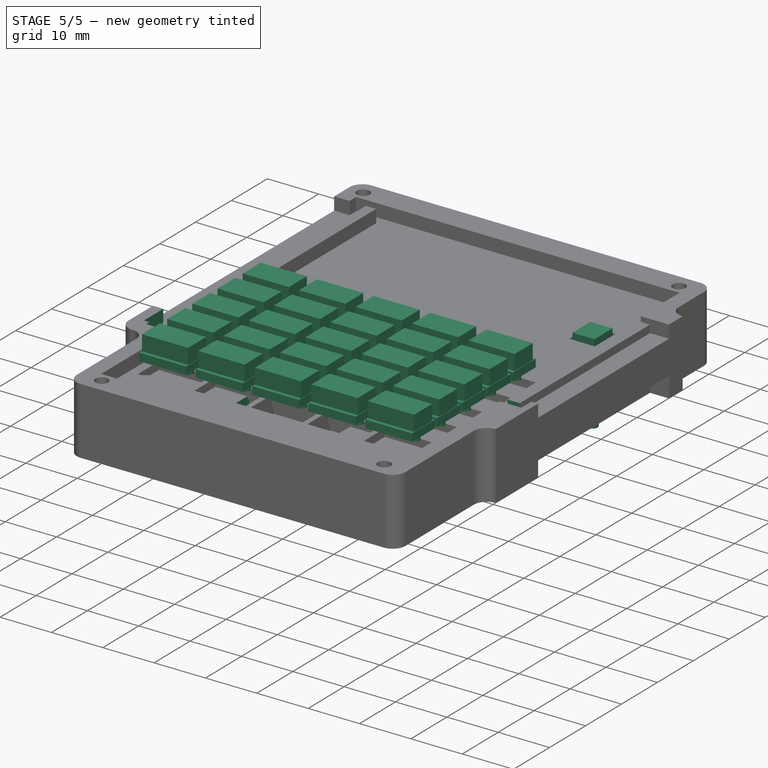
[diagram: stage 5 of 5 — iso view after this stage's code; geometry added in this stage tinted green]
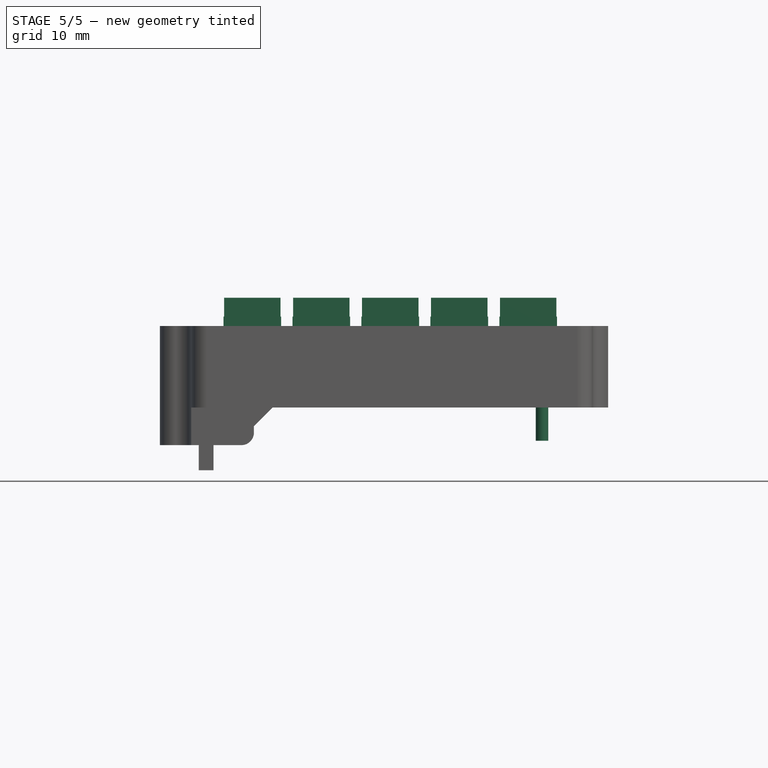
[diagram: stage 5 of 5 — front view after this stage's code; geometry added in this stage tinted green]
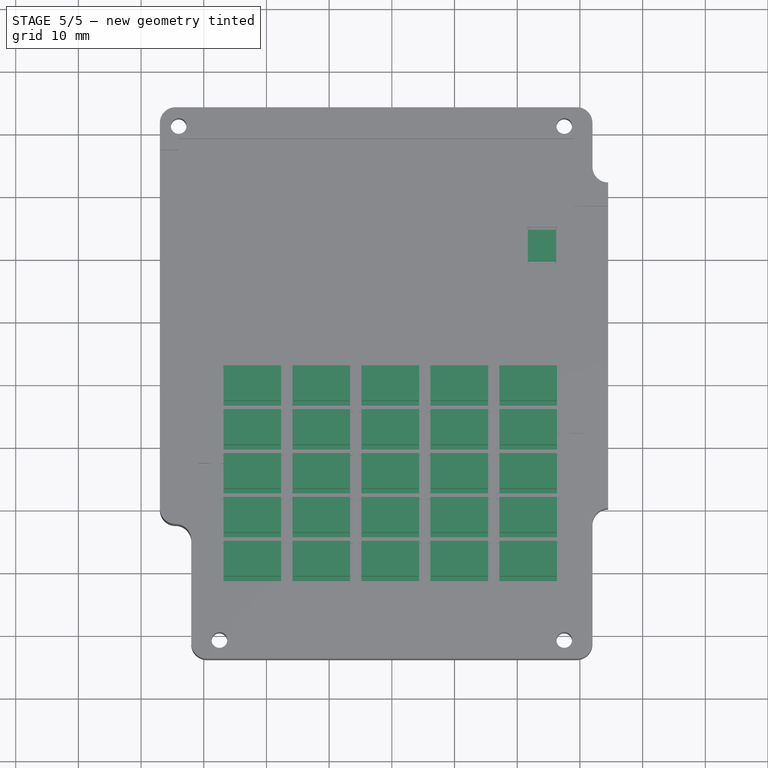
[diagram: stage 5 of 5 — top view after this stage's code; geometry added in this stage tinted green]
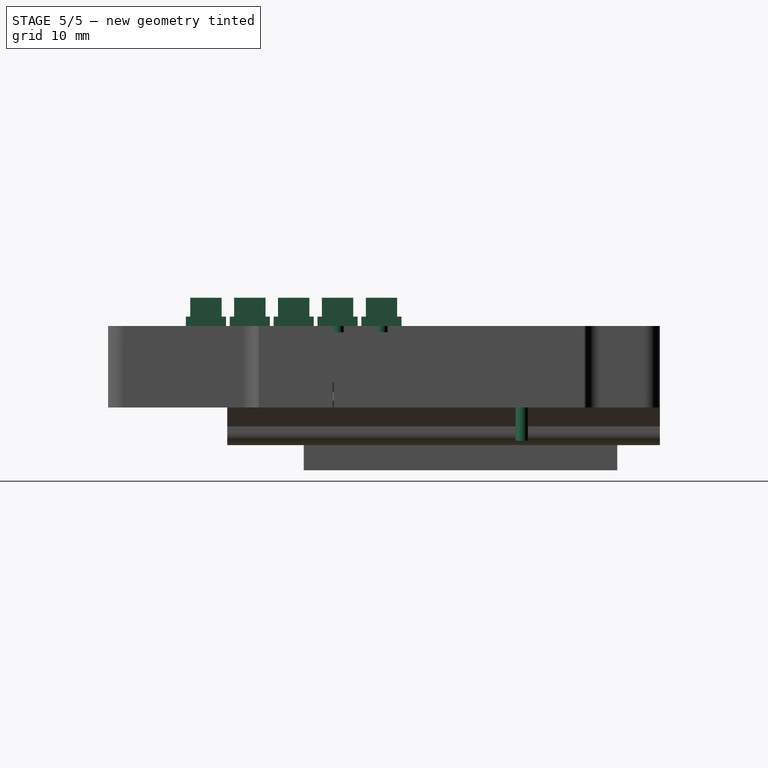
[diagram: stage 5 of 5 — right view after this stage's code; geometry added in this stage tinted green]
FEATURE [Sketcher::SketchObject] Sketch022  label="sk"
  ArcFitTolerance = 1e-06
  AttachmentSupport = -> [XY_Plane013]
  FullyConstrained = true
  MakeInternals = false
  MapMode = 5
  sketch-geometry (1):
    g0: Circle CenterX=-15 CenterY=-55 CenterZ=0 NormalX=0 NormalY=0 NormalZ=1 AngleXU=0 Radius=2.8
  constraints (3):
    c: Diameter(g0) = 5.6
    c: DistanceY(g0,g-1) = 55
    c: DistanceX(g0,g-1) = 15
FEATURE [PartDesign::Pad] Pad012
  Direction = (0,0,1)
  Length = 2.8
  Length2 = 10
  Midplane = true
  Profile = -> Sketch022
  ReferenceAxis = -> Sketch022 [N_Axis]
  Suppressed = false
  Type = 0
FEATURE [Sketcher::SketchObject] Sketch031
  ArcFitTolerance = 1e-06
  AttachmentSupport = -> [XY_Plane014]
  FullyConstrained = true
  MakeInternals = false
  MapMode = 5
  sketch-geometry (6):
    g0: LineSegment StartX=21.45 StartY=4.8814 StartZ=0 EndX=21.45 EndY=-0.9186 EndZ=0
    g1: LineSegment StartX=21.45 StartY=-0.9186 StartZ=0 EndX=26.45 EndY=-0.9186 EndZ=0
    g2: LineSegment StartX=26.45 StartY=-0.9186 StartZ=0 EndX=26.45 EndY=4.8814 EndZ=0
    g3: LineSegment StartX=26.45 StartY=4.8814 StartZ=0 EndX=21.45 EndY=4.8814 EndZ=0
    g4: GeomPoint X=23.95 Y=4.8814 Z=0
    g5: GeomPoint X=21.45 Y=1.9814 Z=0
  constraints (14):
    c: Coincident(g0,g1)
    c: Coincident(g1,g2)
    c: Coincident(g2,g3)
    c: Coincident(g3,g0)
    c: Vertical(g0)
    c: Vertical(g2)
    c: Horizontal(g1)
    c: Horizontal(g3)
    c: Symmetric(g3,g3,g4)
    c: Symmetric(g0,g0,g5)
    c: DistanceY(g-1,g5) = 1.9814
    c: DistanceX(g-1,g4) = 23.95
    c: DistanceX(g1,g1) = 5
    c: DistanceY(g2,g2) = 5.8
FEATURE [Sketcher::SketchObject] Sketch032
  ArcFitTolerance = 1e-06
  AttachmentSupport = -> [XY_Plane]
  FullyConstrained = true
  MakeInternals = false
  MapMode = 5
  sketch-geometry (4):
    g0: LineSegment StartX=-10 StartY=0 StartZ=0 EndX=-10 EndY=-50 EndZ=0
    g1: LineSegment StartX=-10 StartY=-50 StartZ=0 EndX=10 EndY=-50 EndZ=0
    g2: LineSegment StartX=10 StartY=-50 StartZ=0 EndX=10 EndY=0 EndZ=0
    g3: LineSegment StartX=10 StartY=0 StartZ=0 EndX=-10 EndY=0 EndZ=0
  constraints (11):
    c: Coincident(g0,g1)
    c: Coincident(g1,g2)
    c: Coincident(g2,g3)
    c: Coincident(g3,g0)
    c: Vertical(g0)
    c: Vertical(g2)
    c: Horizontal(g1)
    c: Symmetric(g2,g0,g-2)
    c: PointOnObject(g0,g-1)
    c: DistanceX(g3,g3) = 20
    c: DistanceY(g0,g0) = 50
FEATURE [PartDesign::Pocket] Pocket016  label="keyboard tape pocket"
  BaseFeature = -> Pocket010
  Direction = (0,0,-1)
  Length = 5
  Length2 = 5
  Midplane = true
  Profile = -> Sketch032
  ReferenceAxis = -> Sketch032 [N_Axis]
  Suppressed = false
  Type = 1
FEATURE [Sketcher::SketchObject] Sketch035
  ArcFitTolerance = 1e-06
  AttachmentSupport = -> [XY_Plane015]
  FullyConstrained = true
  MakeInternals = false
  MapMode = 5
  sketch-geometry (6):
    g0: LineSegment StartX=-26.75 StartY=-17.9 StartZ=0 EndX=-26.75 EndY=-22.9 EndZ=0
    g1: LineSegment StartX=-26.75 StartY=-22.9 StartZ=0 EndX=-17.75 EndY=-22.9 EndZ=0
    g2: LineSegment StartX=-17.75 StartY=-22.9 StartZ=0 EndX=-17.75 EndY=-17.9 EndZ=0
    g3: LineSegment StartX=-17.75 StartY=-17.9 StartZ=0 EndX=-26.75 EndY=-17.9 EndZ=0
    g4: GeomPoint X=-22.25 Y=-17.9 Z=0
    g5: GeomPoint X=-17.75 Y=-20.4 Z=0
  constraints (14):
    c: Coincident(g0,g1)
    c: Coincident(g1,g2)
    c: Coincident(g2,g3)
    c: Coincident(g3,g0)
    c: Vertical(g0)
    c: Vertical(g2)
    c: Horizontal(g1)
    c: Horizontal(g3)
    c: DistanceX(g3,g3) = 9
    c: DistanceY(g0,g0) = 5
    c: Symmetric(g3,g3,g4)
    c: DistanceX(g4,g-1) = 22.25
    c: Symmetric(g2,g2,g5)
    c: DistanceY(g5,g-1) = 20.4
FEATURE [PartDesign::Pad] Pad015  label="main002"
  Direction = (0,0,1)
  Length = 4.5
  Length2 = 10
  Profile = -> Sketch035
  ReferenceAxis = -> Sketch035 [N_Axis]
  Suppressed = false
  Type = 0
FEATURE [Sketcher::SketchObject] Sketch036
  ArcFitTolerance = 1e-06
  AttachmentSupport = -> [XY_Plane015]
  FullyConstrained = true
  MakeInternals = false
  MapMode = 5
  sketch-geometry (6):
    g0: LineSegment StartX=-26.85 StartY=-17.2 StartZ=0 EndX=-26.85 EndY=-23.6 EndZ=0
    g1: LineSegment StartX=-26.85 StartY=-23.6 StartZ=0 EndX=-17.65 EndY=-23.6 EndZ=0
    g2: LineSegment StartX=-17.65 StartY=-23.6 StartZ=0 EndX=-17.65 EndY=-17.2 EndZ=0
    g3: LineSegment StartX=-17.65 StartY=-17.2 StartZ=0 EndX=-26.85 EndY=-17.2 EndZ=0
    g4: GeomPoint X=-22.25 Y=-17.2 Z=0
    g5: GeomPoint X=-17.65 Y=-20.4 Z=0
  constraints (14):
    c: Coincident(g0,g1)
    c: Coincident(g1,g2)
    c: Coincident(g2,g3)
    c: Coincident(g3,g0)
    c: Vertical(g0)
    c: Vertical(g2)
    c: Horizontal(g1)
    c: Horizontal(g3)
    c: DistanceX(g3,g3) = 9.2
    c: DistanceY(g0,g0) = 6.4
    c: Symmetric(g3,g3,g4)
    c: DistanceX(g4,g-1) = 22.25
    c: Symmetric(g2,g2,g5)
    c: DistanceY(g5,g-1) = 20.4
FEATURE [PartDesign::Pad] Pad016  label="collar"
  BaseFeature = -> Pad015
  Direction = (0,0,1)
  Length = 1.5
  Length2 = 10
  Profile = -> Sketch036
  ReferenceAxis = -> Sketch036 [N_Axis]
  Suppressed = false
  Type = 0
FEATURE [Sketcher::SketchObject] Sketch037
  ArcFitTolerance = 1e-06
  AttachmentSupport = -> [XY_Plane015]
  ExternalGeometry = -> [Pad016]
  FullyConstrained = true
  MakeInternals = false
  MapMode = 5
  sketch-geometry (6):
    g0: Circle CenterX=-25 CenterY=-20.4 CenterZ=0 NormalX=0 NormalY=0 NormalZ=1 AngleXU=0 Radius=1
    g1: Circle CenterX=-19.5 CenterY=-20.4 CenterZ=0 NormalX=0 NormalY=0 NormalZ=1 AngleXU=0 Radius=1
    g2: GeomPoint X=-17.75 Y=-20.4 Z=0
    g3: GeomPoint X=-22.25 Y=-17.9 Z=0
    g4: LineSegment [constr] StartX=-25 StartY=-20.4 StartZ=0 EndX=-19.5 EndY=-20.4 EndZ=0
    g5: GeomPoint [constr] X=-22.25 Y=-20.4 Z=0
  constraints (11):
    c: Equal(g1,g0)
    c: Horizontal(g0,g1)
    c: DistanceX(g0,g1) = 5.5
    c: Symmetric(g-3,g-3,g2)
    c: Horizontal(g2,g1)
    c: Symmetric(g-4,g-4,g3)
    c: Coincident(g4,g0)
    c: Coincident(g4,g1)
    c: Symmetric(g4,g4,g5)
    c: Vertical(g5,g3)
    c: Diameter(g1) = 2
FEATURE [PartDesign::Pad] Pad017  label="pin"
  BaseFeature = -> Pad016
  Direction = (0,0,1)
  Length = 1.3
  Length2 = 10
  Profile = -> Sketch037
  ReferenceAxis = -> Sketch037 [N_Axis]
  Reversed = true
  Suppressed = false
  Type = 0
FEATURE [PartDesign::Body] Body004  label="double key"
  AllowCompound = false
  Group = -> [Sketch035,Pad015,Sketch036,Pad016,Sketch037,Pad017]
  Origin = -> Origin015
  Placement = pos=(0,0,6) rot=(0,0,1;0rad)
  Tip = -> Pad017
FEATURE [Part::FeaturePython] Array  label="keyboard array"  # Draft array (typed FeaturePython)
  AlwaysSyncPlacement = false
  Angle = 360
  ArrayType = 0
  Axis = (0,0,1)
  Base = -> Body004
  Center = (0,0,0)
  Count = 25
  ExpandArray = false
  Fuse = false
  IntervalAxis = (0,0,0)
  IntervalX = (11,0,0)
  IntervalY = (0,-7,0)
  IntervalZ = (0,0,0)
  NumberCircles = 3
  NumberPolar = 5
  NumberX = 5
  NumberY = 5
  NumberZ = 1
  PlacementList = 25 placements: [(0,0,6),(0,-7,6),(0,-14,6),(0,-21,6),(0,-28,6),(11,0,6),(11,-7,6),(11,-14,6),(11,-21,6),(11,-28,6),(22,0,6),(22,-7,6),(22,-14,6),(22,-21,6),(22,-28,6),(33,0,6),(33,-7,6),(33,-14,6),(33,-21,6),(33,-28,6),(44,0,6),(44,-7,6),(44,-14,6),(44,-21,6),(44,-28,6)]
  RadialDistance = 50
  ScaleList = (25) [(1,1,1),(1,1,1),(1,1,1),(1,1,1),(1,1,1),(1,1,1),(1,1,1),(1,1,1),(1,1,1),(1,1,1),(1,1,1),(1,1,1),(1,1,1),(1,1,1),(1,1,1),(1,1,1),(1,1,1),(1,1,1),+7 more]
  Symmetry = 1
  TangentialDistance = 25
FEATURE [Sketcher::SketchObject] Sketch038
  ArcFitTolerance = 1e-06
  AttachmentSupport = -> [XY_Plane016]
  FullyConstrained = true
  MakeInternals = false
  MapMode = 5
  sketch-geometry (6):
    g0: LineSegment StartX=21.8 StartY=4.4814 StartZ=0 EndX=21.8 EndY=-0.5186 EndZ=0
    g1: LineSegment StartX=21.8 StartY=-0.5186 StartZ=0 EndX=26.1 EndY=-0.5186 EndZ=0
    g2: LineSegment StartX=26.1 StartY=-0.5186 StartZ=0 EndX=26.1 EndY=4.4814 EndZ=0
    g3: LineSegment StartX=26.1 StartY=4.4814 StartZ=0 EndX=21.8 EndY=4.4814 EndZ=0
    g4: GeomPoint X=23.95 Y=4.4814 Z=0
    g5: GeomPoint X=21.8 Y=1.9814 Z=0
  constraints (14):
    c: Coincident(g0,g1)
    c: Coincident(g1,g2)
    c: Coincident(g2,g3)
    c: Coincident(g3,g0)
    c: Vertical(g0)
    c: Vertical(g2)
    c: Horizontal(g1)
    c: Horizontal(g3)
    c: Symmetric(g3,g3,g4)
    c: Symmetric(g0,g0,g5)
    c: DistanceY(g-1,g5) = 1.9814
    c: DistanceX(g-1,g4) = 23.95
    c: DistanceX(g1,g1) = 4.3
    c: DistanceY(g2,g2) = 5
FEATURE [PartDesign::Pad] Pad018  label="main003"
  Direction = (0,0,1)
  Length = 4.5
  Length2 = 10
  Profile = -> Sketch038
  ReferenceAxis = -> Sketch038 [N_Axis]
  Suppressed = false
  Type = 0
FEATURE [Sketcher::SketchObject] Sketch039
  ArcFitTolerance = 1e-06
  AttachmentSupport = -> [XY_Plane016]
  FullyConstrained = true
  MakeInternals = false
  MapMode = 5
  sketch-geometry (6):
    g0: LineSegment StartX=21.7 StartY=5.1814 StartZ=0 EndX=21.7 EndY=-1.2186 EndZ=0
    g1: LineSegment StartX=21.7 StartY=-1.2186 StartZ=0 EndX=26.2 EndY=-1.2186 EndZ=0
    g2: LineSegment StartX=26.2 StartY=-1.2186 StartZ=0 EndX=26.2 EndY=5.1814 EndZ=0
    g3: LineSegment StartX=26.2 StartY=5.1814 StartZ=0 EndX=21.7 EndY=5.1814 EndZ=0
    g4: GeomPoint X=23.95 Y=5.1814 Z=0
    g5: GeomPoint X=21.7 Y=1.9814 Z=0
  constraints (14):
    c: Coincident(g0,g1)
    c: Coincident(g1,g2)
    c: Coincident(g2,g3)
    c: Coincident(g3,g0)
    c: Vertical(g0)
    c: Vertical(g2)
    c: Horizontal(g1)
    c: Horizontal(g3)
    c: Symmetric(g3,g3,g4)
    c: Symmetric(g0,g0,g5)
    c: DistanceY(g-1,g5) = 1.9814
    c: DistanceX(g-1,g4) = 23.95
    c: DistanceX(g1,g1) = 4.5
    c: DistanceY(g2,g2) = 6.4
FEATURE [PartDesign::Pad] Pad019  label="collar001"
  BaseFeature = -> Pad018
  Direction = (0,0,1)
  Length = 1.5
  Length2 = 10
  Profile = -> Sketch039
  ReferenceAxis = -> Sketch039 [N_Axis]
  Suppressed = false
  Type = 0
FEATURE [Sketcher::SketchObject] Sketch040
  ArcFitTolerance = 1e-06
  AttachmentSupport = -> [XY_Plane016]
  FullyConstrained = true
  MakeInternals = false
  MapMode = 5
  sketch-geometry (1):
    g0: Circle CenterX=23.95 CenterY=1.98 CenterZ=0 NormalX=0 NormalY=0 NormalZ=1 AngleXU=0 Radius=1
  constraints (3):
    c: DistanceX(g-1,g0) = 23.95
    c: DistanceY(g-1,g0) = 1.98
    c: Diameter(g0) = 2
FEATURE [PartDesign::Pad] Pad020  label="pin001"
  BaseFeature = -> Pad019
  Direction = (0,0,1)
  Length = 12.3
  Length2 = 10
  Profile = -> Sketch040
  ReferenceAxis = -> Sketch040 [N_Axis]
  Reversed = true
  Suppressed = false
  Type = 0
FEATURE [PartDesign::Body] Body005  label="laser key"
  AllowCompound = false
  Group = -> [Sketch038,Pad018,Sketch039,Pad019,Sketch040,Pad020]
  Origin = -> Origin016
  Placement = pos=(0,0,6) rot=(0,0,1;0rad)
  Tip = -> Pad020
FEATURE [Sketcher::SketchObject] Sketch041  label="tape channel sk"
  ArcFitTolerance = 1e-06
  AttachmentSupport = -> [XY_Plane]
  FullyConstrained = true
  MakeInternals = false
  MapMode = 5
  sketch-geometry (8):
    g0: LineSegment StartX=-35 StartY=-32.8 StartZ=0 EndX=-35 EndY=-38.6 EndZ=0
    g1: LineSegment StartX=-35 StartY=-38.6 StartZ=0 EndX=-20 EndY=-38.6 EndZ=0
    g2: LineSegment StartX=-20 StartY=-38.6 StartZ=0 EndX=-20 EndY=-32.8 EndZ=0
    g3: LineSegment StartX=-20 StartY=-32.8 StartZ=0 EndX=-35 EndY=-32.8 EndZ=0
    g4: LineSegment StartX=18.2 StartY=-28 StartZ=0 EndX=18.2 EndY=-31 EndZ=0
    g5: LineSegment StartX=18.2 StartY=-31 StartZ=0 EndX=33.2 EndY=-31 EndZ=0
    g6: LineSegment StartX=33.2 StartY=-31 StartZ=0 EndX=33.2 EndY=-28 EndZ=0
    g7: LineSegment StartX=33.2 StartY=-28 StartZ=0 EndX=18.2 EndY=-28 EndZ=0
  constraints (24):
    c: Coincident(g0,g1)
    c: Coincident(g1,g2)
    c: Coincident(g2,g3)
    c: Coincident(g3,g0)
    c: Vertical(g0)
    c: Vertical(g2)
    c: Horizontal(g1)
    c: Horizontal(g3)
    c: DistanceX(g1,g1) = 15
    c: DistanceY(g0,g0) = 5.8
    c: DistanceY(g2,g-1) = 32.8
    c: Coincident(g4,g5)
    c: Coincident(g5,g6)
    c: Coincident(g6,g7)
    c: Coincident(g7,g4)
    c: Vertical(g4)
    c: Vertical(g6)
    c: Horizontal(g5)
    c: Horizontal(g7)
    c: DistanceX(g5,g5) = 15
    c: DistanceY(g4,g4) = 3
    c: DistanceY(g4,g-1) = 28
    c: DistanceX(g-1,g6) = 33.2
    c: DistanceX(g0,g-1) = 35
FEATURE [PartDesign::Pocket] Pocket020  label="tape channel"
  BaseFeature = -> Pocket016
  Direction = (0,0,-1)
  Length = 5
  Length2 = 5
  Midplane = true
  Profile = -> Sketch041
  ReferenceAxis = -> Sketch041 [N_Axis]
  Suppressed = false
  Type = 1
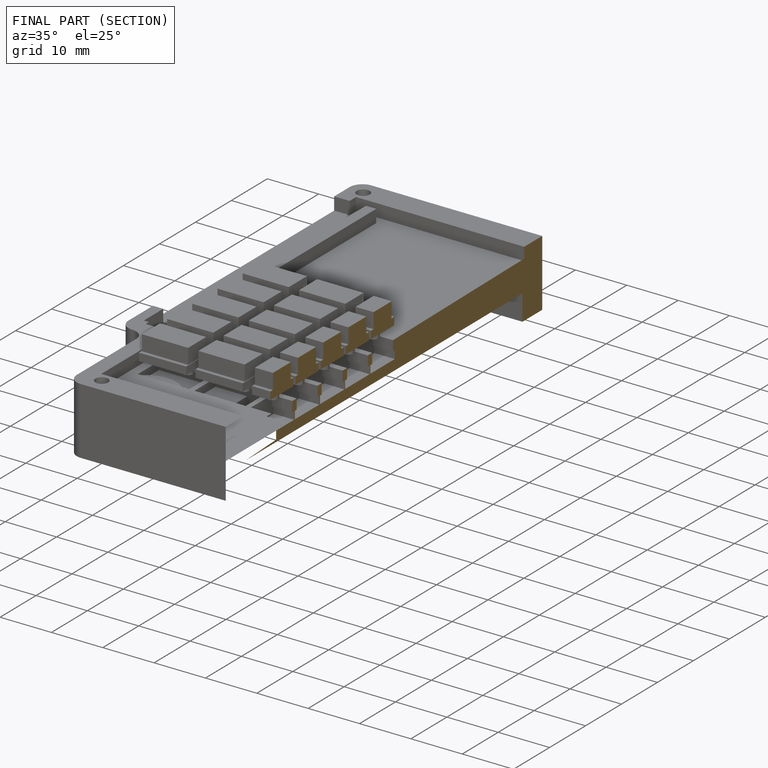
[diagram: finished part — half-section view (interior)]
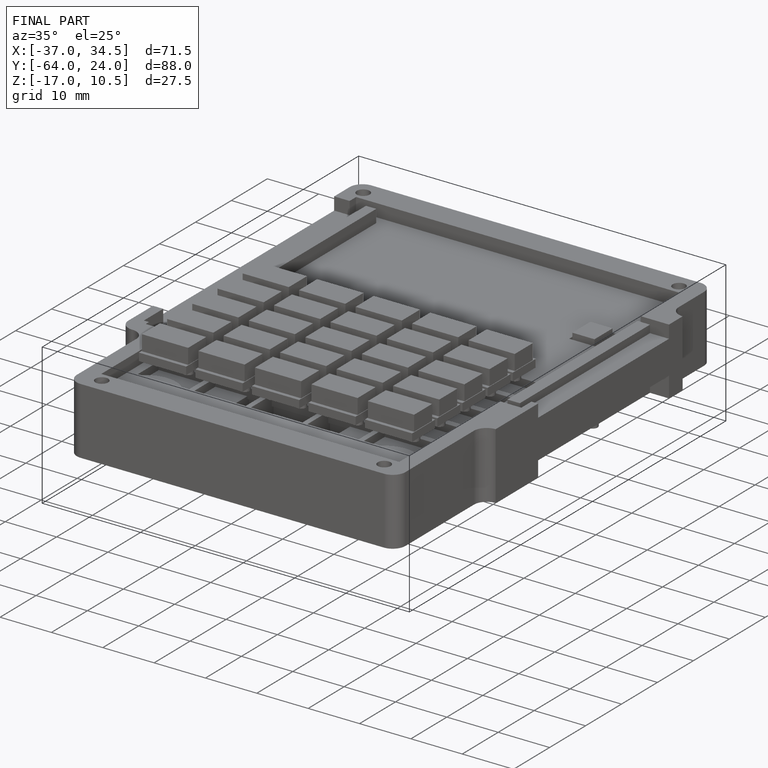
[diagram: finished part — iso view with bounding-box wireframe]
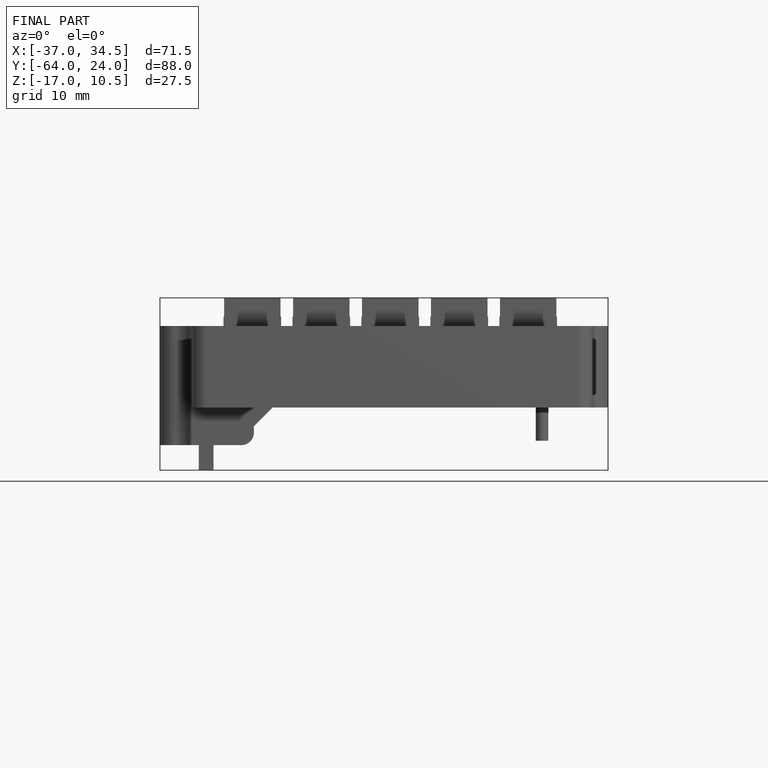
[diagram: finished part — front view with bounding-box wireframe]
